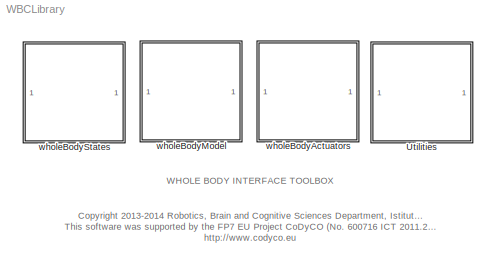
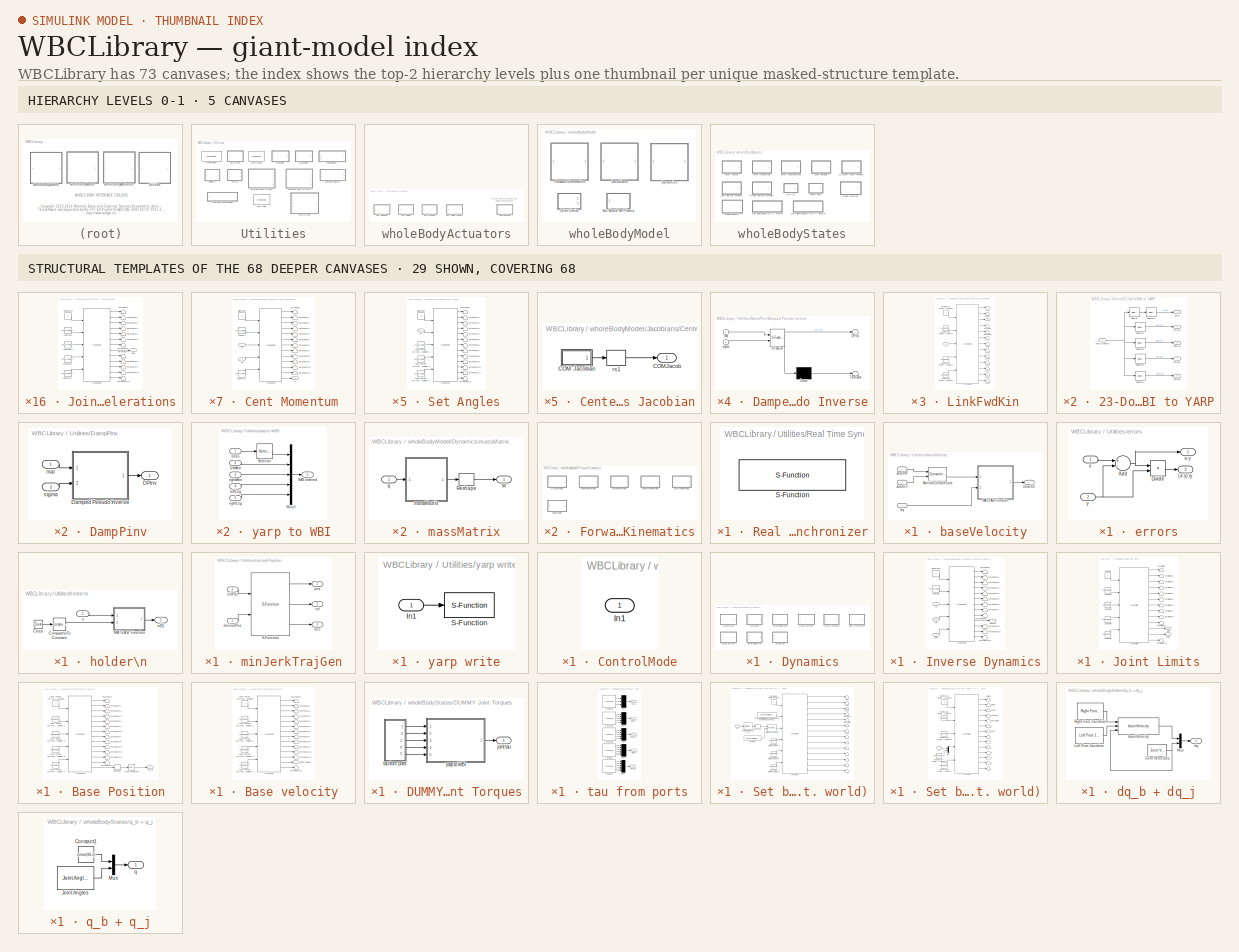
[diagram: thumbnail index - top-2 hierarchy levels (5 canvases) + 29 structural-template representatives of the remaining 68 canvases]
MODEL WBCLibrary
KIND library
BLOCK [SubSystem] Utilities
  Ports = []
  RequestExecContextInheritance = off
  SID = 192
  Variant = off
BLOCK [SubSystem] Utilities/23-DoFs WBI to YARP
  Ports = [1, 5]
  RequestExecContextInheritance = off
  SID = 1485
  Variant = off
BLOCK [Selector] Utilities/23-DoFs WBI to YARP/Selector
  IndexOptions = Index vector (dialog)
  Indices = [1:3]
  InputPortWidth = ROBOT_DOF
  OutputSizes = 1
  Ports = [1, 1]
  SID = 1487
BLOCK [Selector] Utilities/23-DoFs WBI to YARP/Selector1
  IndexOptions = Index vector (dialog)
  Indices = [4:7]
  InputPortWidth = ROBOT_DOF
  OutputSizes = 1
  Ports = [1, 1]
  SID = 1488
BLOCK [Selector] Utilities/23-DoFs WBI to YARP/Selector2
  IndexOptions = Index vector (dialog)
  Indices = [8:11]
  InputPortWidth = ROBOT_DOF
  OutputSizes = 1
  Ports = [1, 1]
  SID = 1489
BLOCK [Selector] Utilities/23-DoFs WBI to YARP/Selector3
  IndexOptions = Index vector (dialog)
  Indices = [12:17]
  InputPortWidth = ROBOT_DOF
  OutputSizes = 1
  Ports = [1, 1]
  SID = 1490
BLOCK [Selector] Utilities/23-DoFs WBI to YARP/Selector4
  IndexOptions = Index vector (dialog)
  Indices = [18:23]
  InputPortWidth = ROBOT_DOF
  OutputSizes = 1
  Ports = [1, 1]
  SID = 1491
BLOCK [Selector] Utilities/23-DoFs WBI to YARP/Selector6
  IndexOptions = Index vector (dialog)
  Indices = [3 2 1]
  InputPortWidth = 3
  OutputSizes = 1
  Ports = [1, 1]
  SID = 1492
BLOCK [Inport] Utilities/23-DoFs WBI to YARP/WBI Ordered
  IconDisplay = Port number
  SID = 1486
BLOCK [Outport] Utilities/23-DoFs WBI to YARP/leftArm
  IconDisplay = Port number
  Port = 2
  SID = 1494
BLOCK [Outport] Utilities/23-DoFs WBI to YARP/leftLeg
  IconDisplay = Port number
  Port = 4
  SID = 1496
BLOCK [Outport] Utilities/23-DoFs WBI to YARP/rightArm
  IconDisplay = Port number
  Port = 3
  SID = 1495
BLOCK [Outport] Utilities/23-DoFs WBI to YARP/rightLeg
  IconDisplay = Port number
  Port = 5
  SID = 1497
BLOCK [Outport] Utilities/23-DoFs WBI to YARP/torso
  IconDisplay = Port number
  SID = 1493
BLOCK [SubSystem] Utilities/25-DoFs WBI to yarp
  Ports = [1, 5]
  RequestExecContextInheritance = off
  SID = 730
  Variant = off
BLOCK [Selector] Utilities/25-DoFs WBI to yarp/Selector
  IndexOptions = Index vector (dialog)
  Indices = [1:3]
  InputPortWidth = ROBOT_DOF
  OutputSizes = 1
  Ports = [1, 1]
  SID = 732
BLOCK [Selector] Utilities/25-DoFs WBI to yarp/Selector1
  IndexOptions = Index vector (dialog)
  Indices = [4:8]
  InputPortWidth = ROBOT_DOF
  OutputSizes = 1
  Ports = [1, 1]
  SID = 733
BLOCK [Selector] Utilities/25-DoFs WBI to yarp/Selector2
  IndexOptions = Index vector (dialog)
  Indices = [9:13]
  InputPortWidth = ROBOT_DOF
  OutputSizes = 1
  Ports = [1, 1]
  SID = 734
BLOCK [Selector] Utilities/25-DoFs WBI to yarp/Selector3
  IndexOptions = Index vector (dialog)
  Indices = [14:19]
  InputPortWidth = ROBOT_DOF
  OutputSizes = 1
  Ports = [1, 1]
  SID = 735
BLOCK [Selector] Utilities/25-DoFs WBI to yarp/Selector4
  IndexOptions = Index vector (dialog)
  Indices = [20:25]
  InputPortWidth = ROBOT_DOF
  OutputSizes = 1
  Ports = [1, 1]
  SID = 736
BLOCK [Selector] Utilities/25-DoFs WBI to yarp/Selector6
  IndexOptions = Index vector (dialog)
  Indices = [3 2 1]
  InputPortWidth = 3
  OutputSizes = 1
  Ports = [1, 1]
  SID = 1266
BLOCK [Inport] Utilities/25-DoFs WBI to yarp/WBI ordered
  IconDisplay = Port number
  SID = 731
BLOCK [Outport] Utilities/25-DoFs WBI to yarp/leftArm
  IconDisplay = Port number
  Port = 2
  SID = 739
BLOCK [Outport] Utilities/25-DoFs WBI to yarp/leftLeg
  IconDisplay = Port number
  Port = 4
  SID = 741
BLOCK [Outport] Utilities/25-DoFs WBI to yarp/rightArm
  IconDisplay = Port number
  Port = 3
  SID = 740
BLOCK [Outport] Utilities/25-DoFs WBI to yarp/rightLeg
  IconDisplay = Port number
  Port = 5
  SID = 742
BLOCK [Outport] Utilities/25-DoFs WBI to yarp/torso
  IconDisplay = Port number
  SID = 738
BLOCK [SubSystem] Utilities/DampPinv
  Ports = [2, 1]
  RequestExecContextInheritance = off
  SID = 104
  Variant = off
BLOCK [Outport] Utilities/DampPinv/DPinv
  IconDisplay = Port number
  SID = 108
BLOCK [SubSystem] Utilities/DampPinv/Damped Pseudo Inverse
  ErrorFcn = Stateflow.Translate.translate
  PermitHierarchicalResolution = ExplicitOnly
  Ports = [2, 1]
  RequestExecContextInheritance = off
  SFBlockType = MATLAB Function
  SID = 107
  TreatAsAtomicUnit = on
  Variant = off
BLOCK [Demux] Utilities/DampPinv/Damped Pseudo Inverse/ Demux 
  Outputs = 1
  Ports = [1, 1]
  SID = 107::1582
BLOCK [S-Function] Utilities/DampPinv/Damped Pseudo Inverse/ SFunction 
  EnableBusSupport = off
  FunctionName = sf_sfun
  PortCounts = [2 2]
  Ports = [2, 2]
  SFunctionDeploymentMode = off
  SID = 107::1581
  Tag = Stateflow S-Function WBCLibrary 6
BLOCK [Terminator] Utilities/DampPinv/Damped Pseudo Inverse/ Terminator 
  SID = 107::1583
BLOCK [Outport] Utilities/DampPinv/Damped Pseudo Inverse/DPinv
  IconDisplay = Port number
  SID = 107::5
BLOCK [Inport] Utilities/DampPinv/Damped Pseudo Inverse/mat
  IconDisplay = Port number
  SID = 107::1
BLOCK [Inport] Utilities/DampPinv/Damped Pseudo Inverse/sigma
  IconDisplay = Port number
  Port = 2
  SID = 107::25
BLOCK [Inport] Utilities/DampPinv/mat
  IconDisplay = Port number
  SID = 105
BLOCK [Inport] Utilities/DampPinv/sigma
  IconDisplay = Port number
  Port = 2
  SID = 106
BLOCK [SubSystem] Utilities/Real Time Synchronizer
  Ports = []
  Priority = -10
  RequestExecContextInheritance = off
  SID = 1468
  Variant = off
BLOCK [S-Function] Utilities/Real Time Synchronizer/S-Function
  EnableBusSupport = off
  FunctionName = realTimeSynchronizer
  Parameters = threadPeriod
  Ports = []
  SFunctionDeploymentMode = off
  SID = 1469
BLOCK [SubSystem] Utilities/TruncPinv
  Ports = [2, 1]
  RequestExecContextInheritance = off
  SID = 109
  Variant = off
BLOCK [Inport] Utilities/TruncPinv/S
  IconDisplay = Port number
  SID = 110
BLOCK [Outport] Utilities/TruncPinv/Tpinv
  IconDisplay = Port number
  SID = 113
BLOCK [SubSystem] Utilities/TruncPinv/Truncated PseudoInverse
  ErrorFcn = Stateflow.Translate.translate
  PermitHierarchicalResolution = ExplicitOnly
  Ports = [2, 1]
  RequestExecContextInheritance = off
  SFBlockType = MATLAB Function
  SID = 112
  TreatAsAtomicUnit = on
  Variant = off
BLOCK [Demux] Utilities/TruncPinv/Truncated PseudoInverse/ Demux 
  Outputs = 1
  Ports = [1, 1]
  SID = 112::1582
BLOCK [S-Function] Utilities/TruncPinv/Truncated PseudoInverse/ SFunction 
  EnableBusSupport = off
  FunctionName = sf_sfun
  PortCounts = [2 2]
  Ports = [2, 2]
  SFunctionDeploymentMode = off
  SID = 112::1581
  Tag = Stateflow S-Function WBCLibrary 7
BLOCK [Terminator] Utilities/TruncPinv/Truncated PseudoInverse/ Terminator 
  SID = 112::1583
BLOCK [Outport] Utilities/TruncPinv/Truncated PseudoInverse/TPinv
  IconDisplay = Port number
  SID = 112::5
BLOCK [Inport] Utilities/TruncPinv/Truncated PseudoInverse/mat
  IconDisplay = Port number
  SID = 112::1
BLOCK [Inport] Utilities/TruncPinv/Truncated PseudoInverse/tol
  IconDisplay = Port number
  Port = 2
  SID = 112::25
BLOCK [Inport] Utilities/TruncPinv/tol
  IconDisplay = Port number
  Port = 2
  SID = 111
BLOCK [S-Function] Utilities/YARP Read
  EnableBusSupport = off
  FunctionName = yarpRead
  Parameters = portName,signalSize,blocking,timestamp,autoconnect,errorOnConnection
  Ports = [0, 2]
  SFunctionDeploymentMode = off
  SID = 1500
BLOCK [SubSystem] Utilities/baseVelocity
  Ports = [3, 1]
  RequestExecContextInheritance = off
  SID = 431
  Variant = off
BLOCK [Inport] Utilities/baseVelocity/JacobLF
  IconDisplay = Port number
  Port = 2
  SID = 433
BLOCK [Inport] Utilities/baseVelocity/JacobRF
  IconDisplay = Port number
  SID = 432
BLOCK [SubSystem] Utilities/baseVelocity/MATLAB Function
  ErrorFcn = Stateflow.Translate.translate
  PermitHierarchicalResolution = ExplicitOnly
  Ports = [2, 1]
  RequestExecContextInheritance = off
  SFBlockType = MATLAB Function
  SID = 1030
  TreatAsAtomicUnit = on
  Variant = off
BLOCK [Demux] Utilities/baseVelocity/MATLAB Function/ Demux 
  Outputs = 1
  Ports = [1, 1]
  SID = 1030::1582
BLOCK [S-Function] Utilities/baseVelocity/MATLAB Function/ SFunction 
  EnableBusSupport = off
  FunctionName = sf_sfun
  PortCounts = [2 2]
  Ports = [2, 2]
  SFunctionDeploymentMode = off
  SID = 1030::1581
  Tag = Stateflow S-Function WBCLibrary 2
BLOCK [Terminator] Utilities/baseVelocity/MATLAB Function/ Terminator 
  SID = 1030::1583
BLOCK [Inport] Utilities/baseVelocity/MATLAB Function/JcIn
  IconDisplay = Port number
  SID = 1030::1
BLOCK [Inport] Utilities/baseVelocity/MATLAB Function/qD
  IconDisplay = Port number
  Port = 2
  SID = 1030::23
BLOCK [Outport] Utilities/baseVelocity/MATLAB Function/y
  IconDisplay = Port number
  SID = 1030::5
BLOCK [Concatenate] Utilities/baseVelocity/Matrix\nConcatenate
  Mode = Multidimensional array
  Ports = [2, 1]
  SID = 1264
BLOCK [Outport] Utilities/baseVelocity/baseVel
  IconDisplay = Port number
  SID = 440
BLOCK [Inport] Utilities/baseVelocity/dq
  IconDisplay = Port number
  Port = 3
  SID = 434
BLOCK [SubSystem] Utilities/errors
  Ports = [2, 2]
  RequestExecContextInheritance = off
  SID = 714
  Variant = off
BLOCK [Outport] Utilities/errors/(x-y).//y
  IconDisplay = Port number
  Port = 2
  SID = 720
BLOCK [Sum] Utilities/errors/Add
  InputSameDT = off
  Inputs = +-
  OutDataTypeStr = Inherit: Inherit via internal rule
  Ports = [2, 1]
  SID = 717
  SaturateOnIntegerOverflow = off
BLOCK [Product] Utilities/errors/Divide
  InputSameDT = off
  Inputs = */
  OutDataTypeStr = Inherit: Inherit via internal rule
  Ports = [2, 1]
  RndMeth = Floor
  SID = 718
  SaturateOnIntegerOverflow = off
BLOCK [Inport] Utilities/errors/x
  IconDisplay = Port number
  SID = 715
BLOCK [Outport] Utilities/errors/x-y
  IconDisplay = Port number
  SID = 719
BLOCK [Inport] Utilities/errors/y
  IconDisplay = Port number
  Port = 2
  SID = 716
BLOCK [SubSystem] Utilities/holder\n
  Ports = [1, 1]
  RequestExecContextInheritance = off
  SID = 1296
  Variant = off
BLOCK [Clock] Utilities/holder\n/Clock
  SID = 1298
BLOCK [Reference] Utilities/holder\n/Compare\nTo Constant  REF=simulink/Logic and Bit\nOperations/Compare\nTo Constant
  OutDataTypeStr = boolean
  Ports = [1, 1]
  SID = 1299
  SourceBlock = simulink/Logic and Bit\nOperations/Compare\nTo Constant
  SourceType = Compare To Constant
  ZeroCross = on
  const = 0
  relop = ==
BLOCK [SubSystem] Utilities/holder\n/MATLAB Function
  ErrorFcn = Stateflow.Translate.translate
  PermitHierarchicalResolution = ExplicitOnly
  Ports = [2, 1]
  RequestExecContextInheritance = off
  SFBlockType = MATLAB Function
  SID = 1300
  TreatAsAtomicUnit = on
  Variant = off
BLOCK [Demux] Utilities/holder\n/MATLAB Function/ Demux 
  Outputs = 1
  Ports = [1, 1]
  SID = 1300::1582
BLOCK [S-Function] Utilities/holder\n/MATLAB Function/ SFunction 
  EnableBusSupport = off
  FunctionName = sf_sfun
  PortCounts = [2 2]
  Ports = [2, 2]
  SFunctionDeploymentMode = off
  SID = 1300::1581
  Tag = Stateflow S-Function WBCLibrary 1
BLOCK [Terminator] Utilities/holder\n/MATLAB Function/ Terminator 
  SID = 1300::1583
BLOCK [Inport] Utilities/holder\n/MATLAB Function/s
  IconDisplay = Port number
  SID = 1300::24
BLOCK [Outport] Utilities/holder\n/MATLAB Function/s0
  IconDisplay = Port number
  SID = 1300::25
BLOCK [Inport] Utilities/holder\n/MATLAB Function/unused
  IconDisplay = Port number
  Port = 2
  SID = 1300::26
BLOCK [Inport] Utilities/holder\n/s
  IconDisplay = Port number
  SID = 1297
BLOCK [Outport] Utilities/holder\n/s(0)
  IconDisplay = Port number
  SID = 1301
BLOCK [SubSystem] Utilities/minJerkTrajGen
  Ports = [2, 3]
  RequestExecContextInheritance = off
  SID = 25
  Variant = off
BLOCK [S-Function] Utilities/minJerkTrajGen/S-Function
  EnableBusSupport = off
  FunctionName = minJerkGenerator
  Parameters = dim, rate, tt
  Ports = [2, 3]
  SFunctionDeploymentMode = off
  SID = 28
BLOCK [Outport] Utilities/minJerkTrajGen/acc
  IconDisplay = Port number
  Port = 3
  SID = 31
BLOCK [Inport] Utilities/minJerkTrajGen/desiredPos
  IconDisplay = Port number
  SID = 26
BLOCK [Inport] Utilities/minJerkTrajGen/initPos
  IconDisplay = Port number
  Port = 2
  SID = 27
BLOCK [Outport] Utilities/minJerkTrajGen/pos
  IconDisplay = Port number
  SID = 29
BLOCK [Outport] Utilities/minJerkTrajGen/vel
  IconDisplay = Port number
  Port = 2
  SID = 30
BLOCK [S-Function] Utilities/synchronize
  EnableBusSupport = off
  FunctionName = ySynchronizer
  Parameters = rate
  Ports = [0, 1]
  SFunctionDeploymentMode = off
  SID = 1056
BLOCK [S-Function] Utilities/yarp read
  EnableBusSupport = off
  FunctionName = yRead
  Parameters = from,to,num,blocking,timestamp,autoconnect
  Ports = [0, 3]
  SFunctionDeploymentMode = off
  SID = 249
BLOCK [SubSystem] Utilities/yarp to WBI
  Ports = [5, 1]
  RequestExecContextInheritance = off
  SID = 721
  Variant = off
BLOCK [Mux] Utilities/yarp to WBI/Mux3
  DisplayOption = bar
  Inputs = 5
  Ports = [5, 1]
  SID = 727
BLOCK [Selector] Utilities/yarp to WBI/Selector
  IndexOptions = Index vector (dialog)
  Indices = [3 2 1]
  InputPortWidth = 3
  OutputSizes = 1
  Ports = [1, 1]
  SID = 1265
BLOCK [Outport] Utilities/yarp to WBI/WBI ordered
  IconDisplay = Port number
  SID = 729
BLOCK [Inport] Utilities/yarp to WBI/leftArm
  IconDisplay = Port number
  Port = 2
  SID = 723
BLOCK [Inport] Utilities/yarp to WBI/leftLeg
  IconDisplay = Port number
  Port = 4
  SID = 725
BLOCK [Inport] Utilities/yarp to WBI/rightArm
  IconDisplay = Port number
  Port = 3
  SID = 724
BLOCK [Inport] Utilities/yarp to WBI/rightLeg
  IconDisplay = Port number
  Port = 5
  SID = 726
BLOCK [Inport] Utilities/yarp to WBI/torso
  IconDisplay = Port number
  SID = 722
BLOCK [SubSystem] Utilities/yarp write
  Ports = [1]
  RequestExecContextInheritance = off
  SID = 173
  Variant = off
BLOCK [Inport] Utilities/yarp write/In1
  IconDisplay = Port number
  SID = 174
BLOCK [S-Function] Utilities/yarp write/S-Function
  EnableBusSupport = off
  FunctionName = yWrite
  Parameters = port_name
  Ports = [1]
  SFunctionDeploymentMode = off
  SID = 175
BLOCK [SubSystem] wholeBodyActuators
  Ports = []
  RequestExecContextInheritance = off
  SID = 224
  Variant = off
BLOCK [SubSystem] wholeBodyActuators/ControlMode
  Ports = [1]
  RequestExecContextInheritance = off
  SID = 239
  Variant = off
BLOCK [Inport] wholeBodyActuators/ControlMode/In1
  IconDisplay = Port number
  SID = 239:240
BLOCK [SubSystem] wholeBodyActuators/Set Angles
  Ports = [1]
  RequestExecContextInheritance = off
  SID = 394
  Variant = off
BLOCK [SubSystem] wholeBodyActuators/Set Angles (Direct)
  Ports = [1]
  RequestExecContextInheritance = off
  SID = 1446
  Variant = off
BLOCK [Constant] wholeBodyActuators/Set Angles (Direct)/Input Param. for\nforwardKinematics\nand \ncomputeJacobians 
  OutDataTypeStr = int8
  SID = 1448
  SampleTime = Ts
  Value = 0
BLOCK [Constant] wholeBodyActuators/Set Angles (Direct)/Input Param. for\nforwardKinematics\nand \ncomputeJacobians 1
  OutDataTypeStr = double
  SID = 1449
  SampleTime = Ts
  Value = zeros(ROBOT_DOF+16,1)
BLOCK [Constant] wholeBodyActuators/Set Angles (Direct)/Input Param. for\nforwardKinematics\nand \ncomputeJacobians 2
  OutDataTypeStr = double
  SID = 1450
  SampleTime = Ts
  Value = zeros(ROBOT_DOF+6,1)
BLOCK [Constant] wholeBodyActuators/Set Angles (Direct)/Input Param. for\nforwardKinematics\nand \ncomputeJacobians 3
  OutDataTypeStr = double
  SID = 1451
  SampleTime = Ts
  Value = zeros(ROBOT_DOF+6,1)
BLOCK [S-Function] wholeBodyActuators/Set Angles (Direct)/S-Function
  EnableBusSupport = off
  FunctionName = robotState
  Parameters = val,robotname,localname,linkname
  Ports = [5, 13]
  SFunctionDeploymentMode = off
  SID = 1452
BLOCK [Terminator] wholeBodyActuators/Set Angles (Direct)/Terminator1
  SID = 1453
BLOCK [Terminator] wholeBodyActuators/Set Angles (Direct)/Terminator10
  SID = 1454
BLOCK [Terminator] wholeBodyActuators/Set Angles (Direct)/Terminator11
  SID = 1455
BLOCK [Terminator] wholeBodyActuators/Set Angles (Direct)/Terminator12
  SID = 1456
BLOCK [Terminator] wholeBodyActuators/Set Angles (Direct)/Terminator13
  SID = 1457
BLOCK [Terminator] wholeBodyActuators/Set Angles (Direct)/Terminator2
  SID = 1458
BLOCK [Terminator] wholeBodyActuators/Set Angles (Direct)/Terminator3
  SID = 1459
BLOCK [Terminator] wholeBodyActuators/Set Angles (Direct)/Terminator4
  SID = 1460
BLOCK [Terminator] wholeBodyActuators/Set Angles (Direct)/Terminator5
  SID = 1461
BLOCK [Terminator] wholeBodyActuators/Set Angles (Direct)/Terminator6
  SID = 1462
BLOCK [Terminator] wholeBodyActuators/Set Angles (Direct)/Terminator7
  SID = 1463
BLOCK [Terminator] wholeBodyActuators/Set Angles (Direct)/Terminator8
  SID = 1464
BLOCK [Terminator] wholeBodyActuators/Set Angles (Direct)/Terminator9
  SID = 1465
BLOCK [Inport] wholeBodyActuators/Set Angles (Direct)/q_j
  IconDisplay = Port number
  SID = 1447
BLOCK [Constant] wholeBodyActuators/Set Angles/Input Param. for\nforwardKinematics\nand \ncomputeJacobians 1
  OutDataTypeStr = double
  SID = 657
  SampleTime = Ts
  Value = zeros(ROBOT_DOF+16,1)
BLOCK [Constant] wholeBodyActuators/Set Angles/Input Param. for\nforwardKinematics\nand \ncomputeJacobians 2
  OutDataTypeStr = double
  SID = 658
  SampleTime = Ts
  Value = zeros(ROBOT_DOF+6,1)
BLOCK [Constant] wholeBodyActuators/Set Angles/Input Param. for\nforwardKinematics\nand \ncomputeJacobians 3
  OutDataTypeStr = double
  SID = 659
  SampleTime = Ts
  Value = zeros(ROBOT_DOF+6,1)
BLOCK [Constant] wholeBodyActuators/Set Angles/RightFoot
  OutDataTypeStr = int8
  SID = 396
  SampleTime = Ts
  Value = 0
BLOCK [S-Function] wholeBodyActuators/Set Angles/S-Function
  EnableBusSupport = off
  FunctionName = robotState
  Parameters = val,robotName,localName,'na'
  Ports = [5, 13]
  SFunctionDeploymentMode = off
  SID = 397
BLOCK [Terminator] wholeBodyActuators/Set Angles/Terminator
  SID = 398
BLOCK [Terminator] wholeBodyActuators/Set Angles/Terminator1
  SID = 399
BLOCK [Terminator] wholeBodyActuators/Set Angles/Terminator10
  SID = 1367
BLOCK [Terminator] wholeBodyActuators/Set Angles/Terminator11
  SID = 1368
BLOCK [Terminator] wholeBodyActuators/Set Angles/Terminator12
  SID = 1369
BLOCK [Terminator] wholeBodyActuators/Set Angles/Terminator2
  SID = 400
BLOCK [Terminator] wholeBodyActuators/Set Angles/Terminator3
  SID = 401
BLOCK [Terminator] wholeBodyActuators/Set Angles/Terminator4
  SID = 402
BLOCK [Terminator] wholeBodyActuators/Set Angles/Terminator5
  SID = 403
BLOCK [Terminator] wholeBodyActuators/Set Angles/Terminator6
  SID = 404
BLOCK [Terminator] wholeBodyActuators/Set Angles/Terminator7
  SID = 654
BLOCK [Terminator] wholeBodyActuators/Set Angles/Terminator8
  SID = 655
BLOCK [Terminator] wholeBodyActuators/Set Angles/Terminator9
  SID = 656
BLOCK [Inport] wholeBodyActuators/Set Angles/q_j
  IconDisplay = Port number
  SID = 395
BLOCK [SubSystem] wholeBodyActuators/Set Torques
  Ports = [1]
  RequestExecContextInheritance = off
  SID = 405
  Variant = off
BLOCK [Constant] wholeBodyActuators/Set Torques/Input Param. for\nforwardKinematics\nand \ncomputeJacobians 1
  OutDataTypeStr = double
  SID = 666
  SampleTime = Ts
  Value = zeros(ROBOT_DOF+16,1)
BLOCK [Constant] wholeBodyActuators/Set Torques/Input Param. for\nforwardKinematics\nand \ncomputeJacobians 2
  OutDataTypeStr = double
  SID = 667
  SampleTime = Ts
  Value = zeros(ROBOT_DOF+6,1)
BLOCK [Constant] wholeBodyActuators/Set Torques/Input Param. for\nforwardKinematics\nand \ncomputeJacobians 3
  OutDataTypeStr = double
  SID = 668
  SampleTime = Ts
  Value = zeros(ROBOT_DOF+6,1)
BLOCK [Constant] wholeBodyActuators/Set Torques/RightFoot
  OutDataTypeStr = int8
  SID = 407
  SampleTime = Ts
  Value = 0
BLOCK [S-Function] wholeBodyActuators/Set Torques/S-Function
  EnableBusSupport = off
  FunctionName = robotState
  Parameters = val,robotName,localName,'na'
  Ports = [5, 13]
  SFunctionDeploymentMode = off
  SID = 408
BLOCK [Terminator] wholeBodyActuators/Set Torques/Terminator
  SID = 409
BLOCK [Terminator] wholeBodyActuators/Set Torques/Terminator1
  SID = 410
BLOCK [Terminator] wholeBodyActuators/Set Torques/Terminator10
  SID = 1308
BLOCK [Terminator] wholeBodyActuators/Set Torques/Terminator11
  SID = 1309
BLOCK [Terminator] wholeBodyActuators/Set Torques/Terminator12
  SID = 1310
BLOCK [Terminator] wholeBodyActuators/Set Torques/Terminator2
  SID = 411
BLOCK [Terminator] wholeBodyActuators/Set Torques/Terminator3
  SID = 412
BLOCK [Terminator] wholeBodyActuators/Set Torques/Terminator4
  SID = 413
BLOCK [Terminator] wholeBodyActuators/Set Torques/Terminator5
  SID = 414
BLOCK [Terminator] wholeBodyActuators/Set Torques/Terminator6
  SID = 415
BLOCK [Terminator] wholeBodyActuators/Set Torques/Terminator7
  SID = 663
BLOCK [Terminator] wholeBodyActuators/Set Torques/Terminator8
  SID = 664
BLOCK [Terminator] wholeBodyActuators/Set Torques/Terminator9
  SID = 665
BLOCK [Inport] wholeBodyActuators/Set Torques/tau_j
  IconDisplay = Port number
  SID = 406
BLOCK [SubSystem] wholeBodyActuators/Set Velocities
  Ports = [1]
  RequestExecContextInheritance = off
  SID = 227
  Variant = off
BLOCK [Constant] wholeBodyActuators/Set Velocities/Input Param. for\nforwardKinematics\nand \ncomputeJacobians 
  OutDataTypeStr = int8
  SID = 229
  SampleTime = Ts
  Value = 0
BLOCK [Constant] wholeBodyActuators/Set Velocities/Input Param. for\nforwardKinematics\nand \ncomputeJacobians 1
  OutDataTypeStr = double
  SID = 649
  SampleTime = Ts
  Value = zeros(ROBOT_DOF+16,1)
BLOCK [Constant] wholeBodyActuators/Set Velocities/Input Param. for\nforwardKinematics\nand \ncomputeJacobians 2
  OutDataTypeStr = double
  SID = 652
  SampleTime = Ts
  Value = zeros(ROBOT_DOF+6,1)
BLOCK [Constant] wholeBodyActuators/Set Velocities/Input Param. for\nforwardKinematics\nand \ncomputeJacobians 3
  OutDataTypeStr = double
  SID = 653
  SampleTime = Ts
  Value = zeros(ROBOT_DOF+6,1)
BLOCK [S-Function] wholeBodyActuators/Set Velocities/S-Function
  EnableBusSupport = off
  FunctionName = robotState
  Parameters = val,robotname,localname,linkname
  Ports = [5, 13]
  SFunctionDeploymentMode = off
  SID = 230
BLOCK [Terminator] wholeBodyActuators/Set Velocities/Terminator1
  SID = 231
BLOCK [Terminator] wholeBodyActuators/Set Velocities/Terminator10
  SID = 648
BLOCK [Terminator] wholeBodyActuators/Set Velocities/Terminator11
  SID = 1364
BLOCK [Terminator] wholeBodyActuators/Set Velocities/Terminator12
  SID = 1365
BLOCK [Terminator] wholeBodyActuators/Set Velocities/Terminator13
  SID = 1366
BLOCK [Terminator] wholeBodyActuators/Set Velocities/Terminator2
  SID = 232
BLOCK [Terminator] wholeBodyActuators/Set Velocities/Terminator3
  SID = 233
BLOCK [Terminator] wholeBodyActuators/Set Velocities/Terminator4
  SID = 234
BLOCK [Terminator] wholeBodyActuators/Set Velocities/Terminator5
  SID = 339
BLOCK [Terminator] wholeBodyActuators/Set Velocities/Terminator6
  SID = 340
BLOCK [Terminator] wholeBodyActuators/Set Velocities/Terminator7
  SID = 341
BLOCK [Terminator] wholeBodyActuators/Set Velocities/Terminator8
  SID = 646
BLOCK [Terminator] wholeBodyActuators/Set Velocities/Terminator9
  SID = 647
BLOCK [Inport] wholeBodyActuators/Set Velocities/dq_j
  IconDisplay = Port number
  SID = 228
BLOCK [SubSystem] wholeBodyModel
  Ports = []
  RequestExecContextInheritance = off
  SID = 209
  Variant = off
BLOCK [SubSystem] wholeBodyModel/Dynamics
  Ports = []
  RequestExecContextInheritance = off
  SID = 369
  Variant = off
BLOCK [SubSystem] wholeBodyModel/Dynamics/Cent Momentum
  Ports = [2, 1]
  RequestExecContextInheritance = off
  SID = 1008
  Variant = off
BLOCK [Outport] wholeBodyModel/Dynamics/Cent Momentum/H
  IconDisplay = Port number
  SID = 1027
BLOCK [Constant] wholeBodyModel/Dynamics/Cent Momentum/RightFoot
  OutDataTypeStr = int8
  SID = 1011
  SampleTime = Ts
  Value = 0
BLOCK [S-Function] wholeBodyModel/Dynamics/Cent Momentum/S-Function
  EnableBusSupport = off
  FunctionName = robotState
  Parameters = 14,robotName,localName,'na'
  Ports = [5, 13]
  SFunctionDeploymentMode = off
  SID = 1012
BLOCK [Terminator] wholeBodyModel/Dynamics/Cent Momentum/Terminator
  SID = 1013
BLOCK [Terminator] wholeBodyModel/Dynamics/Cent Momentum/Terminator1
  SID = 1014
BLOCK [Terminator] wholeBodyModel/Dynamics/Cent Momentum/Terminator10
  SID = 1015
BLOCK [Terminator] wholeBodyModel/Dynamics/Cent Momentum/Terminator11
  SID = 1016
BLOCK [Terminator] wholeBodyModel/Dynamics/Cent Momentum/Terminator2
  SID = 1017
BLOCK [Terminator] wholeBodyModel/Dynamics/Cent Momentum/Terminator3
  SID = 1018
BLOCK [Terminator] wholeBodyModel/Dynamics/Cent Momentum/Terminator4
  SID = 1019
BLOCK [Terminator] wholeBodyModel/Dynamics/Cent Momentum/Terminator5
  SID = 1020
BLOCK [Terminator] wholeBodyModel/Dynamics/Cent Momentum/Terminator6
  SID = 1021
BLOCK [Terminator] wholeBodyModel/Dynamics/Cent Momentum/Terminator7
  SID = 1022
BLOCK [Terminator] wholeBodyModel/Dynamics/Cent Momentum/Terminator8
  SID = 1023
BLOCK [Terminator] wholeBodyModel/Dynamics/Cent Momentum/Terminator9
  SID = 1024
BLOCK [Inport] wholeBodyModel/Dynamics/Cent Momentum/dq
  IconDisplay = Port number
  Port = 2
  SID = 1010
BLOCK [Constant] wholeBodyModel/Dynamics/Cent Momentum/dummy
  OutDataTypeStr = double
  SID = 1025
  SampleTime = Ts
  Value = zeros(ROBOT_DOF,1)
BLOCK [Constant] wholeBodyModel/Dynamics/Cent Momentum/dummy3
  OutDataTypeStr = double
  SID = 1026
  SampleTime = Ts
  Value = zeros(ROBOT_DOF+6,1)
BLOCK [Inport] wholeBodyModel/Dynamics/Cent Momentum/q
  IconDisplay = Port number
  SID = 1009
BLOCK [SubSystem] wholeBodyModel/Dynamics/Inverse Dynamics
  Ports = [3, 1]
  RequestExecContextInheritance = off
  SID = 521
  Variant = off
BLOCK [Constant] wholeBodyModel/Dynamics/Inverse Dynamics/Constant
  OutDataTypeStr = double
  SID = 525
  SampleTime = Ts
  Value = zeros(ROBOT_DOF,1)
BLOCK [Constant] wholeBodyModel/Dynamics/Inverse Dynamics/Constant2
  OutDataTypeStr = int8
  SID = 526
  SampleTime = Ts
  Value = 0
BLOCK [S-Function] wholeBodyModel/Dynamics/Inverse Dynamics/S-Function
  EnableBusSupport = off
  FunctionName = robotState
  Parameters = 12,robotName,localName,'na'
  Ports = [5, 13]
  SFunctionDeploymentMode = off
  SID = 527
BLOCK [Terminator] wholeBodyModel/Dynamics/Inverse Dynamics/Terminator
  SID = 528
BLOCK [Terminator] wholeBodyModel/Dynamics/Inverse Dynamics/Terminator1
  SID = 529
BLOCK [Terminator] wholeBodyModel/Dynamics/Inverse Dynamics/Terminator10
  SID = 1324
BLOCK [Terminator] wholeBodyModel/Dynamics/Inverse Dynamics/Terminator11
  SID = 1325
BLOCK [Terminator] wholeBodyModel/Dynamics/Inverse Dynamics/Terminator2
  SID = 530
BLOCK [Terminator] wholeBodyModel/Dynamics/Inverse Dynamics/Terminator3
  SID = 531
BLOCK [Terminator] wholeBodyModel/Dynamics/Inverse Dynamics/Terminator4
  SID = 532
BLOCK [Terminator] wholeBodyModel/Dynamics/Inverse Dynamics/Terminator5
  SID = 533
BLOCK [Terminator] wholeBodyModel/Dynamics/Inverse Dynamics/Terminator6
  SID = 534
BLOCK [Terminator] wholeBodyModel/Dynamics/Inverse Dynamics/Terminator7
  SID = 535
BLOCK [Terminator] wholeBodyModel/Dynamics/Inverse Dynamics/Terminator8
  SID = 536
BLOCK [Terminator] wholeBodyModel/Dynamics/Inverse Dynamics/Terminator9
  SID = 1323
BLOCK [Inport] wholeBodyModel/Dynamics/Inverse Dynamics/ddq
  IconDisplay = Port number
  Port = 3
  SID = 524
BLOCK [Inport] wholeBodyModel/Dynamics/Inverse Dynamics/dq
  IconDisplay = Port number
  Port = 2
  SID = 523
BLOCK [Outport] wholeBodyModel/Dynamics/Inverse Dynamics/genTau
  IconDisplay = Port number
  SID = 537
BLOCK [Inport] wholeBodyModel/Dynamics/Inverse Dynamics/q
  IconDisplay = Port number
  SID = 522
BLOCK [SubSystem] wholeBodyModel/Dynamics/computeh
  Ports = [2, 1]
  RequestExecContextInheritance = off
  SID = 358
  Variant = off
BLOCK [Terminator] wholeBodyModel/Dynamics/computeh/ 
  SID = 359
BLOCK [Terminator] wholeBodyModel/Dynamics/computeh/  
  SID = 360
BLOCK [Terminator] wholeBodyModel/Dynamics/computeh/  1
  SID = 627
BLOCK [Terminator] wholeBodyModel/Dynamics/computeh/  2
  SID = 1314
BLOCK [Constant] wholeBodyModel/Dynamics/computeh/Constant
  OutDataTypeStr = int8
  SID = 361
  SampleTime = Ts
  Value = 0
BLOCK [Constant] wholeBodyModel/Dynamics/computeh/Constant1
  OutDataTypeStr = double
  SID = 362
  SampleTime = Ts
  Value = zeros(ROBOT_DOF,1)
BLOCK [Constant] wholeBodyModel/Dynamics/computeh/Constant4
  OutDataTypeStr = double
  SID = 632
  SampleTime = Ts
  Value = zeros(ROBOT_DOF+6,1)
BLOCK [S-Function] wholeBodyModel/Dynamics/computeh/S-Function
  EnableBusSupport = off
  FunctionName = robotState
  Parameters = val,robotname,localname,'na'
  Ports = [5, 13]
  SFunctionDeploymentMode = off
  SID = 363
BLOCK [Inport] wholeBodyModel/Dynamics/computeh/dq
  IconDisplay = Port number
  Port = 2
  SID = 776
BLOCK [Outport] wholeBodyModel/Dynamics/computeh/h
  IconDisplay = Port number
  SID = 368
BLOCK [Terminator] wholeBodyModel/Dynamics/computeh/h1
  SID = 364
BLOCK [Terminator] wholeBodyModel/Dynamics/computeh/h2
  SID = 365
BLOCK [Terminator] wholeBodyModel/Dynamics/computeh/h3
  SID = 366
BLOCK [Terminator] wholeBodyModel/Dynamics/computeh/h4
  SID = 367
BLOCK [Terminator] wholeBodyModel/Dynamics/computeh/h5
  SID = 628
BLOCK [Terminator] wholeBodyModel/Dynamics/computeh/h6
  SID = 629
BLOCK [Terminator] wholeBodyModel/Dynamics/computeh/h7
  SID = 1315
BLOCK [Terminator] wholeBodyModel/Dynamics/computeh/h8
  SID = 1316
BLOCK [Inport] wholeBodyModel/Dynamics/computeh/q
  IconDisplay = Port number
  SID = 775
BLOCK [SubSystem] wholeBodyModel/Dynamics/dJ*dq LeftArm
  Ports = [2, 1]
  RequestExecContextInheritance = off
  SID = 1139
  Variant = off
BLOCK [Constant] wholeBodyModel/Dynamics/dJ*dq LeftArm/LeftFoot
  OutDataTypeStr = int8
  SID = 1142
  SampleTime = Ts
  Value = 4
BLOCK [S-Function] wholeBodyModel/Dynamics/dJ*dq LeftArm/S-Function
  EnableBusSupport = off
  FunctionName = robotState
  Parameters = val,robotName,localName,'na'
  Ports = [5, 13]
  SFunctionDeploymentMode = off
  SID = 1143
BLOCK [Terminator] wholeBodyModel/Dynamics/dJ*dq LeftArm/Terminator
  SID = 1144
BLOCK [Terminator] wholeBodyModel/Dynamics/dJ*dq LeftArm/Terminator1
  SID = 1145
BLOCK [Terminator] wholeBodyModel/Dynamics/dJ*dq LeftArm/Terminator10
  SID = 1327
BLOCK [Terminator] wholeBodyModel/Dynamics/dJ*dq LeftArm/Terminator11
  SID = 1328
BLOCK [Terminator] wholeBodyModel/Dynamics/dJ*dq LeftArm/Terminator2
  SID = 1146
BLOCK [Terminator] wholeBodyModel/Dynamics/dJ*dq LeftArm/Terminator3
  SID = 1147
BLOCK [Terminator] wholeBodyModel/Dynamics/dJ*dq LeftArm/Terminator4
  SID = 1148
BLOCK [Terminator] wholeBodyModel/Dynamics/dJ*dq LeftArm/Terminator5
  SID = 1149
BLOCK [Terminator] wholeBodyModel/Dynamics/dJ*dq LeftArm/Terminator6
  SID = 1150
BLOCK [Terminator] wholeBodyModel/Dynamics/dJ*dq LeftArm/Terminator7
  SID = 1151
BLOCK [Terminator] wholeBodyModel/Dynamics/dJ*dq LeftArm/Terminator8
  SID = 1152
BLOCK [Terminator] wholeBodyModel/Dynamics/dJ*dq LeftArm/Terminator9
  SID = 1326
BLOCK [Outport] wholeBodyModel/Dynamics/dJ*dq LeftArm/dJdqLA
  IconDisplay = Port number
  SID = 1155
BLOCK [Inport] wholeBodyModel/Dynamics/dJ*dq LeftArm/dq
  IconDisplay = Port number
  Port = 2
  SID = 1141
BLOCK [Constant] wholeBodyModel/Dynamics/dJ*dq LeftArm/dummy
  OutDataTypeStr = double
  SID = 1153
  SampleTime = Ts
  Value = zeros(ROBOT_DOF,1)
BLOCK [Constant] wholeBodyModel/Dynamics/dJ*dq LeftArm/dummy3
  OutDataTypeStr = double
  SID = 1154
  SampleTime = Ts
  Value = zeros(ROBOT_DOF+6,1)
BLOCK [Inport] wholeBodyModel/Dynamics/dJ*dq LeftArm/q
  IconDisplay = Port number
  SID = 1140
BLOCK [SubSystem] wholeBodyModel/Dynamics/dJ*dq LeftFoot
  Ports = [2, 1]
  RequestExecContextInheritance = off
  SID = 445
  Variant = off
BLOCK [Constant] wholeBodyModel/Dynamics/dJ*dq LeftFoot/LeftFoot
  OutDataTypeStr = int8
  SID = 446
  SampleTime = Ts
BLOCK [S-Function] wholeBodyModel/Dynamics/dJ*dq LeftFoot/S-Function
  EnableBusSupport = off
  FunctionName = robotState
  Parameters = val,robotName,localName,'na'
  Ports = [5, 13]
  SFunctionDeploymentMode = off
  SID = 447
BLOCK [Terminator] wholeBodyModel/Dynamics/dJ*dq LeftFoot/Terminator
  SID = 448
BLOCK [Terminator] wholeBodyModel/Dynamics/dJ*dq LeftFoot/Terminator1
  SID = 449
BLOCK [Terminator] wholeBodyModel/Dynamics/dJ*dq LeftFoot/Terminator10
  SID = 1321
BLOCK [Terminator] wholeBodyModel/Dynamics/dJ*dq LeftFoot/Terminator11
  SID = 1322
BLOCK [Terminator] wholeBodyModel/Dynamics/dJ*dq LeftFoot/Terminator2
  SID = 450
BLOCK [Terminator] wholeBodyModel/Dynamics/dJ*dq LeftFoot/Terminator3
  SID = 451
BLOCK [Terminator] wholeBodyModel/Dynamics/dJ*dq LeftFoot/Terminator4
  SID = 452
BLOCK [Terminator] wholeBodyModel/Dynamics/dJ*dq LeftFoot/Terminator5
  SID = 453
BLOCK [Terminator] wholeBodyModel/Dynamics/dJ*dq LeftFoot/Terminator6
  SID = 640
BLOCK [Terminator] wholeBodyModel/Dynamics/dJ*dq LeftFoot/Terminator7
  SID = 641
BLOCK [Terminator] wholeBodyModel/Dynamics/dJ*dq LeftFoot/Terminator8
  SID = 642
BLOCK [Terminator] wholeBodyModel/Dynamics/dJ*dq LeftFoot/Terminator9
  SID = 1320
BLOCK [Outport] wholeBodyModel/Dynamics/dJ*dq LeftFoot/dJdqLF
  IconDisplay = Port number
  SID = 455
BLOCK [Inport] wholeBodyModel/Dynamics/dJ*dq LeftFoot/dq
  IconDisplay = Port number
  Port = 2
  SID = 780
BLOCK [Constant] wholeBodyModel/Dynamics/dJ*dq LeftFoot/dummy
  OutDataTypeStr = double
  SID = 454
  SampleTime = Ts
  Value = zeros(ROBOT_DOF,1)
BLOCK [Constant] wholeBodyModel/Dynamics/dJ*dq LeftFoot/dummy3
  OutDataTypeStr = double
  SID = 645
  SampleTime = Ts
  Value = zeros(ROBOT_DOF+6,1)
BLOCK [Inport] wholeBodyModel/Dynamics/dJ*dq LeftFoot/q
  IconDisplay = Port number
  SID = 779
BLOCK [SubSystem] wholeBodyModel/Dynamics/dJ*dq Link
  Ports = [2, 1]
  RequestExecContextInheritance = off
  SID = 1382
  Variant = off
BLOCK [Constant] wholeBodyModel/Dynamics/dJ*dq Link/RightFoot
  OutDataTypeStr = int8
  SID = 1382:1385
  SampleTime = Ts
  Value = 0
BLOCK [S-Function] wholeBodyModel/Dynamics/dJ*dq Link/S-Function
  EnableBusSupport = off
  FunctionName = robotState
  Parameters = val,robotName,localName,LinkName
  Ports = [5, 13]
  SFunctionDeploymentMode = off
  SID = 1382:1386
BLOCK [Terminator] wholeBodyModel/Dynamics/dJ*dq Link/Terminator
  SID = 1382:1387
BLOCK [Terminator] wholeBodyModel/Dynamics/dJ*dq Link/Terminator1
  SID = 1382:1388
BLOCK [Terminator] wholeBodyModel/Dynamics/dJ*dq Link/Terminator10
  SID = 1382:1389
BLOCK [Terminator] wholeBodyModel/Dynamics/dJ*dq Link/Terminator11
  SID = 1382:1390
BLOCK [Terminator] wholeBodyModel/Dynamics/dJ*dq Link/Terminator2
  SID = 1382:1391
BLOCK [Terminator] wholeBodyModel/Dynamics/dJ*dq Link/Terminator3
  SID = 1382:1392
BLOCK [Terminator] wholeBodyModel/Dynamics/dJ*dq Link/Terminator4
  SID = 1382:1393
BLOCK [Terminator] wholeBodyModel/Dynamics/dJ*dq Link/Terminator5
  SID = 1382:1394
BLOCK [Terminator] wholeBodyModel/Dynamics/dJ*dq Link/Terminator6
  SID = 1382:1395
BLOCK [Terminator] wholeBodyModel/Dynamics/dJ*dq Link/Terminator7
  SID = 1382:1396
BLOCK [Terminator] wholeBodyModel/Dynamics/dJ*dq Link/Terminator8
  SID = 1382:1397
BLOCK [Terminator] wholeBodyModel/Dynamics/dJ*dq Link/Terminator9
  SID = 1382:1398
BLOCK [Outport] wholeBodyModel/Dynamics/dJ*dq Link/dJdq
  IconDisplay = Port number
  SID = 1382:1401
BLOCK [Inport] wholeBodyModel/Dynamics/dJ*dq Link/dq
  IconDisplay = Port number
  Port = 2
  SID = 1382:1384
BLOCK [Constant] wholeBodyModel/Dynamics/dJ*dq Link/dummy
  OutDataTypeStr = double
  SID = 1382:1399
  SampleTime = Ts
  Value = zeros(ROBOT_DOF,1)
BLOCK [Constant] wholeBodyModel/Dynamics/dJ*dq Link/dummy3
  OutDataTypeStr = double
  SID = 1382:1400
  SampleTime = Ts
  Value = zeros(ROBOT_DOF+6,1)
BLOCK [Inport] wholeBodyModel/Dynamics/dJ*dq Link/q
  IconDisplay = Port number
  SID = 1382:1383
BLOCK [SubSystem] wholeBodyModel/Dynamics/dJ*dq RightArm
  Ports = [2, 1]
  RequestExecContextInheritance = off
  SID = 1138
  Variant = off
BLOCK [Constant] wholeBodyModel/Dynamics/dJ*dq RightArm/RightFoot
  OutDataTypeStr = int8
  SID = 1158
  SampleTime = Ts
  Value = 3
BLOCK [S-Function] wholeBodyModel/Dynamics/dJ*dq RightArm/S-Function
  EnableBusSupport = off
  FunctionName = robotState
  Parameters = val,robotName,localName,'na'
  Ports = [5, 13]
  SFunctionDeploymentMode = off
  SID = 1159
BLOCK [Terminator] wholeBodyModel/Dynamics/dJ*dq RightArm/Terminator
  SID = 1160
BLOCK [Terminator] wholeBodyModel/Dynamics/dJ*dq RightArm/Terminator1
  SID = 1161
BLOCK [Terminator] wholeBodyModel/Dynamics/dJ*dq RightArm/Terminator10
  SID = 1330
BLOCK [Terminator] wholeBodyModel/Dynamics/dJ*dq RightArm/Terminator11
  SID = 1331
BLOCK [Terminator] wholeBodyModel/Dynamics/dJ*dq RightArm/Terminator2
  SID = 1162
BLOCK [Terminator] wholeBodyModel/Dynamics/dJ*dq RightArm/Terminator3
  SID = 1163
BLOCK [Terminator] wholeBodyModel/Dynamics/dJ*dq RightArm/Terminator4
  SID = 1164
BLOCK [Terminator] wholeBodyModel/Dynamics/dJ*dq RightArm/Terminator5
  SID = 1165
BLOCK [Terminator] wholeBodyModel/Dynamics/dJ*dq RightArm/Terminator6
  SID = 1166
BLOCK [Terminator] wholeBodyModel/Dynamics/dJ*dq RightArm/Terminator7
  SID = 1167
BLOCK [Terminator] wholeBodyModel/Dynamics/dJ*dq RightArm/Terminator8
  SID = 1168
BLOCK [Terminator] wholeBodyModel/Dynamics/dJ*dq RightArm/Terminator9
  SID = 1329
BLOCK [Outport] wholeBodyModel/Dynamics/dJ*dq RightArm/dJdqRA
  IconDisplay = Port number
  SID = 1171
BLOCK [Inport] wholeBodyModel/Dynamics/dJ*dq RightArm/dq
  IconDisplay = Port number
  Port = 2
  SID = 1157
BLOCK [Constant] wholeBodyModel/Dynamics/dJ*dq RightArm/dummy
  OutDataTypeStr = double
  SID = 1169
  SampleTime = Ts
  Value = zeros(ROBOT_DOF,1)
BLOCK [Constant] wholeBodyModel/Dynamics/dJ*dq RightArm/dummy3
  OutDataTypeStr = double
  SID = 1170
  SampleTime = Ts
  Value = zeros(ROBOT_DOF+6,1)
BLOCK [Inport] wholeBodyModel/Dynamics/dJ*dq RightArm/q
  IconDisplay = Port number
  SID = 1156
BLOCK [SubSystem] wholeBodyModel/Dynamics/dJ*dq RightFoot
  Ports = [2, 1]
  RequestExecContextInheritance = off
  SID = 372
  Variant = off
BLOCK [Constant] wholeBodyModel/Dynamics/dJ*dq RightFoot/RightFoot
  OutDataTypeStr = int8
  SID = 373
  SampleTime = Ts
  Value = 0
BLOCK [S-Function] wholeBodyModel/Dynamics/dJ*dq RightFoot/S-Function
  EnableBusSupport = off
  FunctionName = robotState
  Parameters = val,robotName,localName,'na'
  Ports = [5, 13]
  SFunctionDeploymentMode = off
  SID = 375
BLOCK [Terminator] wholeBodyModel/Dynamics/dJ*dq RightFoot/Terminator
  SID = 376
BLOCK [Terminator] wholeBodyModel/Dynamics/dJ*dq RightFoot/Terminator1
  SID = 377
BLOCK [Terminator] wholeBodyModel/Dynamics/dJ*dq RightFoot/Terminator10
  SID = 1318
BLOCK [Terminator] wholeBodyModel/Dynamics/dJ*dq RightFoot/Terminator11
  SID = 1319
BLOCK [Terminator] wholeBodyModel/Dynamics/dJ*dq RightFoot/Terminator2
  SID = 378
BLOCK [Terminator] wholeBodyModel/Dynamics/dJ*dq RightFoot/Terminator3
  SID = 379
BLOCK [Terminator] wholeBodyModel/Dynamics/dJ*dq RightFoot/Terminator4
  SID = 380
BLOCK [Terminator] wholeBodyModel/Dynamics/dJ*dq RightFoot/Terminator5
  SID = 381
BLOCK [Terminator] wholeBodyModel/Dynamics/dJ*dq RightFoot/Terminator6
  SID = 633
BLOCK [Terminator] wholeBodyModel/Dynamics/dJ*dq RightFoot/Terminator7
  SID = 634
BLOCK [Terminator] wholeBodyModel/Dynamics/dJ*dq RightFoot/Terminator8
  SID = 635
BLOCK [Terminator] wholeBodyModel/Dynamics/dJ*dq RightFoot/Terminator9
  SID = 1317
BLOCK [Outport] wholeBodyModel/Dynamics/dJ*dq RightFoot/dJdqRF
  IconDisplay = Port number
  SID = 382
BLOCK [Inport] wholeBodyModel/Dynamics/dJ*dq RightFoot/dq
  IconDisplay = Port number
  Port = 2
  SID = 778
BLOCK [Constant] wholeBodyModel/Dynamics/dJ*dq RightFoot/dummy
  OutDataTypeStr = double
  SID = 374
  SampleTime = Ts
  Value = zeros(ROBOT_DOF,1)
BLOCK [Constant] wholeBodyModel/Dynamics/dJ*dq RightFoot/dummy3
  OutDataTypeStr = double
  SID = 638
  SampleTime = Ts
  Value = zeros(ROBOT_DOF+6,1)
BLOCK [Inport] wholeBodyModel/Dynamics/dJ*dq RightFoot/q
  IconDisplay = Port number
  SID = 777
BLOCK [SubSystem] wholeBodyModel/Dynamics/massMatrix
  Ports = [1, 1]
  RequestExecContextInheritance = off
  SID = 343
  Variant = off
BLOCK [Outport] wholeBodyModel/Dynamics/massMatrix/M
  IconDisplay = Port number
  SID = 357
BLOCK [Reshape] wholeBodyModel/Dynamics/massMatrix/Reshape
  OutputDimensionality = Customize
  OutputDimensions = [ROBOT_DOF+6,ROBOT_DOF+6]
  Ports = [1, 1]
  SID = 344
BLOCK [SubSystem] wholeBodyModel/Dynamics/massMatrix/massMatrix
  Ports = [1, 1]
  RequestExecContextInheritance = off
  SID = 346
  Variant = off
BLOCK [Constant] wholeBodyModel/Dynamics/massMatrix/massMatrix/Constant
  OutDataTypeStr = int8
  SID = 347
  SampleTime = Ts
  Value = 0
BLOCK [Constant] wholeBodyModel/Dynamics/massMatrix/massMatrix/Constant1
  OutDataTypeStr = double
  SID = 348
  SampleTime = Ts
  Value = zeros(ROBOT_DOF,1)
BLOCK [Constant] wholeBodyModel/Dynamics/massMatrix/massMatrix/Constant3
  OutDataTypeStr = double
  SID = 624
  SampleTime = Ts
  Value = zeros(ROBOT_DOF+6,1)
BLOCK [Constant] wholeBodyModel/Dynamics/massMatrix/massMatrix/Constant4
  OutDataTypeStr = double
  SID = 625
  SampleTime = Ts
  Value = zeros(ROBOT_DOF+6,1)
BLOCK [S-Function] wholeBodyModel/Dynamics/massMatrix/massMatrix/S-Function
  EnableBusSupport = off
  FunctionName = robotState
  Parameters = val,robotname,localname,'na'
  Ports = [5, 13]
  SFunctionDeploymentMode = off
  SID = 349
BLOCK [Terminator] wholeBodyModel/Dynamics/massMatrix/massMatrix/Terminator
  SID = 350
BLOCK [Terminator] wholeBodyModel/Dynamics/massMatrix/massMatrix/Terminator1
  SID = 351
BLOCK [Terminator] wholeBodyModel/Dynamics/massMatrix/massMatrix/Terminator10
  SID = 1360
BLOCK [Terminator] wholeBodyModel/Dynamics/massMatrix/massMatrix/Terminator11
  SID = 1361
BLOCK [Terminator] wholeBodyModel/Dynamics/massMatrix/massMatrix/Terminator2
  SID = 352
BLOCK [Terminator] wholeBodyModel/Dynamics/massMatrix/massMatrix/Terminator3
  SID = 353
BLOCK [Terminator] wholeBodyModel/Dynamics/massMatrix/massMatrix/Terminator4
  SID = 354
BLOCK [Terminator] wholeBodyModel/Dynamics/massMatrix/massMatrix/Terminator5
  SID = 355
BLOCK [Terminator] wholeBodyModel/Dynamics/massMatrix/massMatrix/Terminator6
  SID = 620
BLOCK [Terminator] wholeBodyModel/Dynamics/massMatrix/massMatrix/Terminator7
  SID = 621
BLOCK [Terminator] wholeBodyModel/Dynamics/massMatrix/massMatrix/Terminator8
  SID = 622
BLOCK [Terminator] wholeBodyModel/Dynamics/massMatrix/massMatrix/Terminator9
  SID = 1359
BLOCK [Outport] wholeBodyModel/Dynamics/massMatrix/massMatrix/massMatrix
  IconDisplay = Port number
  SID = 356
BLOCK [Inport] wholeBodyModel/Dynamics/massMatrix/massMatrix/q
  IconDisplay = Port number
  SID = 747
BLOCK [Inport] wholeBodyModel/Dynamics/massMatrix/q
  IconDisplay = Port number
  SID = 748
BLOCK [SubSystem] wholeBodyModel/Forward Kinematics
  Ports = []
  RequestExecContextInheritance = off
  SID = 176
  Variant = off
BLOCK [SubSystem] wholeBodyModel/Forward Kinematics/COMFwdKin 
  Ports = [0, 1]
  RequestExecContextInheritance = off
  SID = 276
  Variant = off
BLOCK [Constant] wholeBodyModel/Forward Kinematics/COMFwdKin /Input Param. for\nforwardKinematics\nand \ncomputeJacobians 
  OutDataTypeStr = int8
  SID = 278
  SampleTime = Ts
  Value = 2
BLOCK [Constant] wholeBodyModel/Forward Kinematics/COMFwdKin /Input Param. for\nforwardKinematics\nand \ncomputeJacobians 1
  OutDataTypeStr = double
  SID = 465
  SampleTime = Ts
  Value = zeros(ROBOT_DOF,1)
BLOCK [Constant] wholeBodyModel/Forward Kinematics/COMFwdKin /Input Param. for\nforwardKinematics\nand \ncomputeJacobians 2
  OutDataTypeStr = double
  SID = 589
  SampleTime = Ts
  Value = zeros(ROBOT_DOF+16,1)
BLOCK [Constant] wholeBodyModel/Forward Kinematics/COMFwdKin /Input Param. for\nforwardKinematics\nand \ncomputeJacobians 3
  OutDataTypeStr = double
  SID = 590
  SampleTime = Ts
  Value = zeros(ROBOT_DOF+6,1)
BLOCK [Constant] wholeBodyModel/Forward Kinematics/COMFwdKin /Input Param. for\nforwardKinematics\nand \ncomputeJacobians 4
  OutDataTypeStr = double
  SID = 591
  SampleTime = Ts
  Value = zeros(ROBOT_DOF+6,1)
BLOCK [Terminator] wholeBodyModel/Forward Kinematics/COMFwdKin /Jacobian
  SID = 281
BLOCK [S-Function] wholeBodyModel/Forward Kinematics/COMFwdKin /S-Function
  EnableBusSupport = off
  FunctionName = robotState
  Parameters = val,robotname,localname,linkname
  Ports = [5, 13]
  SFunctionDeploymentMode = off
  SID = 279
BLOCK [Terminator] wholeBodyModel/Forward Kinematics/COMFwdKin /dJ dq
  SID = 291
BLOCK [Terminator] wholeBodyModel/Forward Kinematics/COMFwdKin /dJ dq1
  SID = 586
BLOCK [Terminator] wholeBodyModel/Forward Kinematics/COMFwdKin /dJ dq2
  SID = 587
BLOCK [Terminator] wholeBodyModel/Forward Kinematics/COMFwdKin /dJ dq3
  SID = 588
BLOCK [Terminator] wholeBodyModel/Forward Kinematics/COMFwdKin /dJ dq4
  SID = 1341
BLOCK [Terminator] wholeBodyModel/Forward Kinematics/COMFwdKin /dJ dq5
  SID = 1342
BLOCK [Terminator] wholeBodyModel/Forward Kinematics/COMFwdKin /dJ dq6
  SID = 1343
BLOCK [Terminator] wholeBodyModel/Forward Kinematics/COMFwdKin /getDq
  SID = 280
BLOCK [Terminator] wholeBodyModel/Forward Kinematics/COMFwdKin /h
  SID = 290
BLOCK [Terminator] wholeBodyModel/Forward Kinematics/COMFwdKin /massMatrix
  SID = 289
BLOCK [Terminator] wholeBodyModel/Forward Kinematics/COMFwdKin /qrad
  SID = 282
BLOCK [Outport] wholeBodyModel/Forward Kinematics/COMFwdKin /xCOM
  IconDisplay = Port number
  SID = 283
BLOCK [SubSystem] wholeBodyModel/Forward Kinematics/LeftFootFwdKin
  Ports = [0, 1]
  RequestExecContextInheritance = off
  SID = 303
  Variant = off
BLOCK [Constant] wholeBodyModel/Forward Kinematics/LeftFootFwdKin/Input Param. for\nforwardKinematics\nand \ncomputeJacobians 
  OutDataTypeStr = int8
  SID = 305
  SampleTime = Ts
BLOCK [Constant] wholeBodyModel/Forward Kinematics/LeftFootFwdKin/Input Param. for\nforwardKinematics\nand \ncomputeJacobians 1
  OutDataTypeStr = double
  SID = 467
  SampleTime = Ts
  Value = zeros(ROBOT_DOF,1)
BLOCK [Constant] wholeBodyModel/Forward Kinematics/LeftFootFwdKin/Input Param. for\nforwardKinematics\nand \ncomputeJacobians 2
  OutDataTypeStr = double
  SID = 598
  SampleTime = Ts
  Value = zeros(ROBOT_DOF+16,1)
BLOCK [Constant] wholeBodyModel/Forward Kinematics/LeftFootFwdKin/Input Param. for\nforwardKinematics\nand \ncomputeJacobians 3
  OutDataTypeStr = double
  SID = 599
  SampleTime = Ts
  Value = zeros(ROBOT_DOF+6,1)
BLOCK [Constant] wholeBodyModel/Forward Kinematics/LeftFootFwdKin/Input Param. for\nforwardKinematics\nand \ncomputeJacobians 4
  OutDataTypeStr = double
  SID = 600
  SampleTime = Ts
  Value = zeros(ROBOT_DOF+6,1)
BLOCK [Terminator] wholeBodyModel/Forward Kinematics/LeftFootFwdKin/Jacobian
  SID = 306
BLOCK [S-Function] wholeBodyModel/Forward Kinematics/LeftFootFwdKin/S-Function
  EnableBusSupport = off
  FunctionName = robotState
  Parameters = val,robotname,localname,linkname
  Ports = [5, 13]
  SFunctionDeploymentMode = off
  SID = 307
BLOCK [Terminator] wholeBodyModel/Forward Kinematics/LeftFootFwdKin/dJ dq
  SID = 308
BLOCK [Terminator] wholeBodyModel/Forward Kinematics/LeftFootFwdKin/dJ dq1
  SID = 1254
BLOCK [Terminator] wholeBodyModel/Forward Kinematics/LeftFootFwdKin/dJ dq2
  SID = 1255
BLOCK [Terminator] wholeBodyModel/Forward Kinematics/LeftFootFwdKin/dJ dq3
  SID = 1256
BLOCK [Terminator] wholeBodyModel/Forward Kinematics/LeftFootFwdKin/dJ dq4
  SID = 1347
BLOCK [Terminator] wholeBodyModel/Forward Kinematics/LeftFootFwdKin/dJ dq5
  SID = 1348
BLOCK [Terminator] wholeBodyModel/Forward Kinematics/LeftFootFwdKin/dJ dq6
  SID = 1349
BLOCK [Terminator] wholeBodyModel/Forward Kinematics/LeftFootFwdKin/getDq
  SID = 309
BLOCK [Terminator] wholeBodyModel/Forward Kinematics/LeftFootFwdKin/h
  SID = 310
BLOCK [Terminator] wholeBodyModel/Forward Kinematics/LeftFootFwdKin/massMatrix
  SID = 311
BLOCK [Terminator] wholeBodyModel/Forward Kinematics/LeftFootFwdKin/qrad
  SID = 312
BLOCK [Outport] wholeBodyModel/Forward Kinematics/LeftFootFwdKin/xLeftFoot
  IconDisplay = Port number
  SID = 313
BLOCK [SubSystem] wholeBodyModel/Forward Kinematics/LeftHandFwdKin
  Ports = [0, 1]
  RequestExecContextInheritance = off
  SID = 1078
  Variant = off
BLOCK [Constant] wholeBodyModel/Forward Kinematics/LeftHandFwdKin/Input Param. for\nforwardKinematics\nand \ncomputeJacobians 
  OutDataTypeStr = int8
  SID = 1079
  SampleTime = Ts
  Value = 4
BLOCK [Constant] wholeBodyModel/Forward Kinematics/LeftHandFwdKin/Input Param. for\nforwardKinematics\nand \ncomputeJacobians 1
  OutDataTypeStr = double
  SID = 1080
  SampleTime = Ts
  Value = zeros(ROBOT_DOF,1)
BLOCK [Constant] wholeBodyModel/Forward Kinematics/LeftHandFwdKin/Input Param. for\nforwardKinematics\nand \ncomputeJacobians 2
  OutDataTypeStr = double
  SID = 1081
  SampleTime = Ts
  Value = zeros(ROBOT_DOF+16,1)
BLOCK [Constant] wholeBodyModel/Forward Kinematics/LeftHandFwdKin/Input Param. for\nforwardKinematics\nand \ncomputeJacobians 3
  OutDataTypeStr = double
  SID = 1082
  SampleTime = Ts
  Value = zeros(ROBOT_DOF+6,1)
BLOCK [Constant] wholeBodyModel/Forward Kinematics/LeftHandFwdKin/Input Param. for\nforwardKinematics\nand \ncomputeJacobians 4
  OutDataTypeStr = double
  SID = 1083
  SampleTime = Ts
  Value = zeros(ROBOT_DOF+6,1)
BLOCK [Terminator] wholeBodyModel/Forward Kinematics/LeftHandFwdKin/Jacobian
  SID = 1084
BLOCK [S-Function] wholeBodyModel/Forward Kinematics/LeftHandFwdKin/S-Function
  EnableBusSupport = off
  FunctionName = robotState
  Parameters = val,robotname,localname,linkname
  Ports = [5, 13]
  SFunctionDeploymentMode = off
  SID = 1085
BLOCK [Terminator] wholeBodyModel/Forward Kinematics/LeftHandFwdKin/dJ dq
  SID = 1086
BLOCK [Terminator] wholeBodyModel/Forward Kinematics/LeftHandFwdKin/dJ dq1
  SID = 1087
BLOCK [Terminator] wholeBodyModel/Forward Kinematics/LeftHandFwdKin/dJ dq2
  SID = 1088
BLOCK [Terminator] wholeBodyModel/Forward Kinematics/LeftHandFwdKin/dJ dq3
  SID = 1089
BLOCK [Terminator] wholeBodyModel/Forward Kinematics/LeftHandFwdKin/dJ dq4
  SID = 1353
BLOCK [Terminator] wholeBodyModel/Forward Kinematics/LeftHandFwdKin/dJ dq5
  SID = 1354
BLOCK [Terminator] wholeBodyModel/Forward Kinematics/LeftHandFwdKin/dJ dq6
  SID = 1355
BLOCK [Terminator] wholeBodyModel/Forward Kinematics/LeftHandFwdKin/getDq
  SID = 1090
BLOCK [Terminator] wholeBodyModel/Forward Kinematics/LeftHandFwdKin/h
  SID = 1091
BLOCK [Terminator] wholeBodyModel/Forward Kinematics/LeftHandFwdKin/massMatrix
  SID = 1092
BLOCK [Terminator] wholeBodyModel/Forward Kinematics/LeftHandFwdKin/qrad
  SID = 1093
BLOCK [Outport] wholeBodyModel/Forward Kinematics/LeftHandFwdKin/xLeftHand
  IconDisplay = Port number
  SID = 1094
BLOCK [SubSystem] wholeBodyModel/Forward Kinematics/LinkFwdKin
  Ports = [1, 1]
  RequestExecContextInheritance = off
  SID = 1237
  Variant = off
BLOCK [Constant] wholeBodyModel/Forward Kinematics/LinkFwdKin/Input Param. for\nforwardKinematics\nand \ncomputeJacobians 
  OutDataTypeStr = int8
  SID = 1237:1238
  SampleTime = Ts
  Value = 2
BLOCK [Constant] wholeBodyModel/Forward Kinematics/LinkFwdKin/Input Param. for\nforwardKinematics\nand \ncomputeJacobians 1
  OutDataTypeStr = double
  SID = 1237:1239
  SampleTime = Ts
  Value = zeros(ROBOT_DOF,1)
BLOCK [Constant] wholeBodyModel/Forward Kinematics/LinkFwdKin/Input Param. for\nforwardKinematics\nand \ncomputeJacobians 3
  OutDataTypeStr = double
  SID = 1237:1451
  SampleTime = Ts
  Value = zeros(ROBOT_DOF+6,1)
BLOCK [Constant] wholeBodyModel/Forward Kinematics/LinkFwdKin/Input Param. for\nforwardKinematics\nand \ncomputeJacobians 4
  OutDataTypeStr = double
  SID = 1237:1242
  SampleTime = Ts
  Value = zeros(ROBOT_DOF+6,1)
BLOCK [Terminator] wholeBodyModel/Forward Kinematics/LinkFwdKin/Jacobian
  SID = 1237:1243
BLOCK [S-Function] wholeBodyModel/Forward Kinematics/LinkFwdKin/S-Function
  EnableBusSupport = off
  FunctionName = robotState
  Parameters = 17,robotname,localname,LinkName
  Ports = [5, 13]
  SFunctionDeploymentMode = off
  SID = 1237:1244
BLOCK [Terminator] wholeBodyModel/Forward Kinematics/LinkFwdKin/dJ dq
  SID = 1237:1245
BLOCK [Terminator] wholeBodyModel/Forward Kinematics/LinkFwdKin/dJ dq1
  SID = 1237:1246
BLOCK [Terminator] wholeBodyModel/Forward Kinematics/LinkFwdKin/dJ dq2
  SID = 1237:1247
BLOCK [Terminator] wholeBodyModel/Forward Kinematics/LinkFwdKin/dJ dq3
  SID = 1237:1248
BLOCK [Terminator] wholeBodyModel/Forward Kinematics/LinkFwdKin/dJ dq4
  SID = 1237:1356
BLOCK [Terminator] wholeBodyModel/Forward Kinematics/LinkFwdKin/dJ dq5
  SID = 1237:1357
BLOCK [Terminator] wholeBodyModel/Forward Kinematics/LinkFwdKin/dJ dq6
  SID = 1237:1358
BLOCK [Terminator] wholeBodyModel/Forward Kinematics/LinkFwdKin/getDq
  SID = 1237:1249
BLOCK [Terminator] wholeBodyModel/Forward Kinematics/LinkFwdKin/h
  SID = 1237:1250
BLOCK [Terminator] wholeBodyModel/Forward Kinematics/LinkFwdKin/massMatrix
  SID = 1237:1251
BLOCK [Inport] wholeBodyModel/Forward Kinematics/LinkFwdKin/q
  IconDisplay = Port number
  SID = 1237:1446
BLOCK [Terminator] wholeBodyModel/Forward Kinematics/LinkFwdKin/qrad
  SID = 1237:1252
BLOCK [Outport] wholeBodyModel/Forward Kinematics/LinkFwdKin/x
  IconDisplay = Port number
  SID = 1237:1253
BLOCK [SubSystem] wholeBodyModel/Forward Kinematics/RightFootFwdKin
  Ports = [0, 1]
  RequestExecContextInheritance = off
  SID = 292
  Variant = off
BLOCK [Constant] wholeBodyModel/Forward Kinematics/RightFootFwdKin/Input Param. for\nforwardKinematics\nand \ncomputeJacobians 
  OutDataTypeStr = int8
  SID = 294
  SampleTime = Ts
  Value = 0
BLOCK [Constant] wholeBodyModel/Forward Kinematics/RightFootFwdKin/Input Param. for\nforwardKinematics\nand \ncomputeJacobians 1
  OutDataTypeStr = double
  SID = 466
  SampleTime = Ts
  Value = zeros(ROBOT_DOF,1)
BLOCK [Constant] wholeBodyModel/Forward Kinematics/RightFootFwdKin/Input Param. for\nforwardKinematics\nand \ncomputeJacobians 2
  OutDataTypeStr = double
  SID = 595
  SampleTime = Ts
  Value = zeros(ROBOT_DOF+16,1)
BLOCK [Constant] wholeBodyModel/Forward Kinematics/RightFootFwdKin/Input Param. for\nforwardKinematics\nand \ncomputeJacobians 3
  OutDataTypeStr = double
  SID = 596
  SampleTime = Ts
  Value = zeros(ROBOT_DOF+6,1)
BLOCK [Constant] wholeBodyModel/Forward Kinematics/RightFootFwdKin/Input Param. for\nforwardKinematics\nand \ncomputeJacobians 4
  OutDataTypeStr = double
  SID = 597
  SampleTime = Ts
  Value = zeros(ROBOT_DOF+6,1)
BLOCK [Terminator] wholeBodyModel/Forward Kinematics/RightFootFwdKin/Jacobian
  SID = 295
BLOCK [S-Function] wholeBodyModel/Forward Kinematics/RightFootFwdKin/S-Function
  EnableBusSupport = off
  FunctionName = robotState
  Parameters = val,robotname,localname,linkname
  Ports = [5, 13]
  SFunctionDeploymentMode = off
  SID = 296
BLOCK [Terminator] wholeBodyModel/Forward Kinematics/RightFootFwdKin/dJ dq
  SID = 297
BLOCK [Terminator] wholeBodyModel/Forward Kinematics/RightFootFwdKin/dJ dq1
  SID = 592
BLOCK [Terminator] wholeBodyModel/Forward Kinematics/RightFootFwdKin/dJ dq2
  SID = 593
BLOCK [Terminator] wholeBodyModel/Forward Kinematics/RightFootFwdKin/dJ dq3
  SID = 594
BLOCK [Terminator] wholeBodyModel/Forward Kinematics/RightFootFwdKin/dJ dq4
  SID = 1344
BLOCK [Terminator] wholeBodyModel/Forward Kinematics/RightFootFwdKin/dJ dq5
  SID = 1345
BLOCK [Terminator] wholeBodyModel/Forward Kinematics/RightFootFwdKin/dJ dq6
  SID = 1346
BLOCK [Terminator] wholeBodyModel/Forward Kinematics/RightFootFwdKin/getDq
  SID = 298
BLOCK [Terminator] wholeBodyModel/Forward Kinematics/RightFootFwdKin/h
  SID = 299
BLOCK [Terminator] wholeBodyModel/Forward Kinematics/RightFootFwdKin/massMatrix
  SID = 300
BLOCK [Terminator] wholeBodyModel/Forward Kinematics/RightFootFwdKin/qrad
  SID = 301
BLOCK [Outport] wholeBodyModel/Forward Kinematics/RightFootFwdKin/xRightFoot
  IconDisplay = Port number
  SID = 302
BLOCK [SubSystem] wholeBodyModel/Forward Kinematics/RightHandFwdKin
  Ports = [0, 1]
  RequestExecContextInheritance = off
  SID = 1061
  Variant = off
BLOCK [Constant] wholeBodyModel/Forward Kinematics/RightHandFwdKin/Input Param. for\nforwardKinematics\nand \ncomputeJacobians 
  OutDataTypeStr = int8
  SID = 1062
  SampleTime = Ts
  Value = 3
BLOCK [Constant] wholeBodyModel/Forward Kinematics/RightHandFwdKin/Input Param. for\nforwardKinematics\nand \ncomputeJacobians 1
  OutDataTypeStr = double
  SID = 1063
  SampleTime = Ts
  Value = zeros(ROBOT_DOF,1)
BLOCK [Constant] wholeBodyModel/Forward Kinematics/RightHandFwdKin/Input Param. for\nforwardKinematics\nand \ncomputeJacobians 2
  OutDataTypeStr = double
  SID = 1064
  SampleTime = Ts
  Value = zeros(ROBOT_DOF+16,1)
BLOCK [Constant] wholeBodyModel/Forward Kinematics/RightHandFwdKin/Input Param. for\nforwardKinematics\nand \ncomputeJacobians 3
  OutDataTypeStr = double
  SID = 1065
  SampleTime = Ts
  Value = zeros(ROBOT_DOF+6,1)
BLOCK [Constant] wholeBodyModel/Forward Kinematics/RightHandFwdKin/Input Param. for\nforwardKinematics\nand \ncomputeJacobians 4
  OutDataTypeStr = double
  SID = 1066
  SampleTime = Ts
  Value = zeros(ROBOT_DOF+6,1)
BLOCK [Terminator] wholeBodyModel/Forward Kinematics/RightHandFwdKin/Jacobian
  SID = 1067
BLOCK [S-Function] wholeBodyModel/Forward Kinematics/RightHandFwdKin/S-Function
  EnableBusSupport = off
  FunctionName = robotState
  Parameters = val,robotname,localname,linkname
  Ports = [5, 13]
  SFunctionDeploymentMode = off
  SID = 1068
BLOCK [Terminator] wholeBodyModel/Forward Kinematics/RightHandFwdKin/dJ dq
  SID = 1069
BLOCK [Terminator] wholeBodyModel/Forward Kinematics/RightHandFwdKin/dJ dq1
  SID = 1070
BLOCK [Terminator] wholeBodyModel/Forward Kinematics/RightHandFwdKin/dJ dq2
  SID = 1071
BLOCK [Terminator] wholeBodyModel/Forward Kinematics/RightHandFwdKin/dJ dq3
  SID = 1072
BLOCK [Terminator] wholeBodyModel/Forward Kinematics/RightHandFwdKin/dJ dq4
  SID = 1350
BLOCK [Terminator] wholeBodyModel/Forward Kinematics/RightHandFwdKin/dJ dq5
  SID = 1351
BLOCK [Terminator] wholeBodyModel/Forward Kinematics/RightHandFwdKin/dJ dq6
  SID = 1352
BLOCK [Terminator] wholeBodyModel/Forward Kinematics/RightHandFwdKin/getDq
  SID = 1073
BLOCK [Terminator] wholeBodyModel/Forward Kinematics/RightHandFwdKin/h
  SID = 1074
BLOCK [Terminator] wholeBodyModel/Forward Kinematics/RightHandFwdKin/massMatrix
  SID = 1075
BLOCK [Terminator] wholeBodyModel/Forward Kinematics/RightHandFwdKin/qrad
  SID = 1076
BLOCK [Outport] wholeBodyModel/Forward Kinematics/RightHandFwdKin/xRightHand
  IconDisplay = Port number
  SID = 1077
BLOCK [SubSystem] wholeBodyModel/Jacobians
  Ports = []
  RequestExecContextInheritance = off
  SID = 202
  Variant = off
BLOCK [SubSystem] wholeBodyModel/Jacobians/Center of Mass Jacobian
  Ports = [0, 1]
  RequestExecContextInheritance = off
  SID = 320
  Variant = off
BLOCK [SubSystem] wholeBodyModel/Jacobians/Center of Mass Jacobian/COM Jacobian
  Ports = [0, 1]
  RequestExecContextInheritance = off
  SID = 321
  Variant = off
BLOCK [Constant] wholeBodyModel/Jacobians/Center of Mass Jacobian/COM Jacobian/Input Param. for\nforwardKinematics\nand \ncomputeJacobians 
  OutDataTypeStr = int8
  SID = 323
  SampleTime = Ts
  Value = 2
BLOCK [Constant] wholeBodyModel/Jacobians/Center of Mass Jacobian/COM Jacobian/Input Param. for\nforwardKinematics\nand \ncomputeJacobians 1
  OutDataTypeStr = double
  SID = 471
  SampleTime = Ts
  Value = zeros(ROBOT_DOF,1)
BLOCK [Constant] wholeBodyModel/Jacobians/Center of Mass Jacobian/COM Jacobian/Input Param. for\nforwardKinematics\nand \ncomputeJacobians 2
  OutDataTypeStr = double
  SID = 617
  SampleTime = Ts
  Value = zeros(ROBOT_DOF+16,1)
BLOCK [Constant] wholeBodyModel/Jacobians/Center of Mass Jacobian/COM Jacobian/Input Param. for\nforwardKinematics\nand \ncomputeJacobians 3
  OutDataTypeStr = double
  SID = 618
  SampleTime = Ts
  Value = zeros(ROBOT_DOF+6,1)
BLOCK [Constant] wholeBodyModel/Jacobians/Center of Mass Jacobian/COM Jacobian/Input Param. for\nforwardKinematics\nand \ncomputeJacobians 4
  OutDataTypeStr = double
  SID = 619
  SampleTime = Ts
  Value = zeros(ROBOT_DOF+6,1)
BLOCK [Outport] wholeBodyModel/Jacobians/Center of Mass Jacobian/COM Jacobian/Jacobian
  IconDisplay = Port number
  SID = 331
BLOCK [S-Function] wholeBodyModel/Jacobians/Center of Mass Jacobian/COM Jacobian/S-Function
  EnableBusSupport = off
  FunctionName = robotState
  Parameters = val,robotname,localname,linkname
  Ports = [5, 13]
  SFunctionDeploymentMode = off
  SID = 324
BLOCK [Terminator] wholeBodyModel/Jacobians/Center of Mass Jacobian/COM Jacobian/Terminator1
  SID = 614
BLOCK [Terminator] wholeBodyModel/Jacobians/Center of Mass Jacobian/COM Jacobian/Terminator2
  SID = 615
BLOCK [Terminator] wholeBodyModel/Jacobians/Center of Mass Jacobian/COM Jacobian/Terminator3
  SID = 1332
BLOCK [Terminator] wholeBodyModel/Jacobians/Center of Mass Jacobian/COM Jacobian/Terminator4
  SID = 325
BLOCK [Terminator] wholeBodyModel/Jacobians/Center of Mass Jacobian/COM Jacobian/Terminator5
  SID = 326
BLOCK [Terminator] wholeBodyModel/Jacobians/Center of Mass Jacobian/COM Jacobian/Terminator6
  SID = 1333
BLOCK [Terminator] wholeBodyModel/Jacobians/Center of Mass Jacobian/COM Jacobian/dqRad
  SID = 327
BLOCK [Terminator] wholeBodyModel/Jacobians/Center of Mass Jacobian/COM Jacobian/massMatrix
  SID = 328
BLOCK [Terminator] wholeBodyModel/Jacobians/Center of Mass Jacobian/COM Jacobian/massMatrix1
  SID = 616
BLOCK [Terminator] wholeBodyModel/Jacobians/Center of Mass Jacobian/COM Jacobian/massMatrix2
  SID = 1334
BLOCK [Terminator] wholeBodyModel/Jacobians/Center of Mass Jacobian/COM Jacobian/qRad
  SID = 329
BLOCK [Terminator] wholeBodyModel/Jacobians/Center of Mass Jacobian/COM Jacobian/x
  SID = 330
BLOCK [Outport] wholeBodyModel/Jacobians/Center of Mass Jacobian/COMJacob
  IconDisplay = Port number
  SID = 338
BLOCK [Reshape] wholeBodyModel/Jacobians/Center of Mass Jacobian/rs1
  OutputDimensionality = Customize
  OutputDimensions = [6, ROBOT_DOF+6]
  Ports = [1, 1]
  SID = 337
BLOCK [SubSystem] wholeBodyModel/Jacobians/Left Foot Jacobian
  Ports = [0, 1]
  RequestExecContextInheritance = off
  SID = 165
  Variant = off
BLOCK [Outport] wholeBodyModel/Jacobians/Left Foot Jacobian/LFootJacob
  IconDisplay = Port number
  SID = 166
BLOCK [SubSystem] wholeBodyModel/Jacobians/Left Foot Jacobian/Left Foot \nJacobian
  Ports = [0, 1]
  RequestExecContextInheritance = off
  SID = 134
  Variant = off
BLOCK [Constant] wholeBodyModel/Jacobians/Left Foot Jacobian/Left Foot \nJacobian/Input Param. for\nforwardKinematics\nand \ncomputeJacobians 
  OutDataTypeStr = int8
  SID = 136
  SampleTime = Ts
BLOCK [Constant] wholeBodyModel/Jacobians/Left Foot Jacobian/Left Foot \nJacobian/Input Param. for\nforwardKinematics\nand \ncomputeJacobians 1
  OutDataTypeStr = double
  SID = 469
  SampleTime = Ts
  Value = zeros(ROBOT_DOF,1)
BLOCK [Constant] wholeBodyModel/Jacobians/Left Foot Jacobian/Left Foot \nJacobian/Input Param. for\nforwardKinematics\nand \ncomputeJacobians 2
  OutDataTypeStr = double
  SID = 605
  SampleTime = Ts
  Value = zeros(ROBOT_DOF+16,1)
BLOCK [Constant] wholeBodyModel/Jacobians/Left Foot Jacobian/Left Foot \nJacobian/Input Param. for\nforwardKinematics\nand \ncomputeJacobians 3
  OutDataTypeStr = double
  SID = 606
  SampleTime = Ts
  Value = zeros(ROBOT_DOF+6,1)
BLOCK [Constant] wholeBodyModel/Jacobians/Left Foot Jacobian/Left Foot \nJacobian/Input Param. for\nforwardKinematics\nand \ncomputeJacobians 4
  OutDataTypeStr = double
  SID = 607
  SampleTime = Ts
  Value = zeros(ROBOT_DOF+6,1)
BLOCK [Outport] wholeBodyModel/Jacobians/Left Foot Jacobian/Left Foot \nJacobian/Jacobian
  IconDisplay = Port number
  SID = 141
BLOCK [S-Function] wholeBodyModel/Jacobians/Left Foot Jacobian/Left Foot \nJacobian/S-Function
  EnableBusSupport = off
  FunctionName = robotState
  Parameters = val,robotname,localname,linkname
  Ports = [5, 13]
  SFunctionDeploymentMode = off
  SID = 137
BLOCK [Terminator] wholeBodyModel/Jacobians/Left Foot Jacobian/Left Foot \nJacobian/Terminator1
  SID = 139
BLOCK [Terminator] wholeBodyModel/Jacobians/Left Foot Jacobian/Left Foot \nJacobian/Terminator2
  SID = 602
BLOCK [Terminator] wholeBodyModel/Jacobians/Left Foot Jacobian/Left Foot \nJacobian/Terminator3
  SID = 315
BLOCK [Terminator] wholeBodyModel/Jacobians/Left Foot Jacobian/Left Foot \nJacobian/dqrad
  SID = 140
BLOCK [Terminator] wholeBodyModel/Jacobians/Left Foot Jacobian/Left Foot \nJacobian/dqrad1
  SID = 316
BLOCK [Terminator] wholeBodyModel/Jacobians/Left Foot Jacobian/Left Foot \nJacobian/dqrad2
  SID = 603
BLOCK [Terminator] wholeBodyModel/Jacobians/Left Foot Jacobian/Left Foot \nJacobian/dqrad3
  SID = 1257
BLOCK [Terminator] wholeBodyModel/Jacobians/Left Foot Jacobian/Left Foot \nJacobian/dqrad4
  SID = 1258
BLOCK [Terminator] wholeBodyModel/Jacobians/Left Foot Jacobian/Left Foot \nJacobian/dqrad5
  SID = 1259
BLOCK [Terminator] wholeBodyModel/Jacobians/Left Foot Jacobian/Left Foot \nJacobian/massMatrix
  SID = 314
BLOCK [Terminator] wholeBodyModel/Jacobians/Left Foot Jacobian/Left Foot \nJacobian/massMatrix1
  SID = 604
BLOCK [Terminator] wholeBodyModel/Jacobians/Left Foot Jacobian/Left Foot \nJacobian/qrad
  SID = 138
BLOCK [Reshape] wholeBodyModel/Jacobians/Left Foot Jacobian/rs2
  OutputDimensionality = Customize
  OutputDimensions = [6,ROBOT_DOF+6]
  Ports = [1, 1]
  SID = 161
BLOCK [SubSystem] wholeBodyModel/Jacobians/Left Hand Jacobian
  Ports = [0, 1]
  RequestExecContextInheritance = off
  SID = 1117
  Variant = off
BLOCK [Outport] wholeBodyModel/Jacobians/Left Hand Jacobian/LHandJacob
  IconDisplay = Port number
  SID = 1137
BLOCK [SubSystem] wholeBodyModel/Jacobians/Left Hand Jacobian/Left Hand \nJacobian
  Ports = [0, 1]
  RequestExecContextInheritance = off
  SID = 1118
  Variant = off
BLOCK [Constant] wholeBodyModel/Jacobians/Left Hand Jacobian/Left Hand \nJacobian/Input Param. for\nforwardKinematics\nand \ncomputeJacobians 
  OutDataTypeStr = int8
  SID = 1119
  SampleTime = Ts
  Value = 4
BLOCK [Constant] wholeBodyModel/Jacobians/Left Hand Jacobian/Left Hand \nJacobian/Input Param. for\nforwardKinematics\nand \ncomputeJacobians 1
  OutDataTypeStr = double
  SID = 1120
  SampleTime = Ts
  Value = zeros(ROBOT_DOF,1)
BLOCK [Constant] wholeBodyModel/Jacobians/Left Hand Jacobian/Left Hand \nJacobian/Input Param. for\nforwardKinematics\nand \ncomputeJacobians 2
  OutDataTypeStr = double
  SID = 1121
  SampleTime = Ts
  Value = zeros(ROBOT_DOF+16,1)
BLOCK [Constant] wholeBodyModel/Jacobians/Left Hand Jacobian/Left Hand \nJacobian/Input Param. for\nforwardKinematics\nand \ncomputeJacobians 3
  OutDataTypeStr = double
  SID = 1122
  SampleTime = Ts
  Value = zeros(ROBOT_DOF+6,1)
BLOCK [Constant] wholeBodyModel/Jacobians/Left Hand Jacobian/Left Hand \nJacobian/Input Param. for\nforwardKinematics\nand \ncomputeJacobians 4
  OutDataTypeStr = double
  SID = 1123
  SampleTime = Ts
  Value = zeros(ROBOT_DOF+6,1)
BLOCK [Outport] wholeBodyModel/Jacobians/Left Hand Jacobian/Left Hand \nJacobian/Jacobian
  IconDisplay = Port number
  SID = 1134
BLOCK [S-Function] wholeBodyModel/Jacobians/Left Hand Jacobian/Left Hand \nJacobian/S-Function
  EnableBusSupport = off
  FunctionName = robotState
  Parameters = val,robotname,localname,linkname
  Ports = [5, 13]
  SFunctionDeploymentMode = off
  SID = 1124
BLOCK [Terminator] wholeBodyModel/Jacobians/Left Hand Jacobian/Left Hand \nJacobian/Terminator1
  SID = 1125
BLOCK [Terminator] wholeBodyModel/Jacobians/Left Hand Jacobian/Left Hand \nJacobian/Terminator2
  SID = 1126
BLOCK [Terminator] wholeBodyModel/Jacobians/Left Hand Jacobian/Left Hand \nJacobian/Terminator3
  SID = 1127
BLOCK [Terminator] wholeBodyModel/Jacobians/Left Hand Jacobian/Left Hand \nJacobian/Terminator4
  SID = 1338
BLOCK [Terminator] wholeBodyModel/Jacobians/Left Hand Jacobian/Left Hand \nJacobian/dqrad
  SID = 1128
BLOCK [Terminator] wholeBodyModel/Jacobians/Left Hand Jacobian/Left Hand \nJacobian/dqrad1
  SID = 1129
BLOCK [Terminator] wholeBodyModel/Jacobians/Left Hand Jacobian/Left Hand \nJacobian/dqrad2
  SID = 1130
BLOCK [Terminator] wholeBodyModel/Jacobians/Left Hand Jacobian/Left Hand \nJacobian/dqrad3
  SID = 1339
BLOCK [Terminator] wholeBodyModel/Jacobians/Left Hand Jacobian/Left Hand \nJacobian/massMatrix
  SID = 1131
BLOCK [Terminator] wholeBodyModel/Jacobians/Left Hand Jacobian/Left Hand \nJacobian/massMatrix1
  SID = 1132
BLOCK [Terminator] wholeBodyModel/Jacobians/Left Hand Jacobian/Left Hand \nJacobian/massMatrix2
  SID = 1340
BLOCK [Terminator] wholeBodyModel/Jacobians/Left Hand Jacobian/Left Hand \nJacobian/qrad
  SID = 1133
BLOCK [Reshape] wholeBodyModel/Jacobians/Left Hand Jacobian/rs2
  OutputDimensionality = Customize
  OutputDimensions = [6, ROBOT_DOF+6]
  Ports = [1, 1]
  SID = 1136
BLOCK [SubSystem] wholeBodyModel/Jacobians/Link Jacobian
  Ports = [1, 1]
  RequestExecContextInheritance = off
  SID = 1272
  Variant = off
BLOCK [Outport] wholeBodyModel/Jacobians/Link Jacobian/Jacobian
  IconDisplay = Port number
  SID = 1272:1295
BLOCK [SubSystem] wholeBodyModel/Jacobians/Link Jacobian/Link Jacobian
  Ports = [1, 1]
  RequestExecContextInheritance = off
  SID = 1272:1273
  Variant = off
BLOCK [Constant] wholeBodyModel/Jacobians/Link Jacobian/Link Jacobian/Input Param. for\nforwardKinematics\nand \ncomputeJacobians 
  OutDataTypeStr = int8
  SID = 1272:1274
  SampleTime = Ts
BLOCK [Constant] wholeBodyModel/Jacobians/Link Jacobian/Link Jacobian/Input Param. for\nforwardKinematics\nand \ncomputeJacobians 1
  OutDataTypeStr = double
  SID = 1272:1275
  SampleTime = Ts
  Value = zeros(ROBOT_DOF,1)
BLOCK [Constant] wholeBodyModel/Jacobians/Link Jacobian/Link Jacobian/Input Param. for\nforwardKinematics\nand \ncomputeJacobians 3
  OutDataTypeStr = double
  SID = 1272:1277
  SampleTime = Ts
  Value = zeros(ROBOT_DOF+6,1)
BLOCK [Constant] wholeBodyModel/Jacobians/Link Jacobian/Link Jacobian/Input Param. for\nforwardKinematics\nand \ncomputeJacobians 4
  OutDataTypeStr = double
  SID = 1272:1278
  SampleTime = Ts
  Value = zeros(ROBOT_DOF+6,1)
BLOCK [Outport] wholeBodyModel/Jacobians/Link Jacobian/Link Jacobian/Jacobian
  IconDisplay = Port number
  SID = 1272:1292
BLOCK [S-Function] wholeBodyModel/Jacobians/Link Jacobian/Link Jacobian/S-Function
  EnableBusSupport = off
  FunctionName = robotState
  Parameters = val,robotname,localname,LinkName
  Ports = [5, 13]
  SFunctionDeploymentMode = off
  SID = 1272:1279
BLOCK [Terminator] wholeBodyModel/Jacobians/Link Jacobian/Link Jacobian/Terminator1
  SID = 1272:1280
BLOCK [Terminator] wholeBodyModel/Jacobians/Link Jacobian/Link Jacobian/Terminator2
  SID = 1272:1281
BLOCK [Terminator] wholeBodyModel/Jacobians/Link Jacobian/Link Jacobian/Terminator3
  SID = 1272:1282
BLOCK [Terminator] wholeBodyModel/Jacobians/Link Jacobian/Link Jacobian/dqrad
  SID = 1272:1283
BLOCK [Terminator] wholeBodyModel/Jacobians/Link Jacobian/Link Jacobian/dqrad1
  SID = 1272:1284
BLOCK [Terminator] wholeBodyModel/Jacobians/Link Jacobian/Link Jacobian/dqrad2
  SID = 1272:1285
BLOCK [Terminator] wholeBodyModel/Jacobians/Link Jacobian/Link Jacobian/dqrad3
  SID = 1272:1286
BLOCK [Terminator] wholeBodyModel/Jacobians/Link Jacobian/Link Jacobian/dqrad4
  SID = 1272:1287
BLOCK [Terminator] wholeBodyModel/Jacobians/Link Jacobian/Link Jacobian/dqrad5
  SID = 1272:1288
BLOCK [Terminator] wholeBodyModel/Jacobians/Link Jacobian/Link Jacobian/massMatrix
  SID = 1272:1289
BLOCK [Terminator] wholeBodyModel/Jacobians/Link Jacobian/Link Jacobian/massMatrix1
  SID = 1272:1290
BLOCK [Inport] wholeBodyModel/Jacobians/Link Jacobian/Link Jacobian/q
  IconDisplay = Port number
  SID = 1272:1446
BLOCK [Terminator] wholeBodyModel/Jacobians/Link Jacobian/Link Jacobian/qrad
  SID = 1272:1291
BLOCK [Inport] wholeBodyModel/Jacobians/Link Jacobian/q
  IconDisplay = Port number
  SID = 1272:1447
BLOCK [Reshape] wholeBodyModel/Jacobians/Link Jacobian/rs2
  OutputDimensionality = Customize
  OutputDimensions = [6, ROBOT_DOF+6]
  Ports = [1, 1]
  SID = 1272:1294
BLOCK [SubSystem] wholeBodyModel/Jacobians/Right Foot Jacobian
  Ports = [0, 1]
  RequestExecContextInheritance = off
  SID = 163
  Variant = off
BLOCK [Outport] wholeBodyModel/Jacobians/Right Foot Jacobian/RFootJacob
  IconDisplay = Port number
  SID = 164
BLOCK [SubSystem] wholeBodyModel/Jacobians/Right Foot Jacobian/Right Foot \nJacobian
  Ports = [0, 1]
  RequestExecContextInheritance = off
  SID = 146
  Variant = off
BLOCK [Constant] wholeBodyModel/Jacobians/Right Foot Jacobian/Right Foot \nJacobian/Input Param. for\nforwardKinematics\nand \ncomputeJacobians 
  OutDataTypeStr = int8
  SID = 148
  SampleTime = Ts
  Value = 0
BLOCK [Constant] wholeBodyModel/Jacobians/Right Foot Jacobian/Right Foot \nJacobian/Input Param. for\nforwardKinematics\nand \ncomputeJacobians 1
  OutDataTypeStr = double
  SID = 470
  SampleTime = Ts
  Value = zeros(ROBOT_DOF,1)
BLOCK [Constant] wholeBodyModel/Jacobians/Right Foot Jacobian/Right Foot \nJacobian/Input Param. for\nforwardKinematics\nand \ncomputeJacobians 2
  OutDataTypeStr = double
  SID = 611
  SampleTime = Ts
  Value = zeros(ROBOT_DOF+16,1)
BLOCK [Constant] wholeBodyModel/Jacobians/Right Foot Jacobian/Right Foot \nJacobian/Input Param. for\nforwardKinematics\nand \ncomputeJacobians 3
  OutDataTypeStr = double
  SID = 612
  SampleTime = Ts
  Value = zeros(ROBOT_DOF+6,1)
BLOCK [Constant] wholeBodyModel/Jacobians/Right Foot Jacobian/Right Foot \nJacobian/Input Param. for\nforwardKinematics\nand \ncomputeJacobians 4
  OutDataTypeStr = double
  SID = 613
  SampleTime = Ts
  Value = zeros(ROBOT_DOF+6,1)
BLOCK [Outport] wholeBodyModel/Jacobians/Right Foot Jacobian/Right Foot \nJacobian/Jacobian
  IconDisplay = Port number
  SID = 153
BLOCK [S-Function] wholeBodyModel/Jacobians/Right Foot Jacobian/Right Foot \nJacobian/S-Function
  EnableBusSupport = off
  FunctionName = robotState
  Parameters = val,robotname,localname,linkname
  Ports = [5, 13]
  SFunctionDeploymentMode = off
  SID = 149
BLOCK [Terminator] wholeBodyModel/Jacobians/Right Foot Jacobian/Right Foot \nJacobian/Terminator1
  SID = 608
BLOCK [Terminator] wholeBodyModel/Jacobians/Right Foot Jacobian/Right Foot \nJacobian/Terminator2
  SID = 609
BLOCK [Terminator] wholeBodyModel/Jacobians/Right Foot Jacobian/Right Foot \nJacobian/Terminator3
  SID = 610
BLOCK [Terminator] wholeBodyModel/Jacobians/Right Foot Jacobian/Right Foot \nJacobian/Terminator4
  SID = 318
BLOCK [Terminator] wholeBodyModel/Jacobians/Right Foot Jacobian/Right Foot \nJacobian/Terminator5
  SID = 319
BLOCK [Terminator] wholeBodyModel/Jacobians/Right Foot Jacobian/Right Foot \nJacobian/Terminator6
  SID = 1260
BLOCK [Terminator] wholeBodyModel/Jacobians/Right Foot Jacobian/Right Foot \nJacobian/Terminator7
  SID = 1261
BLOCK [Terminator] wholeBodyModel/Jacobians/Right Foot Jacobian/Right Foot \nJacobian/Terminator8
  SID = 1262
BLOCK [Terminator] wholeBodyModel/Jacobians/Right Foot Jacobian/Right Foot \nJacobian/dqRad
  SID = 152
BLOCK [Terminator] wholeBodyModel/Jacobians/Right Foot Jacobian/Right Foot \nJacobian/massMatrix
  SID = 317
BLOCK [Terminator] wholeBodyModel/Jacobians/Right Foot Jacobian/Right Foot \nJacobian/qRad
  SID = 150
BLOCK [Terminator] wholeBodyModel/Jacobians/Right Foot Jacobian/Right Foot \nJacobian/x
  SID = 151
BLOCK [Reshape] wholeBodyModel/Jacobians/Right Foot Jacobian/rs1
  OutputDimensionality = Customize
  OutputDimensions = [6, ROBOT_DOF+6]
  Ports = [1, 1]
  SID = 160
BLOCK [SubSystem] wholeBodyModel/Jacobians/Right Hand Jacobian
  Ports = [0, 1]
  RequestExecContextInheritance = off
  SID = 1095
  Variant = off
BLOCK [Outport] wholeBodyModel/Jacobians/Right Hand Jacobian/RHandJacob
  IconDisplay = Port number
  SID = 1115
BLOCK [SubSystem] wholeBodyModel/Jacobians/Right Hand Jacobian/Right Hand\nJacobian
  Ports = [0, 1]
  RequestExecContextInheritance = off
  SID = 1096
  Variant = off
BLOCK [Constant] wholeBodyModel/Jacobians/Right Hand Jacobian/Right Hand\nJacobian/Input Param. for\nforwardKinematics\nand \ncomputeJacobians 
  OutDataTypeStr = int8
  SID = 1097
  SampleTime = Ts
  Value = 3
BLOCK [Constant] wholeBodyModel/Jacobians/Right Hand Jacobian/Right Hand\nJacobian/Input Param. for\nforwardKinematics\nand \ncomputeJacobians 1
  OutDataTypeStr = double
  SID = 1098
  SampleTime = Ts
  Value = zeros(ROBOT_DOF,1)
BLOCK [Constant] wholeBodyModel/Jacobians/Right Hand Jacobian/Right Hand\nJacobian/Input Param. for\nforwardKinematics\nand \ncomputeJacobians 2
  OutDataTypeStr = double
  SID = 1099
  SampleTime = Ts
  Value = zeros(ROBOT_DOF+16,1)
BLOCK [Constant] wholeBodyModel/Jacobians/Right Hand Jacobian/Right Hand\nJacobian/Input Param. for\nforwardKinematics\nand \ncomputeJacobians 3
  OutDataTypeStr = double
  SID = 1100
  SampleTime = Ts
  Value = zeros(ROBOT_DOF+6,1)
BLOCK [Constant] wholeBodyModel/Jacobians/Right Hand Jacobian/Right Hand\nJacobian/Input Param. for\nforwardKinematics\nand \ncomputeJacobians 4
  OutDataTypeStr = double
  SID = 1101
  SampleTime = Ts
  Value = zeros(ROBOT_DOF+6,1)
BLOCK [Outport] wholeBodyModel/Jacobians/Right Hand Jacobian/Right Hand\nJacobian/Jacobian
  IconDisplay = Port number
  SID = 1112
BLOCK [S-Function] wholeBodyModel/Jacobians/Right Hand Jacobian/Right Hand\nJacobian/S-Function
  EnableBusSupport = off
  FunctionName = robotState
  Parameters = val,robotname,localname,linkname
  Ports = [5, 13]
  SFunctionDeploymentMode = off
  SID = 1102
BLOCK [Terminator] wholeBodyModel/Jacobians/Right Hand Jacobian/Right Hand\nJacobian/Terminator1
  SID = 1103
BLOCK [Terminator] wholeBodyModel/Jacobians/Right Hand Jacobian/Right Hand\nJacobian/Terminator2
  SID = 1104
BLOCK [Terminator] wholeBodyModel/Jacobians/Right Hand Jacobian/Right Hand\nJacobian/Terminator3
  SID = 1105
BLOCK [Terminator] wholeBodyModel/Jacobians/Right Hand Jacobian/Right Hand\nJacobian/Terminator4
  SID = 1106
BLOCK [Terminator] wholeBodyModel/Jacobians/Right Hand Jacobian/Right Hand\nJacobian/Terminator5
  SID = 1107
BLOCK [Terminator] wholeBodyModel/Jacobians/Right Hand Jacobian/Right Hand\nJacobian/Terminator6
  SID = 1335
BLOCK [Terminator] wholeBodyModel/Jacobians/Right Hand Jacobian/Right Hand\nJacobian/Terminator7
  SID = 1336
BLOCK [Terminator] wholeBodyModel/Jacobians/Right Hand Jacobian/Right Hand\nJacobian/Terminator8
  SID = 1337
BLOCK [Terminator] wholeBodyModel/Jacobians/Right Hand Jacobian/Right Hand\nJacobian/dqRad
  SID = 1108
BLOCK [Terminator] wholeBodyModel/Jacobians/Right Hand Jacobian/Right Hand\nJacobian/massMatrix
  SID = 1109
BLOCK [Terminator] wholeBodyModel/Jacobians/Right Hand Jacobian/Right Hand\nJacobian/qRad
  SID = 1110
BLOCK [Terminator] wholeBodyModel/Jacobians/Right Hand Jacobian/Right Hand\nJacobian/x
  SID = 1111
BLOCK [Reshape] wholeBodyModel/Jacobians/Right Hand Jacobian/rs1
  OutputDimensionality = Customize
  OutputDimensions = [6, ROBOT_DOF+6]
  Ports = [1, 1]
  SID = 1114
BLOCK [SubSystem] wholeBodyModel/Joint Limits
  Ports = [0, 2]
  RequestExecContextInheritance = off
  SID = 958
  Variant = off
BLOCK [Constant] wholeBodyModel/Joint Limits/Constant
  OutDataTypeStr = int8
  SID = 959
  SampleTime = Ts
  Value = 0
BLOCK [Constant] wholeBodyModel/Joint Limits/Constant1
  OutDataTypeStr = double
  SID = 960
  SampleTime = Ts
  Value = zeros(ROBOT_DOF,1)
BLOCK [Constant] wholeBodyModel/Joint Limits/Constant2
  OutDataTypeStr = double
  SID = 961
  SampleTime = Ts
  Value = zeros(ROBOT_DOF+16,1)
BLOCK [Constant] wholeBodyModel/Joint Limits/Constant3
  OutDataTypeStr = double
  SID = 962
  SampleTime = Ts
  Value = zeros(ROBOT_DOF+6,1)
BLOCK [Constant] wholeBodyModel/Joint Limits/Constant4
  OutDataTypeStr = double
  SID = 963
  SampleTime = Ts
  Value = zeros(ROBOT_DOF+6,1)
BLOCK [S-Function] wholeBodyModel/Joint Limits/S-Function
  EnableBusSupport = off
  FunctionName = robotState
  Parameters = 13,robotName,localName,'na'
  Ports = [5, 13]
  SFunctionDeploymentMode = off
  SID = 964
BLOCK [Terminator] wholeBodyModel/Joint Limits/Terminator
  SID = 965
BLOCK [Terminator] wholeBodyModel/Joint Limits/Terminator1
  SID = 966
BLOCK [Terminator] wholeBodyModel/Joint Limits/Terminator10
  SID = 1362
BLOCK [Terminator] wholeBodyModel/Joint Limits/Terminator2
  SID = 967
BLOCK [Terminator] wholeBodyModel/Joint Limits/Terminator3
  SID = 968
BLOCK [Terminator] wholeBodyModel/Joint Limits/Terminator4
  SID = 969
BLOCK [Terminator] wholeBodyModel/Joint Limits/Terminator5
  SID = 970
BLOCK [Terminator] wholeBodyModel/Joint Limits/Terminator6
  SID = 971
BLOCK [Terminator] wholeBodyModel/Joint Limits/Terminator7
  SID = 972
BLOCK [Terminator] wholeBodyModel/Joint Limits/Terminator8
  SID = 973
BLOCK [Terminator] wholeBodyModel/Joint Limits/Terminator9
  SID = 974
BLOCK [Outport] wholeBodyModel/Joint Limits/qMax
  IconDisplay = Port number
  Port = 2
  SID = 976
BLOCK [Outport] wholeBodyModel/Joint Limits/qMin
  IconDisplay = Port number
  SID = 975
BLOCK [SubSystem] wholeBodyModel/Set World Ref Frame
  Ports = [1]
  RequestExecContextInheritance = off
  SID = 1215
  Variant = off
BLOCK [Constant] wholeBodyModel/Set World Ref Frame/Constant1
  OutDataTypeStr = double
  SID = 1217
  SampleTime = Ts
  Value = zeros(ROBOT_DOF,1)
BLOCK [Constant] wholeBodyModel/Set World Ref Frame/Constant2
  OutDataTypeStr = double
  SID = 1218
  SampleTime = Ts
  Value = zeros(ROBOT_DOF+16,1)
BLOCK [Constant] wholeBodyModel/Set World Ref Frame/Constant3
  OutDataTypeStr = double
  SID = 1219
  SampleTime = Ts
  Value = zeros(ROBOT_DOF+6,1)
BLOCK [Constant] wholeBodyModel/Set World Ref Frame/Constant4
  OutDataTypeStr = double
  SID = 1220
  SampleTime = Ts
  Value = zeros(ROBOT_DOF+6,1)
BLOCK [S-Function] wholeBodyModel/Set World Ref Frame/S-Function
  EnableBusSupport = off
  FunctionName = robotState
  Parameters = 16,robotName,localName,'na'
  Ports = [5, 13]
  SFunctionDeploymentMode = off
  SID = 1221
BLOCK [Terminator] wholeBodyModel/Set World Ref Frame/Terminator
  SID = 1222
BLOCK [Terminator] wholeBodyModel/Set World Ref Frame/Terminator1
  SID = 1223
BLOCK [Terminator] wholeBodyModel/Set World Ref Frame/Terminator10
  SID = 1234
BLOCK [Terminator] wholeBodyModel/Set World Ref Frame/Terminator11
  SID = 1235
BLOCK [Terminator] wholeBodyModel/Set World Ref Frame/Terminator12
  SID = 1363
BLOCK [Terminator] wholeBodyModel/Set World Ref Frame/Terminator2
  SID = 1224
BLOCK [Terminator] wholeBodyModel/Set World Ref Frame/Terminator3
  SID = 1225
BLOCK [Terminator] wholeBodyModel/Set World Ref Frame/Terminator4
  SID = 1226
BLOCK [Terminator] wholeBodyModel/Set World Ref Frame/Terminator5
  SID = 1227
BLOCK [Terminator] wholeBodyModel/Set World Ref Frame/Terminator6
  SID = 1228
BLOCK [Terminator] wholeBodyModel/Set World Ref Frame/Terminator7
  SID = 1229
BLOCK [Terminator] wholeBodyModel/Set World Ref Frame/Terminator8
  SID = 1230
BLOCK [Terminator] wholeBodyModel/Set World Ref Frame/Terminator9
  SID = 1231
BLOCK [Inport] wholeBodyModel/Set World Ref Frame/link
  IconDisplay = Port number
  SID = 1236
BLOCK [SubSystem] wholeBodyStates
  Ports = []
  RequestExecContextInheritance = off
  SID = 206
  Variant = off
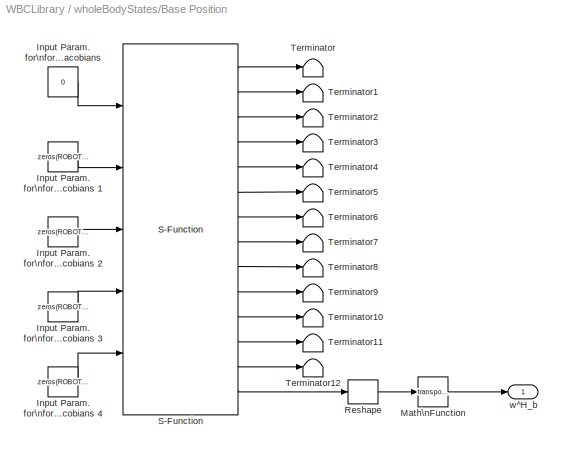
BLOCK [SubSystem] wholeBodyStates/Base Position
  Ports = [0, 1]
  RequestExecContextInheritance = off
  SID = 1523
  Variant = off
BLOCK [Constant] wholeBodyStates/Base Position/Input Param. for\nforwardKinematics\nand \ncomputeJacobians 
  OutDataTypeStr = int8
  SID = 1524
  SampleTime = Ts
  Value = 0
BLOCK [Constant] wholeBodyStates/Base Position/Input Param. for\nforwardKinematics\nand \ncomputeJacobians 1
  OutDataTypeStr = double
  SID = 1525
  SampleTime = Ts
  Value = zeros(ROBOT_DOF,1)
BLOCK [Constant] wholeBodyStates/Base Position/Input Param. for\nforwardKinematics\nand \ncomputeJacobians 2
  OutDataTypeStr = double
  SID = 1526
  SampleTime = Ts
  Value = zeros(ROBOT_DOF+16, 1)
BLOCK [Constant] wholeBodyStates/Base Position/Input Param. for\nforwardKinematics\nand \ncomputeJacobians 3
  OutDataTypeStr = double
  SID = 1527
  SampleTime = Ts
  Value = zeros(ROBOT_DOF+6,1)
BLOCK [Constant] wholeBodyStates/Base Position/Input Param. for\nforwardKinematics\nand \ncomputeJacobians 4
  OutDataTypeStr = double
  SID = 1528
  SampleTime = Ts
  Value = zeros(ROBOT_DOF+6,1)
BLOCK [Math] wholeBodyStates/Base Position/Math\nFunction
  Operator = transpose
  Ports = [1, 1]
  SID = 1577
BLOCK [Reshape] wholeBodyStates/Base Position/Reshape
  OutputDimensionality = Customize
  OutputDimensions = [4,4]
  Ports = [1, 1]
  SID = 1575
BLOCK [S-Function] wholeBodyStates/Base Position/S-Function
  EnableBusSupport = off
  FunctionName = robotState
  Parameters = val,robotName,localName,linkName
  Ports = [5, 14]
  SFunctionDeploymentMode = off
  SID = 1529
BLOCK [Terminator] wholeBodyStates/Base Position/Terminator
  SID = 1530
BLOCK [Terminator] wholeBodyStates/Base Position/Terminator1
  SID = 1531
BLOCK [Terminator] wholeBodyStates/Base Position/Terminator10
  SID = 1532
BLOCK [Terminator] wholeBodyStates/Base Position/Terminator11
  SID = 1533
BLOCK [Terminator] wholeBodyStates/Base Position/Terminator12
  SID = 1534
BLOCK [Terminator] wholeBodyStates/Base Position/Terminator2
  SID = 1535
BLOCK [Terminator] wholeBodyStates/Base Position/Terminator3
  SID = 1536
BLOCK [Terminator] wholeBodyStates/Base Position/Terminator4
  SID = 1537
BLOCK [Terminator] wholeBodyStates/Base Position/Terminator5
  SID = 1538
BLOCK [Terminator] wholeBodyStates/Base Position/Terminator6
  SID = 1539
BLOCK [Terminator] wholeBodyStates/Base Position/Terminator7
  SID = 1540
BLOCK [Terminator] wholeBodyStates/Base Position/Terminator8
  SID = 1541
BLOCK [Terminator] wholeBodyStates/Base Position/Terminator9
  SID = 1542
BLOCK [Outport] wholeBodyStates/Base Position/w^H_b
  IconDisplay = Port number
  SID = 1543
BLOCK [SubSystem] wholeBodyStates/Base velocity
  Ports = [0, 1]
  RequestExecContextInheritance = off
  SID = 1501
  Variant = off
BLOCK [Constant] wholeBodyStates/Base velocity/Input Param. for\nforwardKinematics\nand \ncomputeJacobians 
  OutDataTypeStr = int8
  SID = 1502
  SampleTime = Ts
  Value = 0
BLOCK [Constant] wholeBodyStates/Base velocity/Input Param. for\nforwardKinematics\nand \ncomputeJacobians 1
  OutDataTypeStr = double
  SID = 1503
  SampleTime = Ts
  Value = zeros(ROBOT_DOF,1)
BLOCK [Constant] wholeBodyStates/Base velocity/Input Param. for\nforwardKinematics\nand \ncomputeJacobians 2
  OutDataTypeStr = double
  SID = 1504
  SampleTime = Ts
  Value = zeros(ROBOT_DOF+16, 1)
BLOCK [Constant] wholeBodyStates/Base velocity/Input Param. for\nforwardKinematics\nand \ncomputeJacobians 3
  OutDataTypeStr = double
  SID = 1505
  SampleTime = Ts
  Value = zeros(ROBOT_DOF+6,1)
BLOCK [Constant] wholeBodyStates/Base velocity/Input Param. for\nforwardKinematics\nand \ncomputeJacobians 4
  OutDataTypeStr = double
  SID = 1506
  SampleTime = Ts
  Value = zeros(ROBOT_DOF+6,1)
BLOCK [S-Function] wholeBodyStates/Base velocity/S-Function
  EnableBusSupport = off
  FunctionName = robotState
  Parameters = val,robotName,localName,linkName
  Ports = [5, 14]
  SFunctionDeploymentMode = off
  SID = 1507
BLOCK [Terminator] wholeBodyStates/Base velocity/Terminator
  SID = 1508
BLOCK [Terminator] wholeBodyStates/Base velocity/Terminator1
  SID = 1509
BLOCK [Terminator] wholeBodyStates/Base velocity/Terminator10
  SID = 1510
BLOCK [Terminator] wholeBodyStates/Base velocity/Terminator11
  SID = 1511
BLOCK [Terminator] wholeBodyStates/Base velocity/Terminator13
  SID = 1512
BLOCK [Terminator] wholeBodyStates/Base velocity/Terminator2
  SID = 1513
BLOCK [Terminator] wholeBodyStates/Base velocity/Terminator3
  SID = 1514
BLOCK [Terminator] wholeBodyStates/Base velocity/Terminator4
  SID = 1515
BLOCK [Terminator] wholeBodyStates/Base velocity/Terminator5
  SID = 1516
BLOCK [Terminator] wholeBodyStates/Base velocity/Terminator6
  SID = 1517
BLOCK [Terminator] wholeBodyStates/Base velocity/Terminator7
  SID = 1518
BLOCK [Terminator] wholeBodyStates/Base velocity/Terminator8
  SID = 1519
BLOCK [Terminator] wholeBodyStates/Base velocity/Terminator9
  SID = 1520
BLOCK [Outport] wholeBodyStates/Base velocity/base velocity
  IconDisplay = Port number
  SID = 1521
BLOCK [SubSystem] wholeBodyStates/DUMMY Joint Torques
  Ports = [0, 1]
  RequestExecContextInheritance = off
  SID = 671
  Variant = off
BLOCK [Outport] wholeBodyStates/DUMMY Joint Torques/joint tau
  IconDisplay = Port number
  SID = 697
BLOCK [SubSystem] wholeBodyStates/DUMMY Joint Torques/tau from ports
  Ports = [0, 5]
  RequestExecContextInheritance = off
  SID = 672
  Variant = off
BLOCK [Mux] wholeBodyStates/DUMMY Joint Torques/tau from ports/Mux
  DisplayOption = bar
  Inputs = 5
  Ports = [5, 1]
  SID = 673
BLOCK [Mux] wholeBodyStates/DUMMY Joint Torques/tau from ports/Mux1
  DisplayOption = bar
  Inputs = 5
  Ports = [5, 1]
  SID = 674
BLOCK [Mux] wholeBodyStates/DUMMY Joint Torques/tau from ports/Mux2
  DisplayOption = bar
  Inputs = 3
  Ports = [3, 1]
  SID = 675
BLOCK [Mux] wholeBodyStates/DUMMY Joint Torques/tau from ports/Mux4
  DisplayOption = bar
  Inputs = 6
  Ports = [6, 1]
  SID = 676
BLOCK [Mux] wholeBodyStates/DUMMY Joint Torques/tau from ports/Mux5
  DisplayOption = bar
  Inputs = 6
  Ports = [6, 1]
  SID = 677
BLOCK [Outport] wholeBodyStates/DUMMY Joint Torques/tau from ports/leftArm
  IconDisplay = Port number
  Port = 2
  SID = 684
BLOCK [Outport] wholeBodyStates/DUMMY Joint Torques/tau from ports/leftLeg
  IconDisplay = Port number
  Port = 4
  SID = 686
BLOCK [Outport] wholeBodyStates/DUMMY Joint Torques/tau from ports/rightArm
  IconDisplay = Port number
  Port = 3
  SID = 685
BLOCK [Outport] wholeBodyStates/DUMMY Joint Torques/tau from ports/rightLeg
  IconDisplay = Port number
  Port = 5
  SID = 687
BLOCK [Outport] wholeBodyStates/DUMMY Joint Torques/tau from ports/torso
  IconDisplay = Port number
  SID = 683
BLOCK [Reference] wholeBodyStates/DUMMY Joint Torques/tau from ports/yarp armL  REF=WBCLibrary/Utilities/yarp read
  Ports = [0, 5]
  SID = 678
  SourceBlock = WBCLibrary/Utilities/yarp read
  SourceType = yarp read
  autoconnect = on
  blocking = off
  from = ['/' robotName '/left_arm/analog:o/torques']
  num = 5
  timestamp = off
  to = '...'
BLOCK [Reference] wholeBodyStates/DUMMY Joint Torques/tau from ports/yarp armR  REF=WBCLibrary/Utilities/yarp read
  Ports = [0, 5]
  SID = 679
  SourceBlock = WBCLibrary/Utilities/yarp read
  SourceType = yarp read
  autoconnect = on
  blocking = off
  from = ['/' robotName '/right_arm/analog:o/torques']
  num = 5
  timestamp = off
  to = '...'
BLOCK [Reference] wholeBodyStates/DUMMY Joint Torques/tau from ports/yarp legL  REF=WBCLibrary/Utilities/yarp read
  Ports = [0, 6]
  SID = 680
  SourceBlock = WBCLibrary/Utilities/yarp read
  SourceType = yarp read
  autoconnect = on
  blocking = off
  from = ['/' robotName '/left_leg/analog:o/torques']
  num = 6
  timestamp = off
  to = '...'
BLOCK [Reference] wholeBodyStates/DUMMY Joint Torques/tau from ports/yarp legR  REF=WBCLibrary/Utilities/yarp read
  Ports = [0, 6]
  SID = 681
  SourceBlock = WBCLibrary/Utilities/yarp read
  SourceType = yarp read
  autoconnect = on
  blocking = off
  from = ['/' robotName '/right_leg/analog:o/torques']
  num = 6
  timestamp = off
  to = '...'
BLOCK [Reference] wholeBodyStates/DUMMY Joint Torques/tau from ports/yarp torso  REF=WBCLibrary/Utilities/yarp read
  Ports = [0, 3]
  SID = 682
  SourceBlock = WBCLibrary/Utilities/yarp read
  SourceType = yarp read
  autoconnect = on
  blocking = off
  from = ['/' robotName '/torso/analog:o/torques']
  num = 3
  timestamp = off
  to = '...'
BLOCK [SubSystem] wholeBodyStates/DUMMY Joint Torques/yarp to WBI
  Ports = [5, 1]
  RequestExecContextInheritance = off
  SID = 688
  Variant = off
BLOCK [Mux] wholeBodyStates/DUMMY Joint Torques/yarp to WBI/Mux3
  DisplayOption = bar
  Inputs = 5
  Ports = [5, 1]
  SID = 694
BLOCK [Selector] wholeBodyStates/DUMMY Joint Torques/yarp to WBI/Selector
  IndexOptions = Index vector (dialog)
  Indices = [3 2 1]
  InputPortWidth = 3
  OutputSizes = 1
  Ports = [1, 1]
  SID = 695
BLOCK [Outport] wholeBodyStates/DUMMY Joint Torques/yarp to WBI/WBI ordered
  IconDisplay = Port number
  SID = 696
BLOCK [Inport] wholeBodyStates/DUMMY Joint Torques/yarp to WBI/leftArm
  IconDisplay = Port number
  Port = 2
  SID = 690
BLOCK [Inport] wholeBodyStates/DUMMY Joint Torques/yarp to WBI/leftLeg
  IconDisplay = Port number
  Port = 4
  SID = 692
BLOCK [Inport] wholeBodyStates/DUMMY Joint Torques/yarp to WBI/rightArm
  IconDisplay = Port number
  Port = 3
  SID = 691
BLOCK [Inport] wholeBodyStates/DUMMY Joint Torques/yarp to WBI/rightLeg
  IconDisplay = Port number
  Port = 5
  SID = 693
BLOCK [Inport] wholeBodyStates/DUMMY Joint Torques/yarp to WBI/torso
  IconDisplay = Port number
  SID = 689
BLOCK [SubSystem] wholeBodyStates/Joint Accelerations
  Ports = [0, 1]
  RequestExecContextInheritance = off
  SID = 555
  Variant = off
BLOCK [Constant] wholeBodyStates/Joint Accelerations/Constant
  OutDataTypeStr = double
  SID = 556
  SampleTime = Ts
  Value = zeros(ROBOT_DOF,1)
BLOCK [Constant] wholeBodyStates/Joint Accelerations/Constant1
  OutDataTypeStr = double
  SID = 557
  SampleTime = Ts
  Value = zeros(ROBOT_DOF+16,1)
BLOCK [Constant] wholeBodyStates/Joint Accelerations/Constant2
  OutDataTypeStr = int8
  SID = 558
  SampleTime = Ts
  Value = 0
BLOCK [Constant] wholeBodyStates/Joint Accelerations/Constant3
  OutDataTypeStr = double
  SID = 559
  SampleTime = Ts
  Value = zeros(ROBOT_DOF+6,1)
BLOCK [Constant] wholeBodyStates/Joint Accelerations/Constant4
  OutDataTypeStr = double
  SID = 560
  SampleTime = Ts
  Value = zeros(ROBOT_DOF+6,1)
BLOCK [S-Function] wholeBodyStates/Joint Accelerations/S-Function
  EnableBusSupport = off
  FunctionName = robotState
  Parameters = 10,robotName,localName,'na'
  Ports = [5, 13]
  SFunctionDeploymentMode = off
  SID = 561
BLOCK [Terminator] wholeBodyStates/Joint Accelerations/Terminator
  SID = 562
BLOCK [Terminator] wholeBodyStates/Joint Accelerations/Terminator1
  SID = 563
BLOCK [Terminator] wholeBodyStates/Joint Accelerations/Terminator10
  SID = 1371
BLOCK [Terminator] wholeBodyStates/Joint Accelerations/Terminator11
  SID = 1372
BLOCK [Terminator] wholeBodyStates/Joint Accelerations/Terminator2
  SID = 564
BLOCK [Terminator] wholeBodyStates/Joint Accelerations/Terminator3
  SID = 565
BLOCK [Terminator] wholeBodyStates/Joint Accelerations/Terminator4
  SID = 566
BLOCK [Terminator] wholeBodyStates/Joint Accelerations/Terminator5
  SID = 567
BLOCK [Terminator] wholeBodyStates/Joint Accelerations/Terminator6
  SID = 568
BLOCK [Terminator] wholeBodyStates/Joint Accelerations/Terminator7
  SID = 569
BLOCK [Terminator] wholeBodyStates/Joint Accelerations/Terminator8
  SID = 570
BLOCK [Terminator] wholeBodyStates/Joint Accelerations/Terminator9
  SID = 1370
BLOCK [Outport] wholeBodyStates/Joint Accelerations/ddqJ
  IconDisplay = Port number
  SID = 571
BLOCK [SubSystem] wholeBodyStates/Joint Angles
  Ports = [0, 1]
  RequestExecContextInheritance = off
  SID = 1
  Variant = off
BLOCK [Terminator] wholeBodyStates/Joint Angles/ 
  SID = 572
BLOCK [Terminator] wholeBodyStates/Joint Angles/  
  SID = 573
BLOCK [Terminator] wholeBodyStates/Joint Angles/   
  SID = 574
BLOCK [Terminator] wholeBodyStates/Joint Angles/   1
  SID = 1305
BLOCK [Terminator] wholeBodyStates/Joint Angles/   2
  SID = 1306
BLOCK [Terminator] wholeBodyStates/Joint Angles/   3
  SID = 1307
BLOCK [Constant] wholeBodyStates/Joint Angles/Input Param. for\nforwardKinematics\nand \ncomputeJacobians 
  OutDataTypeStr = int8
  SID = 3
  SampleTime = Ts
  Value = 0
BLOCK [Constant] wholeBodyStates/Joint Angles/Input Param. for\nforwardKinematics\nand \ncomputeJacobians 1
  OutDataTypeStr = double
  SID = 468
  SampleTime = Ts
  Value = zeros(ROBOT_DOF,1)
BLOCK [Constant] wholeBodyStates/Joint Angles/Input Param. for\nforwardKinematics\nand \ncomputeJacobians 2
  OutDataTypeStr = double
  SID = 575
  SampleTime = Ts
  Value = zeros(ROBOT_DOF+16, 1)
BLOCK [Constant] wholeBodyStates/Joint Angles/Input Param. for\nforwardKinematics\nand \ncomputeJacobians 3
  OutDataTypeStr = double
  SID = 576
  SampleTime = Ts
  Value = zeros(ROBOT_DOF+6,1)
BLOCK [Constant] wholeBodyStates/Joint Angles/Input Param. for\nforwardKinematics\nand \ncomputeJacobians 4
  OutDataTypeStr = double
  SID = 577
  SampleTime = Ts
  Value = zeros(ROBOT_DOF+6,1)
BLOCK [Terminator] wholeBodyStates/Joint Angles/Jacobian
  SID = 7
BLOCK [S-Function] wholeBodyStates/Joint Angles/S-Function
  EnableBusSupport = off
  FunctionName = robotState
  Parameters = val,robotname,localname,linkname
  Ports = [5, 13]
  SFunctionDeploymentMode = off
  SID = 4
BLOCK [Terminator] wholeBodyStates/Joint Angles/dJ dq
  SID = 260
BLOCK [Terminator] wholeBodyStates/Joint Angles/getDq
  SID = 5
BLOCK [Terminator] wholeBodyStates/Joint Angles/h
  SID = 259
BLOCK [Terminator] wholeBodyStates/Joint Angles/massMatrix
  SID = 258
BLOCK [Outport] wholeBodyStates/Joint Angles/qrad
  IconDisplay = Port number
  SID = 8
BLOCK [Terminator] wholeBodyStates/Joint Angles/xFoot
  SID = 6
BLOCK [SubSystem] wholeBodyStates/Joint Torques
  Ports = [0, 1]
  RequestExecContextInheritance = off
  SID = 538
  Variant = off
BLOCK [Constant] wholeBodyStates/Joint Torques/Constant
  OutDataTypeStr = double
  SID = 539
  SampleTime = Ts
  Value = zeros(ROBOT_DOF,1)
BLOCK [Constant] wholeBodyStates/Joint Torques/Constant1
  OutDataTypeStr = double
  SID = 540
  SampleTime = Ts
  Value = zeros(ROBOT_DOF+16,1)
BLOCK [Constant] wholeBodyStates/Joint Torques/Constant2
  OutDataTypeStr = int8
  SID = 541
  SampleTime = Ts
  Value = 0
BLOCK [Constant] wholeBodyStates/Joint Torques/Constant3
  OutDataTypeStr = double
  SID = 542
  SampleTime = Ts
  Value = zeros(ROBOT_DOF+6,1)
BLOCK [Constant] wholeBodyStates/Joint Torques/Constant4
  OutDataTypeStr = double
  SID = 543
  SampleTime = Ts
  Value = zeros(ROBOT_DOF+6,1)
BLOCK [S-Function] wholeBodyStates/Joint Torques/S-Function
  EnableBusSupport = off
  FunctionName = robotState
  Parameters = 11,robotName,localName,'na'
  Ports = [5, 13]
  SFunctionDeploymentMode = off
  SID = 544
BLOCK [Terminator] wholeBodyStates/Joint Torques/Terminator
  SID = 545
BLOCK [Terminator] wholeBodyStates/Joint Torques/Terminator1
  SID = 546
BLOCK [Terminator] wholeBodyStates/Joint Torques/Terminator10
  SID = 1374
BLOCK [Terminator] wholeBodyStates/Joint Torques/Terminator11
  SID = 1375
BLOCK [Terminator] wholeBodyStates/Joint Torques/Terminator2
  SID = 547
BLOCK [Terminator] wholeBodyStates/Joint Torques/Terminator3
  SID = 548
BLOCK [Terminator] wholeBodyStates/Joint Torques/Terminator4
  SID = 549
BLOCK [Terminator] wholeBodyStates/Joint Torques/Terminator5
  SID = 550
BLOCK [Terminator] wholeBodyStates/Joint Torques/Terminator6
  SID = 551
BLOCK [Terminator] wholeBodyStates/Joint Torques/Terminator7
  SID = 552
BLOCK [Terminator] wholeBodyStates/Joint Torques/Terminator8
  SID = 553
BLOCK [Terminator] wholeBodyStates/Joint Torques/Terminator9
  SID = 1373
BLOCK [Outport] wholeBodyStates/Joint Torques/tauJ
  IconDisplay = Port number
  SID = 554
BLOCK [SubSystem] wholeBodyStates/Joint Velocities
  Ports = [0, 1]
  RequestExecContextInheritance = off
  SID = 13
  Variant = off
BLOCK [Constant] wholeBodyStates/Joint Velocities/ 
  OutDataTypeStr = double
  SID = 456
  SampleTime = Ts
  Value = zeros(ROBOT_DOF,1)
BLOCK [Constant] wholeBodyStates/Joint Velocities/ 1
  OutDataTypeStr = double
  SID = 581
  SampleTime = Ts
  Value = zeros(ROBOT_DOF+16,1)
BLOCK [Constant] wholeBodyStates/Joint Velocities/ 2
  OutDataTypeStr = double
  SID = 584
  SampleTime = Ts
  Value = zeros(ROBOT_DOF+6,1)
BLOCK [Constant] wholeBodyStates/Joint Velocities/ 3
  OutDataTypeStr = double
  SID = 585
  SampleTime = Ts
  Value = zeros(ROBOT_DOF+6,1)
BLOCK [Constant] wholeBodyStates/Joint Velocities/Input Param. for\nforwardKinematics\nand \ncomputeJacobians 
  OutDataTypeStr = int8
  SID = 15
  SampleTime = Ts
  Value = 0
BLOCK [Terminator] wholeBodyStates/Joint Velocities/Jacobian
  SID = 19
BLOCK [S-Function] wholeBodyStates/Joint Velocities/S-Function
  EnableBusSupport = off
  FunctionName = robotState
  Parameters = val,robotname,localname,linkname
  Ports = [5, 13]
  SFunctionDeploymentMode = off
  SID = 16
BLOCK [Terminator] wholeBodyStates/Joint Velocities/Terminator
  SID = 17
BLOCK [Terminator] wholeBodyStates/Joint Velocities/dJ dq
  SID = 263
BLOCK [Terminator] wholeBodyStates/Joint Velocities/dJ dq1
  SID = 578
BLOCK [Terminator] wholeBodyStates/Joint Velocities/dJ dq2
  SID = 579
BLOCK [Terminator] wholeBodyStates/Joint Velocities/dJ dq3
  SID = 580
BLOCK [Terminator] wholeBodyStates/Joint Velocities/dJ dq4
  SID = 1311
BLOCK [Terminator] wholeBodyStates/Joint Velocities/dJ dq5
  SID = 1312
BLOCK [Terminator] wholeBodyStates/Joint Velocities/dJ dq6
  SID = 1313
BLOCK [Outport] wholeBodyStates/Joint Velocities/dq
  IconDisplay = Port number
  SID = 20
BLOCK [Terminator] wholeBodyStates/Joint Velocities/h
  SID = 262
BLOCK [Terminator] wholeBodyStates/Joint Velocities/massMatrix
  SID = 261
BLOCK [Terminator] wholeBodyStates/Joint Velocities/xFoot
  SID = 18
BLOCK [SubSystem] wholeBodyStates/Left leg EE Wrench
  Ports = [0, 1]
  RequestExecContextInheritance = off
  SID = 1172
  Variant = off
BLOCK [Terminator] wholeBodyStates/Left leg EE Wrench/ 
  SID = 1173
BLOCK [Terminator] wholeBodyStates/Left leg EE Wrench/  
  SID = 1174
BLOCK [Terminator] wholeBodyStates/Left leg EE Wrench/   
  SID = 1175
BLOCK [Terminator] wholeBodyStates/Left leg EE Wrench/   1
  SID = 1378
BLOCK [Terminator] wholeBodyStates/Left leg EE Wrench/  1
  SID = 1377
BLOCK [Terminator] wholeBodyStates/Left leg EE Wrench/ 1
  SID = 1376
BLOCK [Constant] wholeBodyStates/Left leg EE Wrench/Input Param. for\nforwardKinematics\nand \ncomputeJacobians 
  OutDataTypeStr = int8
  SID = 1176
  SampleTime = Ts
BLOCK [Constant] wholeBodyStates/Left leg EE Wrench/Input Param. for\nforwardKinematics\nand \ncomputeJacobians 1
  OutDataTypeStr = double
  SID = 1177
  SampleTime = Ts
  Value = zeros(ROBOT_DOF,1)
BLOCK [Constant] wholeBodyStates/Left leg EE Wrench/Input Param. for\nforwardKinematics\nand \ncomputeJacobians 2
  OutDataTypeStr = double
  SID = 1178
  SampleTime = Ts
  Value = zeros(ROBOT_DOF+16,1)
BLOCK [Constant] wholeBodyStates/Left leg EE Wrench/Input Param. for\nforwardKinematics\nand \ncomputeJacobians 3
  OutDataTypeStr = double
  SID = 1179
  SampleTime = Ts
  Value = zeros(ROBOT_DOF+6,1)
BLOCK [Constant] wholeBodyStates/Left leg EE Wrench/Input Param. for\nforwardKinematics\nand \ncomputeJacobians 4
  OutDataTypeStr = double
  SID = 1180
  SampleTime = Ts
  Value = zeros(ROBOT_DOF+6,1)
BLOCK [Terminator] wholeBodyStates/Left leg EE Wrench/Jacobian
  SID = 1181
BLOCK [Outport] wholeBodyStates/Left leg EE Wrench/LL EEWrench
  IconDisplay = Port number
  SID = 1206
BLOCK [S-Function] wholeBodyStates/Left leg EE Wrench/S-Function
  EnableBusSupport = off
  FunctionName = robotState
  Parameters = val,robotname,localname,linkname
  Ports = [5, 13]
  SFunctionDeploymentMode = off
  SID = 1182
BLOCK [Terminator] wholeBodyStates/Left leg EE Wrench/getDq
  SID = 1184
BLOCK [Terminator] wholeBodyStates/Left leg EE Wrench/h
  SID = 1185
BLOCK [Terminator] wholeBodyStates/Left leg EE Wrench/massMatrix
  SID = 1186
BLOCK [Terminator] wholeBodyStates/Left leg EE Wrench/qrad
  SID = 1207
BLOCK [Terminator] wholeBodyStates/Left leg EE Wrench/xFoot
  SID = 1187
BLOCK [SubSystem] wholeBodyStates/Right leg EE Wrench
  Ports = [0, 1]
  RequestExecContextInheritance = off
  SID = 1189
  Variant = off
BLOCK [Constant] wholeBodyStates/Right leg EE Wrench/ 
  OutDataTypeStr = double
  SID = 1190
  SampleTime = -1
  Value = zeros(ROBOT_DOF,1)
BLOCK [Constant] wholeBodyStates/Right leg EE Wrench/ 1
  OutDataTypeStr = double
  SID = 1191
  SampleTime = -1
  Value = zeros(ROBOT_DOF+16,1)
BLOCK [Constant] wholeBodyStates/Right leg EE Wrench/ 2
  OutDataTypeStr = double
  SID = 1192
  SampleTime = -1
  Value = zeros(ROBOT_DOF+6,1)
BLOCK [Constant] wholeBodyStates/Right leg EE Wrench/ 3
  OutDataTypeStr = double
  SID = 1193
  SampleTime = -1
  Value = zeros(ROBOT_DOF+6,1)
BLOCK [Constant] wholeBodyStates/Right leg EE Wrench/Input Param. for\nforwardKinematics\nand \ncomputeJacobians 
  OutDataTypeStr = int8
  SID = 1194
  Value = 0
BLOCK [Terminator] wholeBodyStates/Right leg EE Wrench/Jacobian
  SID = 1195
BLOCK [Outport] wholeBodyStates/Right leg EE Wrench/RL EEWrench
  IconDisplay = Port number
  SID = 1210
BLOCK [S-Function] wholeBodyStates/Right leg EE Wrench/S-Function
  EnableBusSupport = off
  FunctionName = robotState
  Parameters = val,robotname,localname,linkname
  Ports = [5, 13]
  SFunctionDeploymentMode = off
  SID = 1196
BLOCK [Terminator] wholeBodyStates/Right leg EE Wrench/Terminator
  SID = 1197
BLOCK [Terminator] wholeBodyStates/Right leg EE Wrench/Terminator1
  SID = 1211
BLOCK [Terminator] wholeBodyStates/Right leg EE Wrench/dJ dq1
  SID = 1199
BLOCK [Terminator] wholeBodyStates/Right leg EE Wrench/dJ dq2
  SID = 1200
BLOCK [Terminator] wholeBodyStates/Right leg EE Wrench/dJ dq3
  SID = 1201
BLOCK [Terminator] wholeBodyStates/Right leg EE Wrench/dJ dq4
  SID = 1379
BLOCK [Terminator] wholeBodyStates/Right leg EE Wrench/dJ dq5
  SID = 1380
BLOCK [Terminator] wholeBodyStates/Right leg EE Wrench/dJ dq6
  SID = 1381
BLOCK [Terminator] wholeBodyStates/Right leg EE Wrench/h
  SID = 1202
BLOCK [Terminator] wholeBodyStates/Right leg EE Wrench/massMatrix
  SID = 1203
BLOCK [Terminator] wholeBodyStates/Right leg EE Wrench/xFoot
  SID = 1204
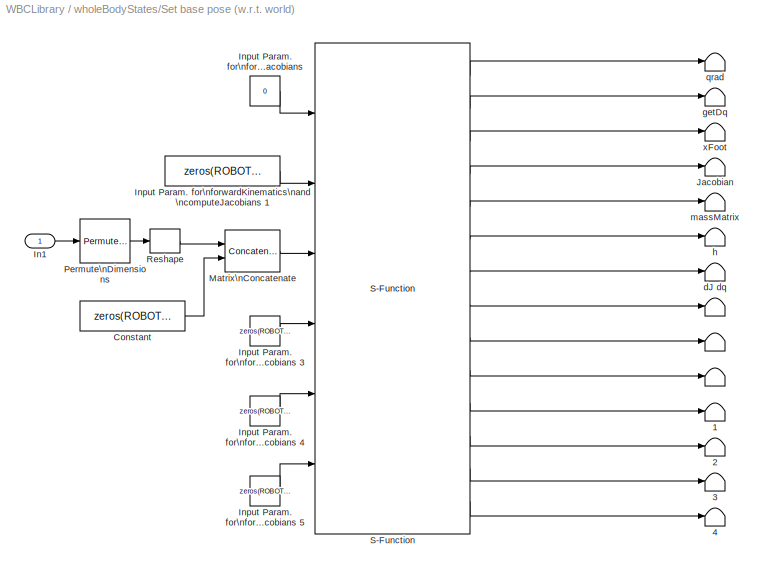
BLOCK [SubSystem] wholeBodyStates/Set base pose (w.r.t. world)
  Ports = [1]
  RequestExecContextInheritance = off
  SID = 1546
  Variant = off
BLOCK [Terminator] wholeBodyStates/Set base pose (w.r.t. world)/ 
  SID = 1548
BLOCK [Terminator] wholeBodyStates/Set base pose (w.r.t. world)/  
  SID = 1549
BLOCK [Terminator] wholeBodyStates/Set base pose (w.r.t. world)/   
  SID = 1550
BLOCK [Terminator] wholeBodyStates/Set base pose (w.r.t. world)/   1
  SID = 1551
BLOCK [Terminator] wholeBodyStates/Set base pose (w.r.t. world)/   2
  SID = 1552
BLOCK [Terminator] wholeBodyStates/Set base pose (w.r.t. world)/   3
  SID = 1553
BLOCK [Terminator] wholeBodyStates/Set base pose (w.r.t. world)/   4
  SID = 1554
BLOCK [Constant] wholeBodyStates/Set base pose (w.r.t. world)/Constant
  SID = 1569
  Value = zeros(ROBOT_DOF,1)
BLOCK [Inport] wholeBodyStates/Set base pose (w.r.t. world)/In1
  IconDisplay = Signal name
  SID = 1547
  SampleTime = Ts
BLOCK [Constant] wholeBodyStates/Set base pose (w.r.t. world)/Input Param. for\nforwardKinematics\nand \ncomputeJacobians 
  OutDataTypeStr = int8
  SID = 1555
  SampleTime = Ts
  Value = 0
BLOCK [Constant] wholeBodyStates/Set base pose (w.r.t. world)/Input Param. for\nforwardKinematics\nand \ncomputeJacobians 1
  OutDataTypeStr = double
  SID = 1556
  SampleTime = Ts
  Value = zeros(ROBOT_DOF,1)
BLOCK [Constant] wholeBodyStates/Set base pose (w.r.t. world)/Input Param. for\nforwardKinematics\nand \ncomputeJacobians 3
  OutDataTypeStr = double
  SID = 1558
  SampleTime = Ts
  Value = zeros(ROBOT_DOF+6,1)
BLOCK [Constant] wholeBodyStates/Set base pose (w.r.t. world)/Input Param. for\nforwardKinematics\nand \ncomputeJacobians 4
  OutDataTypeStr = double
  SID = 1559
  SampleTime = Ts
  Value = zeros(ROBOT_DOF+6,1)
BLOCK [Constant] wholeBodyStates/Set base pose (w.r.t. world)/Input Param. for\nforwardKinematics\nand \ncomputeJacobians 5
  OutDataTypeStr = double
  SID = 1571
  SampleTime = Ts
  Value = zeros(ROBOT_DOF+6,1)
BLOCK [Terminator] wholeBodyStates/Set base pose (w.r.t. world)/Jacobian
  SID = 1560
BLOCK [Concatenate] wholeBodyStates/Set base pose (w.r.t. world)/Matrix\nConcatenate
  ConcatenateDimension = 2
  Ports = [2, 1]
  SID = 1570
BLOCK [PermuteDimensions] wholeBodyStates/Set base pose (w.r.t. world)/Permute\nDimensions
  SID = 1574
BLOCK [Reshape] wholeBodyStates/Set base pose (w.r.t. world)/Reshape
  Ports = [1, 1]
  SID = 1561
BLOCK [S-Function] wholeBodyStates/Set base pose (w.r.t. world)/S-Function
  EnableBusSupport = off
  FunctionName = robotState
  Parameters = val,robotname,localname,linkname
  Ports = [6, 14]
  SFunctionDeploymentMode = off
  SID = 1562
BLOCK [Terminator] wholeBodyStates/Set base pose (w.r.t. world)/dJ dq
  SID = 1563
BLOCK [Terminator] wholeBodyStates/Set base pose (w.r.t. world)/getDq
  SID = 1564
BLOCK [Terminator] wholeBodyStates/Set base pose (w.r.t. world)/h
  SID = 1565
BLOCK [Terminator] wholeBodyStates/Set base pose (w.r.t. world)/massMatrix
  SID = 1566
BLOCK [Terminator] wholeBodyStates/Set base pose (w.r.t. world)/qrad
  SID = 1567
BLOCK [Terminator] wholeBodyStates/Set base pose (w.r.t. world)/xFoot
  SID = 1568
BLOCK [SubSystem] wholeBodyStates/Set base velocity (w.r.t. world)
  Ports = [1]
  RequestExecContextInheritance = off
  SID = 1603
  Variant = off
BLOCK [Terminator] wholeBodyStates/Set base velocity (w.r.t. world)/ 
  SID = 1604
BLOCK [Terminator] wholeBodyStates/Set base velocity (w.r.t. world)/  
  SID = 1605
BLOCK [Terminator] wholeBodyStates/Set base velocity (w.r.t. world)/   
  SID = 1606
BLOCK [Terminator] wholeBodyStates/Set base velocity (w.r.t. world)/   1
  SID = 1607
BLOCK [Terminator] wholeBodyStates/Set base velocity (w.r.t. world)/   2
  SID = 1608
BLOCK [Terminator] wholeBodyStates/Set base velocity (w.r.t. world)/   3
  SID = 1609
BLOCK [Terminator] wholeBodyStates/Set base velocity (w.r.t. world)/   4
  SID = 1623
BLOCK [Constant] wholeBodyStates/Set base velocity (w.r.t. world)/Input Param. for\nforwardKinematics\nand \ncomputeJacobians 
  OutDataTypeStr = int8
  SID = 1610
  SampleTime = Ts
  Value = 0
BLOCK [Constant] wholeBodyStates/Set base velocity (w.r.t. world)/Input Param. for\nforwardKinematics\nand \ncomputeJacobians 1
  OutDataTypeStr = double
  SID = 1611
  SampleTime = Ts
  Value = zeros(ROBOT_DOF,1)
BLOCK [Constant] wholeBodyStates/Set base velocity (w.r.t. world)/Input Param. for\nforwardKinematics\nand \ncomputeJacobians 2
  OutDataTypeStr = double
  SID = 1612
  SampleTime = Ts
  Value = zeros(ROBOT_DOF+16, 1)
BLOCK [Constant] wholeBodyStates/Set base velocity (w.r.t. world)/Input Param. for\nforwardKinematics\nand \ncomputeJacobians 3
  OutDataTypeStr = double
  SID = 1627
  SampleTime = Ts
  Value = zeros(ROBOT_DOF, 1)
BLOCK [Constant] wholeBodyStates/Set base velocity (w.r.t. world)/Input Param. for\nforwardKinematics\nand \ncomputeJacobians 4
  OutDataTypeStr = double
  SID = 1614
  SampleTime = Ts
  Value = zeros(ROBOT_DOF+6,1)
BLOCK [Terminator] wholeBodyStates/Set base velocity (w.r.t. world)/Jacobian
  SID = 1615
BLOCK [Mux] wholeBodyStates/Set base velocity (w.r.t. world)/Mux
  DisplayOption = bar
  Inputs = 2
  Ports = [2, 1]
  SID = 1626
BLOCK [S-Function] wholeBodyStates/Set base velocity (w.r.t. world)/S-Function
  EnableBusSupport = off
  FunctionName = robotState
  Parameters = val,robotname,localname,linkname
  Ports = [5, 14]
  SFunctionDeploymentMode = off
  SID = 1616
BLOCK [Terminator] wholeBodyStates/Set base velocity (w.r.t. world)/dJ dq
  SID = 1617
BLOCK [Terminator] wholeBodyStates/Set base velocity (w.r.t. world)/getDq
  SID = 1618
BLOCK [Terminator] wholeBodyStates/Set base velocity (w.r.t. world)/getDq1
  SID = 1624
BLOCK [Terminator] wholeBodyStates/Set base velocity (w.r.t. world)/h
  SID = 1619
BLOCK [Terminator] wholeBodyStates/Set base velocity (w.r.t. world)/massMatrix
  SID = 1620
BLOCK [Inport] wholeBodyStates/Set base velocity (w.r.t. world)/vb
  IconDisplay = Port number
  SID = 1625
BLOCK [Terminator] wholeBodyStates/Set base velocity (w.r.t. world)/xFoot
  SID = 1621
BLOCK [SubSystem] wholeBodyStates/dq_b + dq_j
  Ports = [0, 1]
  RequestExecContextInheritance = off
  SID = 1407
  Variant = off
BLOCK [Reference] wholeBodyStates/dq_b + dq_j/Joint Velocities  REF=WBCLibrary/wholeBodyStates/Joint Velocities
  Ports = [0, 1]
  SID = 1408
  SourceBlock = WBCLibrary/wholeBodyStates/Joint Velocities
  SourceType = Joint Velocities
  localName = localName
  robotName = robotName
BLOCK [Reference] wholeBodyStates/dq_b + dq_j/Left Foot Jacobian  REF=WBCLibrary/wholeBodyModel/Jacobians/Left Foot Jacobian
  Ports = [0, 1]
  SID = 1409
  SourceBlock = WBCLibrary/wholeBodyModel/Jacobians/Left Foot Jacobian
  SourceType = Left Foot Jacobian
  localName = localName
  robotName = robotName
BLOCK [Mux] wholeBodyStates/dq_b + dq_j/Mux
  DisplayOption = bar
  Inputs = 2
  Ports = [2, 1]
  SID = 1410
BLOCK [Reference] wholeBodyStates/dq_b + dq_j/Right Foot Jacobian  REF=WBCLibrary/wholeBodyModel/Jacobians/Right Foot Jacobian
  Ports = [0, 1]
  SID = 1411
  SourceBlock = WBCLibrary/wholeBodyModel/Jacobians/Right Foot Jacobian
  SourceType = Right Foot Jacobian
  localName = localName
  robotName = robotName
BLOCK [Reference] wholeBodyStates/dq_b + dq_j/baseVelocity  REF=WBCLibrary/Utilities/baseVelocity
  Ports = [3, 1]
  SID = 1412
  SourceBlock = WBCLibrary/Utilities/baseVelocity
  SourceType = baseVelocity
BLOCK [Outport] wholeBodyStates/dq_b + dq_j/dq
  IconDisplay = Port number
  SID = 1413
BLOCK [SubSystem] wholeBodyStates/q_b + q_j
  Ports = [0, 1]
  RequestExecContextInheritance = off
  SID = 1402
  Variant = off
BLOCK [Constant] wholeBodyStates/q_b + q_j/Constant1
  SID = 1403
  Value = zeros(16,1)
BLOCK [Reference] wholeBodyStates/q_b + q_j/Joint Angles  REF=WBCLibrary/wholeBodyStates/Joint Angles
  Ports = [0, 1]
  SID = 1404
  SourceBlock = WBCLibrary/wholeBodyStates/Joint Angles
  SourceType = Joint Angles
  localName = localName
  robotName = robotName
BLOCK [Mux] wholeBodyStates/q_b + q_j/Mux
  DisplayOption = bar
  Inputs = 2
  Ports = [2, 1]
  SID = 1405
BLOCK [Outport] wholeBodyStates/q_b + q_j/q
  IconDisplay = Port number
  SID = 1406
ANNOTATION (root): <copyright redacted>\nThis software was supported by the FP7 EU Project CoDyCO (No. 600716 ICT 2011.2.1 Cognitive Systems and Robotics (b))\nhttp://www.codyco.eu
ANNOTATION (root): WHOLE BODY INTERFACE TOOLBOX
ANNOTATION wholeBodyActuators: DO NOT USE THIS BLOCK YET. \nUNDER DEVELOPMENT
LINE Utilities/23-DoFs WBI to YARP/Selector1:1 -> Utilities/23-DoFs WBI to YARP/leftArm:1
LINE Utilities/23-DoFs WBI to YARP/Selector2:1 -> Utilities/23-DoFs WBI to YARP/rightArm:1
LINE Utilities/23-DoFs WBI to YARP/Selector3:1 -> Utilities/23-DoFs WBI to YARP/leftLeg:1
LINE Utilities/23-DoFs WBI to YARP/Selector4:1 -> Utilities/23-DoFs WBI to YARP/rightLeg:1
LINE Utilities/23-DoFs WBI to YARP/Selector6:1 -> Utilities/23-DoFs WBI to YARP/torso:1
LINE Utilities/23-DoFs WBI to YARP/Selector:1 -> Utilities/23-DoFs WBI to YARP/Selector6:1
NET Utilities/23-DoFs WBI to YARP/WBI Ordered:1 -> Utilities/23-DoFs WBI to YARP/Selector1:1, Utilities/23-DoFs WBI to YARP/Selector2:1, Utilities/23-DoFs WBI to YARP/Selector3:1, Utilities/23-DoFs WBI to YARP/Selector4:1, Utilities/23-DoFs WBI to YARP/Selector:1
LINE Utilities/25-DoFs WBI to yarp/Selector1:1 -> Utilities/25-DoFs WBI to yarp/leftArm:1
LINE Utilities/25-DoFs WBI to yarp/Selector2:1 -> Utilities/25-DoFs WBI to yarp/rightArm:1
LINE Utilities/25-DoFs WBI to yarp/Selector3:1 -> Utilities/25-DoFs WBI to yarp/leftLeg:1
LINE Utilities/25-DoFs WBI to yarp/Selector4:1 -> Utilities/25-DoFs WBI to yarp/rightLeg:1
LINE Utilities/25-DoFs WBI to yarp/Selector6:1 -> Utilities/25-DoFs WBI to yarp/torso:1
LINE Utilities/25-DoFs WBI to yarp/Selector:1 -> Utilities/25-DoFs WBI to yarp/Selector6:1
NET Utilities/25-DoFs WBI to yarp/WBI ordered:1 -> Utilities/25-DoFs WBI to yarp/Selector1:1, Utilities/25-DoFs WBI to yarp/Selector2:1, Utilities/25-DoFs WBI to yarp/Selector3:1, Utilities/25-DoFs WBI to yarp/Selector4:1, Utilities/25-DoFs WBI to yarp/Selector:1
LINE Utilities/DampPinv/Damped Pseudo Inverse/ Demux :1 -> Utilities/DampPinv/Damped Pseudo Inverse/ Terminator :1
LINE Utilities/DampPinv/Damped Pseudo Inverse/ SFunction :1 -> Utilities/DampPinv/Damped Pseudo Inverse/ Demux :1
LINE Utilities/DampPinv/Damped Pseudo Inverse/ SFunction :2 -> Utilities/DampPinv/Damped Pseudo Inverse/DPinv:1
LINE Utilities/DampPinv/Damped Pseudo Inverse/mat:1 -> Utilities/DampPinv/Damped Pseudo Inverse/ SFunction :1
LINE Utilities/DampPinv/Damped Pseudo Inverse/sigma:1 -> Utilities/DampPinv/Damped Pseudo Inverse/ SFunction :2
LINE Utilities/DampPinv/Damped Pseudo Inverse:1 -> Utilities/DampPinv/DPinv:1
LINE Utilities/DampPinv/mat:1 -> Utilities/DampPinv/Damped Pseudo Inverse:1
LINE Utilities/DampPinv/sigma:1 -> Utilities/DampPinv/Damped Pseudo Inverse:2
LINE Utilities/TruncPinv/S:1 -> Utilities/TruncPinv/Truncated PseudoInverse:1
LINE Utilities/TruncPinv/Truncated PseudoInverse/ Demux :1 -> Utilities/TruncPinv/Truncated PseudoInverse/ Terminator :1
LINE Utilities/TruncPinv/Truncated PseudoInverse/ SFunction :1 -> Utilities/TruncPinv/Truncated PseudoInverse/ Demux :1
LINE Utilities/TruncPinv/Truncated PseudoInverse/ SFunction :2 -> Utilities/TruncPinv/Truncated PseudoInverse/TPinv:1
LINE Utilities/TruncPinv/Truncated PseudoInverse/mat:1 -> Utilities/TruncPinv/Truncated PseudoInverse/ SFunction :1
LINE Utilities/TruncPinv/Truncated PseudoInverse/tol:1 -> Utilities/TruncPinv/Truncated PseudoInverse/ SFunction :2
LINE Utilities/TruncPinv/Truncated PseudoInverse:1 -> Utilities/TruncPinv/Tpinv:1
LINE Utilities/TruncPinv/tol:1 -> Utilities/TruncPinv/Truncated PseudoInverse:2
LINE Utilities/baseVelocity/JacobLF:1 -> Utilities/baseVelocity/Matrix\nConcatenate:2
LINE Utilities/baseVelocity/JacobRF:1 -> Utilities/baseVelocity/Matrix\nConcatenate:1
LINE Utilities/baseVelocity/MATLAB Function/ Demux :1 -> Utilities/baseVelocity/MATLAB Function/ Terminator :1
LINE Utilities/baseVelocity/MATLAB Function/ SFunction :1 -> Utilities/baseVelocity/MATLAB Function/ Demux :1
LINE Utilities/baseVelocity/MATLAB Function/ SFunction :2 -> Utilities/baseVelocity/MATLAB Function/y:1
LINE Utilities/baseVelocity/MATLAB Function/JcIn:1 -> Utilities/baseVelocity/MATLAB Function/ SFunction :1
LINE Utilities/baseVelocity/MATLAB Function/qD:1 -> Utilities/baseVelocity/MATLAB Function/ SFunction :2
LINE Utilities/baseVelocity/MATLAB Function:1 -> Utilities/baseVelocity/baseVel:1
LINE Utilities/baseVelocity/Matrix\nConcatenate:1 -> Utilities/baseVelocity/MATLAB Function:1
LINE Utilities/baseVelocity/dq:1 -> Utilities/baseVelocity/MATLAB Function:2
NET Utilities/errors/Add:1 -> Utilities/errors/Divide:1, Utilities/errors/x-y:1
LINE Utilities/errors/Divide:1 -> Utilities/errors/(x-y).//y:1
LINE Utilities/errors/x:1 -> Utilities/errors/Add:1
NET Utilities/errors/y:1 -> Utilities/errors/Add:2, Utilities/errors/Divide:2
LINE Utilities/holder\n/Clock:1 -> Utilities/holder\n/Compare\nTo Constant:1
LINE Utilities/holder\n/Compare\nTo Constant:1 -> Utilities/holder\n/MATLAB Function:2
LINE Utilities/holder\n/MATLAB Function/ Demux :1 -> Utilities/holder\n/MATLAB Function/ Terminator :1
LINE Utilities/holder\n/MATLAB Function/ SFunction :1 -> Utilities/holder\n/MATLAB Function/ Demux :1
LINE Utilities/holder\n/MATLAB Function/ SFunction :2 -> Utilities/holder\n/MATLAB Function/s0:1
LINE Utilities/holder\n/MATLAB Function/s:1 -> Utilities/holder\n/MATLAB Function/ SFunction :1
LINE Utilities/holder\n/MATLAB Function/unused:1 -> Utilities/holder\n/MATLAB Function/ SFunction :2
LINE Utilities/holder\n/MATLAB Function:1 -> Utilities/holder\n/s(0):1
LINE Utilities/holder\n/s:1 -> Utilities/holder\n/MATLAB Function:1
LINE Utilities/minJerkTrajGen/S-Function:1 -> Utilities/minJerkTrajGen/pos:1
LINE Utilities/minJerkTrajGen/S-Function:2 -> Utilities/minJerkTrajGen/vel:1
LINE Utilities/minJerkTrajGen/S-Function:3 -> Utilities/minJerkTrajGen/acc:1
LINE Utilities/minJerkTrajGen/desiredPos:1 -> Utilities/minJerkTrajGen/S-Function:2
LINE Utilities/minJerkTrajGen/initPos:1 -> Utilities/minJerkTrajGen/S-Function:1
LINE Utilities/yarp to WBI/Mux3:1 -> Utilities/yarp to WBI/WBI ordered:1
LINE Utilities/yarp to WBI/Selector:1 -> Utilities/yarp to WBI/Mux3:1
LINE Utilities/yarp to WBI/leftArm:1 -> Utilities/yarp to WBI/Mux3:2
LINE Utilities/yarp to WBI/leftLeg:1 -> Utilities/yarp to WBI/Mux3:4
LINE Utilities/yarp to WBI/rightArm:1 -> Utilities/yarp to WBI/Mux3:3
LINE Utilities/yarp to WBI/rightLeg:1 -> Utilities/yarp to WBI/Mux3:5
LINE Utilities/yarp to WBI/torso:1 -> Utilities/yarp to WBI/Selector:1
LINE Utilities/yarp write/In1:1 -> Utilities/yarp write/S-Function:1
LINE wholeBodyActuators/Set Angles (Direct)/Input Param. for\nforwardKinematics\nand \ncomputeJacobians 1:1 -> wholeBodyActuators/Set Angles (Direct)/S-Function:3
LINE wholeBodyActuators/Set Angles (Direct)/Input Param. for\nforwardKinematics\nand \ncomputeJacobians 2:1 -> wholeBodyActuators/Set Angles (Direct)/S-Function:4
LINE wholeBodyActuators/Set Angles (Direct)/Input Param. for\nforwardKinematics\nand \ncomputeJacobians 3:1 -> wholeBodyActuators/Set Angles (Direct)/S-Function:5
LINE wholeBodyActuators/Set Angles (Direct)/Input Param. for\nforwardKinematics\nand \ncomputeJacobians :1 -> wholeBodyActuators/Set Angles (Direct)/S-Function:1
LINE wholeBodyActuators/Set Angles (Direct)/S-Function:1 -> wholeBodyActuators/Set Angles (Direct)/Terminator4:1
LINE wholeBodyActuators/Set Angles (Direct)/S-Function:10 -> wholeBodyActuators/Set Angles (Direct)/Terminator10:1
LINE wholeBodyActuators/Set Angles (Direct)/S-Function:11 -> wholeBodyActuators/Set Angles (Direct)/Terminator12:1
LINE wholeBodyActuators/Set Angles (Direct)/S-Function:12 -> wholeBodyActuators/Set Angles (Direct)/Terminator13:1
LINE wholeBodyActuators/Set Angles (Direct)/S-Function:13 -> wholeBodyActuators/Set Angles (Direct)/Terminator11:1
LINE wholeBodyActuators/Set Angles (Direct)/S-Function:2 -> wholeBodyActuators/Set Angles (Direct)/Terminator1:1
LINE wholeBodyActuators/Set Angles (Direct)/S-Function:3 -> wholeBodyActuators/Set Angles (Direct)/Terminator2:1
LINE wholeBodyActuators/Set Angles (Direct)/S-Function:4 -> wholeBodyActuators/Set Angles (Direct)/Terminator3:1
LINE wholeBodyActuators/Set Angles (Direct)/S-Function:5 -> wholeBodyActuators/Set Angles (Direct)/Terminator5:1
LINE wholeBodyActuators/Set Angles (Direct)/S-Function:6 -> wholeBodyActuators/Set Angles (Direct)/Terminator6:1
LINE wholeBodyActuators/Set Angles (Direct)/S-Function:7 -> wholeBodyActuators/Set Angles (Direct)/Terminator7:1
LINE wholeBodyActuators/Set Angles (Direct)/S-Function:8 -> wholeBodyActuators/Set Angles (Direct)/Terminator8:1
LINE wholeBodyActuators/Set Angles (Direct)/S-Function:9 -> wholeBodyActuators/Set Angles (Direct)/Terminator9:1
LINE wholeBodyActuators/Set Angles (Direct)/q_j:1 -> wholeBodyActuators/Set Angles (Direct)/S-Function:2
LINE wholeBodyActuators/Set Angles/Input Param. for\nforwardKinematics\nand \ncomputeJacobians 1:1 -> wholeBodyActuators/Set Angles/S-Function:3
LINE wholeBodyActuators/Set Angles/Input Param. for\nforwardKinematics\nand \ncomputeJacobians 2:1 -> wholeBodyActuators/Set Angles/S-Function:4
LINE wholeBodyActuators/Set Angles/Input Param. for\nforwardKinematics\nand \ncomputeJacobians 3:1 -> wholeBodyActuators/Set Angles/S-Function:5
LINE wholeBodyActuators/Set Angles/RightFoot:1 -> wholeBodyActuators/Set Angles/S-Function:1
LINE wholeBodyActuators/Set Angles/S-Function:1 -> wholeBodyActuators/Set Angles/Terminator:1
LINE wholeBodyActuators/Set Angles/S-Function:10 -> wholeBodyActuators/Set Angles/Terminator9:1
LINE wholeBodyActuators/Set Angles/S-Function:11 -> wholeBodyActuators/Set Angles/Terminator10:1
LINE wholeBodyActuators/Set Angles/S-Function:12 -> wholeBodyActuators/Set Angles/Terminator11:1
LINE wholeBodyActuators/Set Angles/S-Function:13 -> wholeBodyActuators/Set Angles/Terminator12:1
LINE wholeBodyActuators/Set Angles/S-Function:2 -> wholeBodyActuators/Set Angles/Terminator1:1
LINE wholeBodyActuators/Set Angles/S-Function:3 -> wholeBodyActuators/Set Angles/Terminator2:1
LINE wholeBodyActuators/Set Angles/S-Function:4 -> wholeBodyActuators/Set Angles/Terminator3:1
LINE wholeBodyActuators/Set Angles/S-Function:5 -> wholeBodyActuators/Set Angles/Terminator4:1
LINE wholeBodyActuators/Set Angles/S-Function:6 -> wholeBodyActuators/Set Angles/Terminator5:1
LINE wholeBodyActuators/Set Angles/S-Function:7 -> wholeBodyActuators/Set Angles/Terminator6:1
LINE wholeBodyActuators/Set Angles/S-Function:8 -> wholeBodyActuators/Set Angles/Terminator7:1
LINE wholeBodyActuators/Set Angles/S-Function:9 -> wholeBodyActuators/Set Angles/Terminator8:1
LINE wholeBodyActuators/Set Angles/q_j:1 -> wholeBodyActuators/Set Angles/S-Function:2
LINE wholeBodyActuators/Set Torques/Input Param. for\nforwardKinematics\nand \ncomputeJacobians 1:1 -> wholeBodyActuators/Set Torques/S-Function:3
LINE wholeBodyActuators/Set Torques/Input Param. for\nforwardKinematics\nand \ncomputeJacobians 2:1 -> wholeBodyActuators/Set Torques/S-Function:4
LINE wholeBodyActuators/Set Torques/Input Param. for\nforwardKinematics\nand \ncomputeJacobians 3:1 -> wholeBodyActuators/Set Torques/S-Function:5
LINE wholeBodyActuators/Set Torques/RightFoot:1 -> wholeBodyActuators/Set Torques/S-Function:1
LINE wholeBodyActuators/Set Torques/S-Function:1 -> wholeBodyActuators/Set Torques/Terminator:1
LINE wholeBodyActuators/Set Torques/S-Function:10 -> wholeBodyActuators/Set Torques/Terminator9:1
LINE wholeBodyActuators/Set Torques/S-Function:11 -> wholeBodyActuators/Set Torques/Terminator10:1
LINE wholeBodyActuators/Set Torques/S-Function:12 -> wholeBodyActuators/Set Torques/Terminator11:1
LINE wholeBodyActuators/Set Torques/S-Function:13 -> wholeBodyActuators/Set Torques/Terminator12:1
LINE wholeBodyActuators/Set Torques/S-Function:2 -> wholeBodyActuators/Set Torques/Terminator1:1
LINE wholeBodyActuators/Set Torques/S-Function:3 -> wholeBodyActuators/Set Torques/Terminator2:1
LINE wholeBodyActuators/Set Torques/S-Function:4 -> wholeBodyActuators/Set Torques/Terminator3:1
LINE wholeBodyActuators/Set Torques/S-Function:5 -> wholeBodyActuators/Set Torques/Terminator4:1
LINE wholeBodyActuators/Set Torques/S-Function:6 -> wholeBodyActuators/Set Torques/Terminator5:1
LINE wholeBodyActuators/Set Torques/S-Function:7 -> wholeBodyActuators/Set Torques/Terminator6:1
LINE wholeBodyActuators/Set Torques/S-Function:8 -> wholeBodyActuators/Set Torques/Terminator7:1
LINE wholeBodyActuators/Set Torques/S-Function:9 -> wholeBodyActuators/Set Torques/Terminator8:1
LINE wholeBodyActuators/Set Torques/tau_j:1 -> wholeBodyActuators/Set Torques/S-Function:2
LINE wholeBodyActuators/Set Velocities/Input Param. for\nforwardKinematics\nand \ncomputeJacobians 1:1 -> wholeBodyActuators/Set Velocities/S-Function:3
LINE wholeBodyActuators/Set Velocities/Input Param. for\nforwardKinematics\nand \ncomputeJacobians 2:1 -> wholeBodyActuators/Set Velocities/S-Function:4
LINE wholeBodyActuators/Set Velocities/Input Param. for\nforwardKinematics\nand \ncomputeJacobians 3:1 -> wholeBodyActuators/Set Velocities/S-Function:5
LINE wholeBodyActuators/Set Velocities/Input Param. for\nforwardKinematics\nand \ncomputeJacobians :1 -> wholeBodyActuators/Set Velocities/S-Function:1
LINE wholeBodyActuators/Set Velocities/S-Function:1 -> wholeBodyActuators/Set Velocities/Terminator4:1
LINE wholeBodyActuators/Set Velocities/S-Function:10 -> wholeBodyActuators/Set Velocities/Terminator10:1
LINE wholeBodyActuators/Set Velocities/S-Function:11 -> wholeBodyActuators/Set Velocities/Terminator12:1
LINE wholeBodyActuators/Set Velocities/S-Function:12 -> wholeBodyActuators/Set Velocities/Terminator13:1
LINE wholeBodyActuators/Set Velocities/S-Function:13 -> wholeBodyActuators/Set Velocities/Terminator11:1
LINE wholeBodyActuators/Set Velocities/S-Function:2 -> wholeBodyActuators/Set Velocities/Terminator1:1
LINE wholeBodyActuators/Set Velocities/S-Function:3 -> wholeBodyActuators/Set Velocities/Terminator2:1
LINE wholeBodyActuators/Set Velocities/S-Function:4 -> wholeBodyActuators/Set Velocities/Terminator3:1
LINE wholeBodyActuators/Set Velocities/S-Function:5 -> wholeBodyActuators/Set Velocities/Terminator5:1
LINE wholeBodyActuators/Set Velocities/S-Function:6 -> wholeBodyActuators/Set Velocities/Terminator6:1
LINE wholeBodyActuators/Set Velocities/S-Function:7 -> wholeBodyActuators/Set Velocities/Terminator7:1
LINE wholeBodyActuators/Set Velocities/S-Function:8 -> wholeBodyActuators/Set Velocities/Terminator8:1
LINE wholeBodyActuators/Set Velocities/S-Function:9 -> wholeBodyActuators/Set Velocities/Terminator9:1
LINE wholeBodyActuators/Set Velocities/dq_j:1 -> wholeBodyActuators/Set Velocities/S-Function:2
LINE wholeBodyModel/Dynamics/Cent Momentum/RightFoot:1 -> wholeBodyModel/Dynamics/Cent Momentum/S-Function:1
LINE wholeBodyModel/Dynamics/Cent Momentum/S-Function:1 -> wholeBodyModel/Dynamics/Cent Momentum/Terminator:1
LINE wholeBodyModel/Dynamics/Cent Momentum/S-Function:10 -> wholeBodyModel/Dynamics/Cent Momentum/Terminator9:1
LINE wholeBodyModel/Dynamics/Cent Momentum/S-Function:11 -> wholeBodyModel/Dynamics/Cent Momentum/Terminator10:1
LINE wholeBodyModel/Dynamics/Cent Momentum/S-Function:12 -> wholeBodyModel/Dynamics/Cent Momentum/Terminator11:1
LINE wholeBodyModel/Dynamics/Cent Momentum/S-Function:13 -> wholeBodyModel/Dynamics/Cent Momentum/H:1
LINE wholeBodyModel/Dynamics/Cent Momentum/S-Function:2 -> wholeBodyModel/Dynamics/Cent Momentum/Terminator1:1
LINE wholeBodyModel/Dynamics/Cent Momentum/S-Function:3 -> wholeBodyModel/Dynamics/Cent Momentum/Terminator2:1
LINE wholeBodyModel/Dynamics/Cent Momentum/S-Function:4 -> wholeBodyModel/Dynamics/Cent Momentum/Terminator3:1
LINE wholeBodyModel/Dynamics/Cent Momentum/S-Function:5 -> wholeBodyModel/Dynamics/Cent Momentum/Terminator4:1
LINE wholeBodyModel/Dynamics/Cent Momentum/S-Function:6 -> wholeBodyModel/Dynamics/Cent Momentum/Terminator5:1
LINE wholeBodyModel/Dynamics/Cent Momentum/S-Function:7 -> wholeBodyModel/Dynamics/Cent Momentum/Terminator6:1
LINE wholeBodyModel/Dynamics/Cent Momentum/S-Function:8 -> wholeBodyModel/Dynamics/Cent Momentum/Terminator7:1
LINE wholeBodyModel/Dynamics/Cent Momentum/S-Function:9 -> wholeBodyModel/Dynamics/Cent Momentum/Terminator8:1
LINE wholeBodyModel/Dynamics/Cent Momentum/dq:1 -> wholeBodyModel/Dynamics/Cent Momentum/S-Function:4
LINE wholeBodyModel/Dynamics/Cent Momentum/dummy3:1 -> wholeBodyModel/Dynamics/Cent Momentum/S-Function:5
LINE wholeBodyModel/Dynamics/Cent Momentum/dummy:1 -> wholeBodyModel/Dynamics/Cent Momentum/S-Function:2
LINE wholeBodyModel/Dynamics/Cent Momentum/q:1 -> wholeBodyModel/Dynamics/Cent Momentum/S-Function:3
LINE wholeBodyModel/Dynamics/Inverse Dynamics/Constant2:1 -> wholeBodyModel/Dynamics/Inverse Dynamics/S-Function:1
LINE wholeBodyModel/Dynamics/Inverse Dynamics/Constant:1 -> wholeBodyModel/Dynamics/Inverse Dynamics/S-Function:2
LINE wholeBodyModel/Dynamics/Inverse Dynamics/S-Function:1 -> wholeBodyModel/Dynamics/Inverse Dynamics/Terminator:1
LINE wholeBodyModel/Dynamics/Inverse Dynamics/S-Function:10 -> wholeBodyModel/Dynamics/Inverse Dynamics/genTau:1
LINE wholeBodyModel/Dynamics/Inverse Dynamics/S-Function:11 -> wholeBodyModel/Dynamics/Inverse Dynamics/Terminator9:1
LINE wholeBodyModel/Dynamics/Inverse Dynamics/S-Function:12 -> wholeBodyModel/Dynamics/Inverse Dynamics/Terminator10:1
LINE wholeBodyModel/Dynamics/Inverse Dynamics/S-Function:13 -> wholeBodyModel/Dynamics/Inverse Dynamics/Terminator11:1
LINE wholeBodyModel/Dynamics/Inverse Dynamics/S-Function:2 -> wholeBodyModel/Dynamics/Inverse Dynamics/Terminator1:1
LINE wholeBodyModel/Dynamics/Inverse Dynamics/S-Function:3 -> wholeBodyModel/Dynamics/Inverse Dynamics/Terminator2:1
LINE wholeBodyModel/Dynamics/Inverse Dynamics/S-Function:4 -> wholeBodyModel/Dynamics/Inverse Dynamics/Terminator3:1
LINE wholeBodyModel/Dynamics/Inverse Dynamics/S-Function:5 -> wholeBodyModel/Dynamics/Inverse Dynamics/Terminator4:1
LINE wholeBodyModel/Dynamics/Inverse Dynamics/S-Function:6 -> wholeBodyModel/Dynamics/Inverse Dynamics/Terminator5:1
LINE wholeBodyModel/Dynamics/Inverse Dynamics/S-Function:7 -> wholeBodyModel/Dynamics/Inverse Dynamics/Terminator6:1
LINE wholeBodyModel/Dynamics/Inverse Dynamics/S-Function:8 -> wholeBodyModel/Dynamics/Inverse Dynamics/Terminator7:1
LINE wholeBodyModel/Dynamics/Inverse Dynamics/S-Function:9 -> wholeBodyModel/Dynamics/Inverse Dynamics/Terminator8:1
LINE wholeBodyModel/Dynamics/Inverse Dynamics/ddq:1 -> wholeBodyModel/Dynamics/Inverse Dynamics/S-Function:5
LINE wholeBodyModel/Dynamics/Inverse Dynamics/dq:1 -> wholeBodyModel/Dynamics/Inverse Dynamics/S-Function:4
LINE wholeBodyModel/Dynamics/Inverse Dynamics/q:1 -> wholeBodyModel/Dynamics/Inverse Dynamics/S-Function:3
LINE wholeBodyModel/Dynamics/computeh/Constant1:1 -> wholeBodyModel/Dynamics/computeh/S-Function:2
LINE wholeBodyModel/Dynamics/computeh/Constant4:1 -> wholeBodyModel/Dynamics/computeh/S-Function:5
LINE wholeBodyModel/Dynamics/computeh/Constant:1 -> wholeBodyModel/Dynamics/computeh/S-Function:1
LINE wholeBodyModel/Dynamics/computeh/S-Function:1 -> wholeBodyModel/Dynamics/computeh/h1:1
LINE wholeBodyModel/Dynamics/computeh/S-Function:10 -> wholeBodyModel/Dynamics/computeh/  1:1
LINE wholeBodyModel/Dynamics/computeh/S-Function:11 -> wholeBodyModel/Dynamics/computeh/h7:1
LINE wholeBodyModel/Dynamics/computeh/S-Function:12 -> wholeBodyModel/Dynamics/computeh/h8:1
LINE wholeBodyModel/Dynamics/computeh/S-Function:13 -> wholeBodyModel/Dynamics/computeh/  2:1
LINE wholeBodyModel/Dynamics/computeh/S-Function:2 -> wholeBodyModel/Dynamics/computeh/h2:1
LINE wholeBodyModel/Dynamics/computeh/S-Function:3 -> wholeBodyModel/Dynamics/computeh/h3:1
LINE wholeBodyModel/Dynamics/computeh/S-Function:4 -> wholeBodyModel/Dynamics/computeh/h4:1
LINE wholeBodyModel/Dynamics/computeh/S-Function:5 -> wholeBodyModel/Dynamics/computeh/  :1
LINE wholeBodyModel/Dynamics/computeh/S-Function:6 -> wholeBodyModel/Dynamics/computeh/h:1
LINE wholeBodyModel/Dynamics/computeh/S-Function:7 -> wholeBodyModel/Dynamics/computeh/ :1
LINE wholeBodyModel/Dynamics/computeh/S-Function:8 -> wholeBodyModel/Dynamics/computeh/h5:1
LINE wholeBodyModel/Dynamics/computeh/S-Function:9 -> wholeBodyModel/Dynamics/computeh/h6:1
LINE wholeBodyModel/Dynamics/computeh/dq:1 -> wholeBodyModel/Dynamics/computeh/S-Function:4
LINE wholeBodyModel/Dynamics/computeh/q:1 -> wholeBodyModel/Dynamics/computeh/S-Function:3
LINE wholeBodyModel/Dynamics/dJ*dq LeftArm/LeftFoot:1 -> wholeBodyModel/Dynamics/dJ*dq LeftArm/S-Function:1
LINE wholeBodyModel/Dynamics/dJ*dq LeftArm/S-Function:1 -> wholeBodyModel/Dynamics/dJ*dq LeftArm/Terminator:1
LINE wholeBodyModel/Dynamics/dJ*dq LeftArm/S-Function:10 -> wholeBodyModel/Dynamics/dJ*dq LeftArm/Terminator8:1
LINE wholeBodyModel/Dynamics/dJ*dq LeftArm/S-Function:11 -> wholeBodyModel/Dynamics/dJ*dq LeftArm/Terminator9:1
LINE wholeBodyModel/Dynamics/dJ*dq LeftArm/S-Function:12 -> wholeBodyModel/Dynamics/dJ*dq LeftArm/Terminator10:1
LINE wholeBodyModel/Dynamics/dJ*dq LeftArm/S-Function:13 -> wholeBodyModel/Dynamics/dJ*dq LeftArm/Terminator11:1
LINE wholeBodyModel/Dynamics/dJ*dq LeftArm/S-Function:2 -> wholeBodyModel/Dynamics/dJ*dq LeftArm/Terminator1:1
LINE wholeBodyModel/Dynamics/dJ*dq LeftArm/S-Function:3 -> wholeBodyModel/Dynamics/dJ*dq LeftArm/Terminator2:1
LINE wholeBodyModel/Dynamics/dJ*dq LeftArm/S-Function:4 -> wholeBodyModel/Dynamics/dJ*dq LeftArm/Terminator3:1
LINE wholeBodyModel/Dynamics/dJ*dq LeftArm/S-Function:5 -> wholeBodyModel/Dynamics/dJ*dq LeftArm/Terminator4:1
LINE wholeBodyModel/Dynamics/dJ*dq LeftArm/S-Function:6 -> wholeBodyModel/Dynamics/dJ*dq LeftArm/Terminator5:1
LINE wholeBodyModel/Dynamics/dJ*dq LeftArm/S-Function:7 -> wholeBodyModel/Dynamics/dJ*dq LeftArm/dJdqLA:1
LINE wholeBodyModel/Dynamics/dJ*dq LeftArm/S-Function:8 -> wholeBodyModel/Dynamics/dJ*dq LeftArm/Terminator6:1
LINE wholeBodyModel/Dynamics/dJ*dq LeftArm/S-Function:9 -> wholeBodyModel/Dynamics/dJ*dq LeftArm/Terminator7:1
LINE wholeBodyModel/Dynamics/dJ*dq LeftArm/dq:1 -> wholeBodyModel/Dynamics/dJ*dq LeftArm/S-Function:4
LINE wholeBodyModel/Dynamics/dJ*dq LeftArm/dummy3:1 -> wholeBodyModel/Dynamics/dJ*dq LeftArm/S-Function:5
LINE wholeBodyModel/Dynamics/dJ*dq LeftArm/dummy:1 -> wholeBodyModel/Dynamics/dJ*dq LeftArm/S-Function:2
LINE wholeBodyModel/Dynamics/dJ*dq LeftArm/q:1 -> wholeBodyModel/Dynamics/dJ*dq LeftArm/S-Function:3
LINE wholeBodyModel/Dynamics/dJ*dq LeftFoot/LeftFoot:1 -> wholeBodyModel/Dynamics/dJ*dq LeftFoot/S-Function:1
LINE wholeBodyModel/Dynamics/dJ*dq LeftFoot/S-Function:1 -> wholeBodyModel/Dynamics/dJ*dq LeftFoot/Terminator:1
LINE wholeBodyModel/Dynamics/dJ*dq LeftFoot/S-Function:10 -> wholeBodyModel/Dynamics/dJ*dq LeftFoot/Terminator8:1
LINE wholeBodyModel/Dynamics/dJ*dq LeftFoot/S-Function:11 -> wholeBodyModel/Dynamics/dJ*dq LeftFoot/Terminator9:1
LINE wholeBodyModel/Dynamics/dJ*dq LeftFoot/S-Function:12 -> wholeBodyModel/Dynamics/dJ*dq LeftFoot/Terminator10:1
LINE wholeBodyModel/Dynamics/dJ*dq LeftFoot/S-Function:13 -> wholeBodyModel/Dynamics/dJ*dq LeftFoot/Terminator11:1
LINE wholeBodyModel/Dynamics/dJ*dq LeftFoot/S-Function:2 -> wholeBodyModel/Dynamics/dJ*dq LeftFoot/Terminator1:1
LINE wholeBodyModel/Dynamics/dJ*dq LeftFoot/S-Function:3 -> wholeBodyModel/Dynamics/dJ*dq LeftFoot/Terminator2:1
LINE wholeBodyModel/Dynamics/dJ*dq LeftFoot/S-Function:4 -> wholeBodyModel/Dynamics/dJ*dq LeftFoot/Terminator3:1
LINE wholeBodyModel/Dynamics/dJ*dq LeftFoot/S-Function:5 -> wholeBodyModel/Dynamics/dJ*dq LeftFoot/Terminator4:1
LINE wholeBodyModel/Dynamics/dJ*dq LeftFoot/S-Function:6 -> wholeBodyModel/Dynamics/dJ*dq LeftFoot/Terminator5:1
LINE wholeBodyModel/Dynamics/dJ*dq LeftFoot/S-Function:7 -> wholeBodyModel/Dynamics/dJ*dq LeftFoot/dJdqLF:1
LINE wholeBodyModel/Dynamics/dJ*dq LeftFoot/S-Function:8 -> wholeBodyModel/Dynamics/dJ*dq LeftFoot/Terminator6:1
LINE wholeBodyModel/Dynamics/dJ*dq LeftFoot/S-Function:9 -> wholeBodyModel/Dynamics/dJ*dq LeftFoot/Terminator7:1
LINE wholeBodyModel/Dynamics/dJ*dq LeftFoot/dq:1 -> wholeBodyModel/Dynamics/dJ*dq LeftFoot/S-Function:4
LINE wholeBodyModel/Dynamics/dJ*dq LeftFoot/dummy3:1 -> wholeBodyModel/Dynamics/dJ*dq LeftFoot/S-Function:5
LINE wholeBodyModel/Dynamics/dJ*dq LeftFoot/dummy:1 -> wholeBodyModel/Dynamics/dJ*dq LeftFoot/S-Function:2
LINE wholeBodyModel/Dynamics/dJ*dq LeftFoot/q:1 -> wholeBodyModel/Dynamics/dJ*dq LeftFoot/S-Function:3
LINE wholeBodyModel/Dynamics/dJ*dq Link/RightFoot:1 -> wholeBodyModel/Dynamics/dJ*dq Link/S-Function:1
LINE wholeBodyModel/Dynamics/dJ*dq Link/S-Function:1 -> wholeBodyModel/Dynamics/dJ*dq Link/Terminator:1
LINE wholeBodyModel/Dynamics/dJ*dq Link/S-Function:10 -> wholeBodyModel/Dynamics/dJ*dq Link/Terminator8:1
LINE wholeBodyModel/Dynamics/dJ*dq Link/S-Function:11 -> wholeBodyModel/Dynamics/dJ*dq Link/Terminator9:1
LINE wholeBodyModel/Dynamics/dJ*dq Link/S-Function:12 -> wholeBodyModel/Dynamics/dJ*dq Link/Terminator10:1
LINE wholeBodyModel/Dynamics/dJ*dq Link/S-Function:13 -> wholeBodyModel/Dynamics/dJ*dq Link/Terminator11:1
LINE wholeBodyModel/Dynamics/dJ*dq Link/S-Function:2 -> wholeBodyModel/Dynamics/dJ*dq Link/Terminator1:1
LINE wholeBodyModel/Dynamics/dJ*dq Link/S-Function:3 -> wholeBodyModel/Dynamics/dJ*dq Link/Terminator2:1
LINE wholeBodyModel/Dynamics/dJ*dq Link/S-Function:4 -> wholeBodyModel/Dynamics/dJ*dq Link/Terminator3:1
LINE wholeBodyModel/Dynamics/dJ*dq Link/S-Function:5 -> wholeBodyModel/Dynamics/dJ*dq Link/Terminator4:1
LINE wholeBodyModel/Dynamics/dJ*dq Link/S-Function:6 -> wholeBodyModel/Dynamics/dJ*dq Link/Terminator5:1
LINE wholeBodyModel/Dynamics/dJ*dq Link/S-Function:7 -> wholeBodyModel/Dynamics/dJ*dq Link/dJdq:1
LINE wholeBodyModel/Dynamics/dJ*dq Link/S-Function:8 -> wholeBodyModel/Dynamics/dJ*dq Link/Terminator6:1
LINE wholeBodyModel/Dynamics/dJ*dq Link/S-Function:9 -> wholeBodyModel/Dynamics/dJ*dq Link/Terminator7:1
LINE wholeBodyModel/Dynamics/dJ*dq Link/dq:1 -> wholeBodyModel/Dynamics/dJ*dq Link/S-Function:4
LINE wholeBodyModel/Dynamics/dJ*dq Link/dummy3:1 -> wholeBodyModel/Dynamics/dJ*dq Link/S-Function:5
LINE wholeBodyModel/Dynamics/dJ*dq Link/dummy:1 -> wholeBodyModel/Dynamics/dJ*dq Link/S-Function:2
LINE wholeBodyModel/Dynamics/dJ*dq Link/q:1 -> wholeBodyModel/Dynamics/dJ*dq Link/S-Function:3
LINE wholeBodyModel/Dynamics/dJ*dq RightArm/RightFoot:1 -> wholeBodyModel/Dynamics/dJ*dq RightArm/S-Function:1
LINE wholeBodyModel/Dynamics/dJ*dq RightArm/S-Function:1 -> wholeBodyModel/Dynamics/dJ*dq RightArm/Terminator:1
LINE wholeBodyModel/Dynamics/dJ*dq RightArm/S-Function:10 -> wholeBodyModel/Dynamics/dJ*dq RightArm/Terminator8:1
LINE wholeBodyModel/Dynamics/dJ*dq RightArm/S-Function:11 -> wholeBodyModel/Dynamics/dJ*dq RightArm/Terminator9:1
LINE wholeBodyModel/Dynamics/dJ*dq RightArm/S-Function:12 -> wholeBodyModel/Dynamics/dJ*dq RightArm/Terminator10:1
LINE wholeBodyModel/Dynamics/dJ*dq RightArm/S-Function:13 -> wholeBodyModel/Dynamics/dJ*dq RightArm/Terminator11:1
LINE wholeBodyModel/Dynamics/dJ*dq RightArm/S-Function:2 -> wholeBodyModel/Dynamics/dJ*dq RightArm/Terminator1:1
LINE wholeBodyModel/Dynamics/dJ*dq RightArm/S-Function:3 -> wholeBodyModel/Dynamics/dJ*dq RightArm/Terminator2:1
LINE wholeBodyModel/Dynamics/dJ*dq RightArm/S-Function:4 -> wholeBodyModel/Dynamics/dJ*dq RightArm/Terminator3:1
LINE wholeBodyModel/Dynamics/dJ*dq RightArm/S-Function:5 -> wholeBodyModel/Dynamics/dJ*dq RightArm/Terminator4:1
LINE wholeBodyModel/Dynamics/dJ*dq RightArm/S-Function:6 -> wholeBodyModel/Dynamics/dJ*dq RightArm/Terminator5:1
LINE wholeBodyModel/Dynamics/dJ*dq RightArm/S-Function:7 -> wholeBodyModel/Dynamics/dJ*dq RightArm/dJdqRA:1
LINE wholeBodyModel/Dynamics/dJ*dq RightArm/S-Function:8 -> wholeBodyModel/Dynamics/dJ*dq RightArm/Terminator6:1
LINE wholeBodyModel/Dynamics/dJ*dq RightArm/S-Function:9 -> wholeBodyModel/Dynamics/dJ*dq RightArm/Terminator7:1
LINE wholeBodyModel/Dynamics/dJ*dq RightArm/dq:1 -> wholeBodyModel/Dynamics/dJ*dq RightArm/S-Function:4
LINE wholeBodyModel/Dynamics/dJ*dq RightArm/dummy3:1 -> wholeBodyModel/Dynamics/dJ*dq RightArm/S-Function:5
LINE wholeBodyModel/Dynamics/dJ*dq RightArm/dummy:1 -> wholeBodyModel/Dynamics/dJ*dq RightArm/S-Function:2
LINE wholeBodyModel/Dynamics/dJ*dq RightArm/q:1 -> wholeBodyModel/Dynamics/dJ*dq RightArm/S-Function:3
LINE wholeBodyModel/Dynamics/dJ*dq RightFoot/RightFoot:1 -> wholeBodyModel/Dynamics/dJ*dq RightFoot/S-Function:1
LINE wholeBodyModel/Dynamics/dJ*dq RightFoot/S-Function:1 -> wholeBodyModel/Dynamics/dJ*dq RightFoot/Terminator:1
LINE wholeBodyModel/Dynamics/dJ*dq RightFoot/S-Function:10 -> wholeBodyModel/Dynamics/dJ*dq RightFoot/Terminator8:1
LINE wholeBodyModel/Dynamics/dJ*dq RightFoot/S-Function:11 -> wholeBodyModel/Dynamics/dJ*dq RightFoot/Terminator9:1
LINE wholeBodyModel/Dynamics/dJ*dq RightFoot/S-Function:12 -> wholeBodyModel/Dynamics/dJ*dq RightFoot/Terminator10:1
LINE wholeBodyModel/Dynamics/dJ*dq RightFoot/S-Function:13 -> wholeBodyModel/Dynamics/dJ*dq RightFoot/Terminator11:1
LINE wholeBodyModel/Dynamics/dJ*dq RightFoot/S-Function:2 -> wholeBodyModel/Dynamics/dJ*dq RightFoot/Terminator1:1
LINE wholeBodyModel/Dynamics/dJ*dq RightFoot/S-Function:3 -> wholeBodyModel/Dynamics/dJ*dq RightFoot/Terminator2:1
LINE wholeBodyModel/Dynamics/dJ*dq RightFoot/S-Function:4 -> wholeBodyModel/Dynamics/dJ*dq RightFoot/Terminator3:1
LINE wholeBodyModel/Dynamics/dJ*dq RightFoot/S-Function:5 -> wholeBodyModel/Dynamics/dJ*dq RightFoot/Terminator4:1
LINE wholeBodyModel/Dynamics/dJ*dq RightFoot/S-Function:6 -> wholeBodyModel/Dynamics/dJ*dq RightFoot/Terminator5:1
LINE wholeBodyModel/Dynamics/dJ*dq RightFoot/S-Function:7 -> wholeBodyModel/Dynamics/dJ*dq RightFoot/dJdqRF:1
LINE wholeBodyModel/Dynamics/dJ*dq RightFoot/S-Function:8 -> wholeBodyModel/Dynamics/dJ*dq RightFoot/Terminator6:1
LINE wholeBodyModel/Dynamics/dJ*dq RightFoot/S-Function:9 -> wholeBodyModel/Dynamics/dJ*dq RightFoot/Terminator7:1
LINE wholeBodyModel/Dynamics/dJ*dq RightFoot/dq:1 -> wholeBodyModel/Dynamics/dJ*dq RightFoot/S-Function:4
LINE wholeBodyModel/Dynamics/dJ*dq RightFoot/dummy3:1 -> wholeBodyModel/Dynamics/dJ*dq RightFoot/S-Function:5
LINE wholeBodyModel/Dynamics/dJ*dq RightFoot/dummy:1 -> wholeBodyModel/Dynamics/dJ*dq RightFoot/S-Function:2
LINE wholeBodyModel/Dynamics/dJ*dq RightFoot/q:1 -> wholeBodyModel/Dynamics/dJ*dq RightFoot/S-Function:3
LINE wholeBodyModel/Dynamics/massMatrix/Reshape:1 -> wholeBodyModel/Dynamics/massMatrix/M:1
LINE wholeBodyModel/Dynamics/massMatrix/massMatrix/Constant1:1 -> wholeBodyModel/Dynamics/massMatrix/massMatrix/S-Function:2
LINE wholeBodyModel/Dynamics/massMatrix/massMatrix/Constant3:1 -> wholeBodyModel/Dynamics/massMatrix/massMatrix/S-Function:4
LINE wholeBodyModel/Dynamics/massMatrix/massMatrix/Constant4:1 -> wholeBodyModel/Dynamics/massMatrix/massMatrix/S-Function:5
LINE wholeBodyModel/Dynamics/massMatrix/massMatrix/Constant:1 -> wholeBodyModel/Dynamics/massMatrix/massMatrix/S-Function:1
LINE wholeBodyModel/Dynamics/massMatrix/massMatrix/S-Function:1 -> wholeBodyModel/Dynamics/massMatrix/massMatrix/Terminator:1
LINE wholeBodyModel/Dynamics/massMatrix/massMatrix/S-Function:10 -> wholeBodyModel/Dynamics/massMatrix/massMatrix/Terminator8:1
LINE wholeBodyModel/Dynamics/massMatrix/massMatrix/S-Function:11 -> wholeBodyModel/Dynamics/massMatrix/massMatrix/Terminator9:1
LINE wholeBodyModel/Dynamics/massMatrix/massMatrix/S-Function:12 -> wholeBodyModel/Dynamics/massMatrix/massMatrix/Terminator10:1
LINE wholeBodyModel/Dynamics/massMatrix/massMatrix/S-Function:13 -> wholeBodyModel/Dynamics/massMatrix/massMatrix/Terminator11:1
LINE wholeBodyModel/Dynamics/massMatrix/massMatrix/S-Function:2 -> wholeBodyModel/Dynamics/massMatrix/massMatrix/Terminator1:1
LINE wholeBodyModel/Dynamics/massMatrix/massMatrix/S-Function:3 -> wholeBodyModel/Dynamics/massMatrix/massMatrix/Terminator2:1
LINE wholeBodyModel/Dynamics/massMatrix/massMatrix/S-Function:4 -> wholeBodyModel/Dynamics/massMatrix/massMatrix/Terminator3:1
LINE wholeBodyModel/Dynamics/massMatrix/massMatrix/S-Function:5 -> wholeBodyModel/Dynamics/massMatrix/massMatrix/massMatrix:1
LINE wholeBodyModel/Dynamics/massMatrix/massMatrix/S-Function:6 -> wholeBodyModel/Dynamics/massMatrix/massMatrix/Terminator4:1
LINE wholeBodyModel/Dynamics/massMatrix/massMatrix/S-Function:7 -> wholeBodyModel/Dynamics/massMatrix/massMatrix/Terminator5:1
LINE wholeBodyModel/Dynamics/massMatrix/massMatrix/S-Function:8 -> wholeBodyModel/Dynamics/massMatrix/massMatrix/Terminator6:1
LINE wholeBodyModel/Dynamics/massMatrix/massMatrix/S-Function:9 -> wholeBodyModel/Dynamics/massMatrix/massMatrix/Terminator7:1
LINE wholeBodyModel/Dynamics/massMatrix/massMatrix/q:1 -> wholeBodyModel/Dynamics/massMatrix/massMatrix/S-Function:3
LINE wholeBodyModel/Dynamics/massMatrix/massMatrix:1 -> wholeBodyModel/Dynamics/massMatrix/Reshape:1
LINE wholeBodyModel/Dynamics/massMatrix/q:1 -> wholeBodyModel/Dynamics/massMatrix/massMatrix:1
LINE wholeBodyModel/Forward Kinematics/COMFwdKin /Input Param. for\nforwardKinematics\nand \ncomputeJacobians 1:1 -> wholeBodyModel/Forward Kinematics/COMFwdKin /S-Function:2
LINE wholeBodyModel/Forward Kinematics/COMFwdKin /Input Param. for\nforwardKinematics\nand \ncomputeJacobians 2:1 -> wholeBodyModel/Forward Kinematics/COMFwdKin /S-Function:3
LINE wholeBodyModel/Forward Kinematics/COMFwdKin /Input Param. for\nforwardKinematics\nand \ncomputeJacobians 3:1 -> wholeBodyModel/Forward Kinematics/COMFwdKin /S-Function:4
LINE wholeBodyModel/Forward Kinematics/COMFwdKin /Input Param. for\nforwardKinematics\nand \ncomputeJacobians 4:1 -> wholeBodyModel/Forward Kinematics/COMFwdKin /S-Function:5
LINE wholeBodyModel/Forward Kinematics/COMFwdKin /Input Param. for\nforwardKinematics\nand \ncomputeJacobians :1 -> wholeBodyModel/Forward Kinematics/COMFwdKin /S-Function:1
LINE wholeBodyModel/Forward Kinematics/COMFwdKin /S-Function:1 -> wholeBodyModel/Forward Kinematics/COMFwdKin /qrad:1
LINE wholeBodyModel/Forward Kinematics/COMFwdKin /S-Function:10 -> wholeBodyModel/Forward Kinematics/COMFwdKin /dJ dq3:1
LINE wholeBodyModel/Forward Kinematics/COMFwdKin /S-Function:11 -> wholeBodyModel/Forward Kinematics/COMFwdKin /dJ dq4:1
LINE wholeBodyModel/Forward Kinematics/COMFwdKin /S-Function:12 -> wholeBodyModel/Forward Kinematics/COMFwdKin /dJ dq5:1
LINE wholeBodyModel/Forward Kinematics/COMFwdKin /S-Function:13 -> wholeBodyModel/Forward Kinematics/COMFwdKin /dJ dq6:1
LINE wholeBodyModel/Forward Kinematics/COMFwdKin /S-Function:2 -> wholeBodyModel/Forward Kinematics/COMFwdKin /getDq:1
LINE wholeBodyModel/Forward Kinematics/COMFwdKin /S-Function:3 -> wholeBodyModel/Forward Kinematics/COMFwdKin /xCOM:1
LINE wholeBodyModel/Forward Kinematics/COMFwdKin /S-Function:4 -> wholeBodyModel/Forward Kinematics/COMFwdKin /Jacobian:1
LINE wholeBodyModel/Forward Kinematics/COMFwdKin /S-Function:5 -> wholeBodyModel/Forward Kinematics/COMFwdKin /massMatrix:1
LINE wholeBodyModel/Forward Kinematics/COMFwdKin /S-Function:6 -> wholeBodyModel/Forward Kinematics/COMFwdKin /h:1
LINE wholeBodyModel/Forward Kinematics/COMFwdKin /S-Function:7 -> wholeBodyModel/Forward Kinematics/COMFwdKin /dJ dq:1
LINE wholeBodyModel/Forward Kinematics/COMFwdKin /S-Function:8 -> wholeBodyModel/Forward Kinematics/COMFwdKin /dJ dq1:1
LINE wholeBodyModel/Forward Kinematics/COMFwdKin /S-Function:9 -> wholeBodyModel/Forward Kinematics/COMFwdKin /dJ dq2:1
LINE wholeBodyModel/Forward Kinematics/LeftFootFwdKin/Input Param. for\nforwardKinematics\nand \ncomputeJacobians 1:1 -> wholeBodyModel/Forward Kinematics/LeftFootFwdKin/S-Function:2
LINE wholeBodyModel/Forward Kinematics/LeftFootFwdKin/Input Param. for\nforwardKinematics\nand \ncomputeJacobians 2:1 -> wholeBodyModel/Forward Kinematics/LeftFootFwdKin/S-Function:3
LINE wholeBodyModel/Forward Kinematics/LeftFootFwdKin/Input Param. for\nforwardKinematics\nand \ncomputeJacobians 3:1 -> wholeBodyModel/Forward Kinematics/LeftFootFwdKin/S-Function:4
LINE wholeBodyModel/Forward Kinematics/LeftFootFwdKin/Input Param. for\nforwardKinematics\nand \ncomputeJacobians 4:1 -> wholeBodyModel/Forward Kinematics/LeftFootFwdKin/S-Function:5
LINE wholeBodyModel/Forward Kinematics/LeftFootFwdKin/Input Param. for\nforwardKinematics\nand \ncomputeJacobians :1 -> wholeBodyModel/Forward Kinematics/LeftFootFwdKin/S-Function:1
LINE wholeBodyModel/Forward Kinematics/LeftFootFwdKin/S-Function:1 -> wholeBodyModel/Forward Kinematics/LeftFootFwdKin/qrad:1
LINE wholeBodyModel/Forward Kinematics/LeftFootFwdKin/S-Function:10 -> wholeBodyModel/Forward Kinematics/LeftFootFwdKin/dJ dq3:1
LINE wholeBodyModel/Forward Kinematics/LeftFootFwdKin/S-Function:11 -> wholeBodyModel/Forward Kinematics/LeftFootFwdKin/dJ dq4:1
LINE wholeBodyModel/Forward Kinematics/LeftFootFwdKin/S-Function:12 -> wholeBodyModel/Forward Kinematics/LeftFootFwdKin/dJ dq5:1
LINE wholeBodyModel/Forward Kinematics/LeftFootFwdKin/S-Function:13 -> wholeBodyModel/Forward Kinematics/LeftFootFwdKin/dJ dq6:1
LINE wholeBodyModel/Forward Kinematics/LeftFootFwdKin/S-Function:2 -> wholeBodyModel/Forward Kinematics/LeftFootFwdKin/getDq:1
LINE wholeBodyModel/Forward Kinematics/LeftFootFwdKin/S-Function:3 -> wholeBodyModel/Forward Kinematics/LeftFootFwdKin/xLeftFoot:1
LINE wholeBodyModel/Forward Kinematics/LeftFootFwdKin/S-Function:4 -> wholeBodyModel/Forward Kinematics/LeftFootFwdKin/Jacobian:1
LINE wholeBodyModel/Forward Kinematics/LeftFootFwdKin/S-Function:5 -> wholeBodyModel/Forward Kinematics/LeftFootFwdKin/massMatrix:1
LINE wholeBodyModel/Forward Kinematics/LeftFootFwdKin/S-Function:6 -> wholeBodyModel/Forward Kinematics/LeftFootFwdKin/h:1
LINE wholeBodyModel/Forward Kinematics/LeftFootFwdKin/S-Function:7 -> wholeBodyModel/Forward Kinematics/LeftFootFwdKin/dJ dq:1
LINE wholeBodyModel/Forward Kinematics/LeftFootFwdKin/S-Function:8 -> wholeBodyModel/Forward Kinematics/LeftFootFwdKin/dJ dq1:1
LINE wholeBodyModel/Forward Kinematics/LeftFootFwdKin/S-Function:9 -> wholeBodyModel/Forward Kinematics/LeftFootFwdKin/dJ dq2:1
LINE wholeBodyModel/Forward Kinematics/LeftHandFwdKin/Input Param. for\nforwardKinematics\nand \ncomputeJacobians 1:1 -> wholeBodyModel/Forward Kinematics/LeftHandFwdKin/S-Function:2
LINE wholeBodyModel/Forward Kinematics/LeftHandFwdKin/Input Param. for\nforwardKinematics\nand \ncomputeJacobians 2:1 -> wholeBodyModel/Forward Kinematics/LeftHandFwdKin/S-Function:3
LINE wholeBodyModel/Forward Kinematics/LeftHandFwdKin/Input Param. for\nforwardKinematics\nand \ncomputeJacobians 3:1 -> wholeBodyModel/Forward Kinematics/LeftHandFwdKin/S-Function:4
LINE wholeBodyModel/Forward Kinematics/LeftHandFwdKin/Input Param. for\nforwardKinematics\nand \ncomputeJacobians 4:1 -> wholeBodyModel/Forward Kinematics/LeftHandFwdKin/S-Function:5
LINE wholeBodyModel/Forward Kinematics/LeftHandFwdKin/Input Param. for\nforwardKinematics\nand \ncomputeJacobians :1 -> wholeBodyModel/Forward Kinematics/LeftHandFwdKin/S-Function:1
LINE wholeBodyModel/Forward Kinematics/LeftHandFwdKin/S-Function:1 -> wholeBodyModel/Forward Kinematics/LeftHandFwdKin/qrad:1
LINE wholeBodyModel/Forward Kinematics/LeftHandFwdKin/S-Function:10 -> wholeBodyModel/Forward Kinematics/LeftHandFwdKin/dJ dq3:1
LINE wholeBodyModel/Forward Kinematics/LeftHandFwdKin/S-Function:11 -> wholeBodyModel/Forward Kinematics/LeftHandFwdKin/dJ dq4:1
LINE wholeBodyModel/Forward Kinematics/LeftHandFwdKin/S-Function:12 -> wholeBodyModel/Forward Kinematics/LeftHandFwdKin/dJ dq5:1
LINE wholeBodyModel/Forward Kinematics/LeftHandFwdKin/S-Function:13 -> wholeBodyModel/Forward Kinematics/LeftHandFwdKin/dJ dq6:1
LINE wholeBodyModel/Forward Kinematics/LeftHandFwdKin/S-Function:2 -> wholeBodyModel/Forward Kinematics/LeftHandFwdKin/getDq:1
LINE wholeBodyModel/Forward Kinematics/LeftHandFwdKin/S-Function:3 -> wholeBodyModel/Forward Kinematics/LeftHandFwdKin/xLeftHand:1
LINE wholeBodyModel/Forward Kinematics/LeftHandFwdKin/S-Function:4 -> wholeBodyModel/Forward Kinematics/LeftHandFwdKin/Jacobian:1
LINE wholeBodyModel/Forward Kinematics/LeftHandFwdKin/S-Function:5 -> wholeBodyModel/Forward Kinematics/LeftHandFwdKin/massMatrix:1
LINE wholeBodyModel/Forward Kinematics/LeftHandFwdKin/S-Function:6 -> wholeBodyModel/Forward Kinematics/LeftHandFwdKin/h:1
LINE wholeBodyModel/Forward Kinematics/LeftHandFwdKin/S-Function:7 -> wholeBodyModel/Forward Kinematics/LeftHandFwdKin/dJ dq:1
LINE wholeBodyModel/Forward Kinematics/LeftHandFwdKin/S-Function:8 -> wholeBodyModel/Forward Kinematics/LeftHandFwdKin/dJ dq1:1
LINE wholeBodyModel/Forward Kinematics/LeftHandFwdKin/S-Function:9 -> wholeBodyModel/Forward Kinematics/LeftHandFwdKin/dJ dq2:1
LINE wholeBodyModel/Forward Kinematics/LinkFwdKin/Input Param. for\nforwardKinematics\nand \ncomputeJacobians 1:1 -> wholeBodyModel/Forward Kinematics/LinkFwdKin/S-Function:2
LINE wholeBodyModel/Forward Kinematics/LinkFwdKin/Input Param. for\nforwardKinematics\nand \ncomputeJacobians 3:1 -> wholeBodyModel/Forward Kinematics/LinkFwdKin/S-Function:4
LINE wholeBodyModel/Forward Kinematics/LinkFwdKin/Input Param. for\nforwardKinematics\nand \ncomputeJacobians 4:1 -> wholeBodyModel/Forward Kinematics/LinkFwdKin/S-Function:5
LINE wholeBodyModel/Forward Kinematics/LinkFwdKin/Input Param. for\nforwardKinematics\nand \ncomputeJacobians :1 -> wholeBodyModel/Forward Kinematics/LinkFwdKin/S-Function:1
LINE wholeBodyModel/Forward Kinematics/LinkFwdKin/S-Function:1 -> wholeBodyModel/Forward Kinematics/LinkFwdKin/qrad:1
LINE wholeBodyModel/Forward Kinematics/LinkFwdKin/S-Function:10 -> wholeBodyModel/Forward Kinematics/LinkFwdKin/dJ dq3:1
LINE wholeBodyModel/Forward Kinematics/LinkFwdKin/S-Function:11 -> wholeBodyModel/Forward Kinematics/LinkFwdKin/dJ dq4:1
LINE wholeBodyModel/Forward Kinematics/LinkFwdKin/S-Function:12 -> wholeBodyModel/Forward Kinematics/LinkFwdKin/dJ dq5:1
LINE wholeBodyModel/Forward Kinematics/LinkFwdKin/S-Function:13 -> wholeBodyModel/Forward Kinematics/LinkFwdKin/dJ dq6:1
LINE wholeBodyModel/Forward Kinematics/LinkFwdKin/S-Function:2 -> wholeBodyModel/Forward Kinematics/LinkFwdKin/getDq:1
LINE wholeBodyModel/Forward Kinematics/LinkFwdKin/S-Function:3 -> wholeBodyModel/Forward Kinematics/LinkFwdKin/x:1
LINE wholeBodyModel/Forward Kinematics/LinkFwdKin/S-Function:4 -> wholeBodyModel/Forward Kinematics/LinkFwdKin/Jacobian:1
LINE wholeBodyModel/Forward Kinematics/LinkFwdKin/S-Function:5 -> wholeBodyModel/Forward Kinematics/LinkFwdKin/massMatrix:1
LINE wholeBodyModel/Forward Kinematics/LinkFwdKin/S-Function:6 -> wholeBodyModel/Forward Kinematics/LinkFwdKin/h:1
LINE wholeBodyModel/Forward Kinematics/LinkFwdKin/S-Function:7 -> wholeBodyModel/Forward Kinematics/LinkFwdKin/dJ dq:1
LINE wholeBodyModel/Forward Kinematics/LinkFwdKin/S-Function:8 -> wholeBodyModel/Forward Kinematics/LinkFwdKin/dJ dq1:1
LINE wholeBodyModel/Forward Kinematics/LinkFwdKin/S-Function:9 -> wholeBodyModel/Forward Kinematics/LinkFwdKin/dJ dq2:1
LINE wholeBodyModel/Forward Kinematics/LinkFwdKin/q:1 -> wholeBodyModel/Forward Kinematics/LinkFwdKin/S-Function:3
LINE wholeBodyModel/Forward Kinematics/RightFootFwdKin/Input Param. for\nforwardKinematics\nand \ncomputeJacobians 1:1 -> wholeBodyModel/Forward Kinematics/RightFootFwdKin/S-Function:2
LINE wholeBodyModel/Forward Kinematics/RightFootFwdKin/Input Param. for\nforwardKinematics\nand \ncomputeJacobians 2:1 -> wholeBodyModel/Forward Kinematics/RightFootFwdKin/S-Function:3
LINE wholeBodyModel/Forward Kinematics/RightFootFwdKin/Input Param. for\nforwardKinematics\nand \ncomputeJacobians 3:1 -> wholeBodyModel/Forward Kinematics/RightFootFwdKin/S-Function:4
LINE wholeBodyModel/Forward Kinematics/RightFootFwdKin/Input Param. for\nforwardKinematics\nand \ncomputeJacobians 4:1 -> wholeBodyModel/Forward Kinematics/RightFootFwdKin/S-Function:5
LINE wholeBodyModel/Forward Kinematics/RightFootFwdKin/Input Param. for\nforwardKinematics\nand \ncomputeJacobians :1 -> wholeBodyModel/Forward Kinematics/RightFootFwdKin/S-Function:1
LINE wholeBodyModel/Forward Kinematics/RightFootFwdKin/S-Function:1 -> wholeBodyModel/Forward Kinematics/RightFootFwdKin/qrad:1
LINE wholeBodyModel/Forward Kinematics/RightFootFwdKin/S-Function:10 -> wholeBodyModel/Forward Kinematics/RightFootFwdKin/dJ dq3:1
LINE wholeBodyModel/Forward Kinematics/RightFootFwdKin/S-Function:11 -> wholeBodyModel/Forward Kinematics/RightFootFwdKin/dJ dq4:1
LINE wholeBodyModel/Forward Kinematics/RightFootFwdKin/S-Function:12 -> wholeBodyModel/Forward Kinematics/RightFootFwdKin/dJ dq5:1
LINE wholeBodyModel/Forward Kinematics/RightFootFwdKin/S-Function:13 -> wholeBodyModel/Forward Kinematics/RightFootFwdKin/dJ dq6:1
LINE wholeBodyModel/Forward Kinematics/RightFootFwdKin/S-Function:2 -> wholeBodyModel/Forward Kinematics/RightFootFwdKin/getDq:1
LINE wholeBodyModel/Forward Kinematics/RightFootFwdKin/S-Function:3 -> wholeBodyModel/Forward Kinematics/RightFootFwdKin/xRightFoot:1
LINE wholeBodyModel/Forward Kinematics/RightFootFwdKin/S-Function:4 -> wholeBodyModel/Forward Kinematics/RightFootFwdKin/Jacobian:1
LINE wholeBodyModel/Forward Kinematics/RightFootFwdKin/S-Function:5 -> wholeBodyModel/Forward Kinematics/RightFootFwdKin/massMatrix:1
LINE wholeBodyModel/Forward Kinematics/RightFootFwdKin/S-Function:6 -> wholeBodyModel/Forward Kinematics/RightFootFwdKin/h:1
LINE wholeBodyModel/Forward Kinematics/RightFootFwdKin/S-Function:7 -> wholeBodyModel/Forward Kinematics/RightFootFwdKin/dJ dq:1
LINE wholeBodyModel/Forward Kinematics/RightFootFwdKin/S-Function:8 -> wholeBodyModel/Forward Kinematics/RightFootFwdKin/dJ dq1:1
LINE wholeBodyModel/Forward Kinematics/RightFootFwdKin/S-Function:9 -> wholeBodyModel/Forward Kinematics/RightFootFwdKin/dJ dq2:1
LINE wholeBodyModel/Forward Kinematics/RightHandFwdKin/Input Param. for\nforwardKinematics\nand \ncomputeJacobians 1:1 -> wholeBodyModel/Forward Kinematics/RightHandFwdKin/S-Function:2
LINE wholeBodyModel/Forward Kinematics/RightHandFwdKin/Input Param. for\nforwardKinematics\nand \ncomputeJacobians 2:1 -> wholeBodyModel/Forward Kinematics/RightHandFwdKin/S-Function:3
LINE wholeBodyModel/Forward Kinematics/RightHandFwdKin/Input Param. for\nforwardKinematics\nand \ncomputeJacobians 3:1 -> wholeBodyModel/Forward Kinematics/RightHandFwdKin/S-Function:4
LINE wholeBodyModel/Forward Kinematics/RightHandFwdKin/Input Param. for\nforwardKinematics\nand \ncomputeJacobians 4:1 -> wholeBodyModel/Forward Kinematics/RightHandFwdKin/S-Function:5
LINE wholeBodyModel/Forward Kinematics/RightHandFwdKin/Input Param. for\nforwardKinematics\nand \ncomputeJacobians :1 -> wholeBodyModel/Forward Kinematics/RightHandFwdKin/S-Function:1
LINE wholeBodyModel/Forward Kinematics/RightHandFwdKin/S-Function:1 -> wholeBodyModel/Forward Kinematics/RightHandFwdKin/qrad:1
LINE wholeBodyModel/Forward Kinematics/RightHandFwdKin/S-Function:10 -> wholeBodyModel/Forward Kinematics/RightHandFwdKin/dJ dq3:1
LINE wholeBodyModel/Forward Kinematics/RightHandFwdKin/S-Function:11 -> wholeBodyModel/Forward Kinematics/RightHandFwdKin/dJ dq4:1
LINE wholeBodyModel/Forward Kinematics/RightHandFwdKin/S-Function:12 -> wholeBodyModel/Forward Kinematics/RightHandFwdKin/dJ dq5:1
LINE wholeBodyModel/Forward Kinematics/RightHandFwdKin/S-Function:13 -> wholeBodyModel/Forward Kinematics/RightHandFwdKin/dJ dq6:1
LINE wholeBodyModel/Forward Kinematics/RightHandFwdKin/S-Function:2 -> wholeBodyModel/Forward Kinematics/RightHandFwdKin/getDq:1
LINE wholeBodyModel/Forward Kinematics/RightHandFwdKin/S-Function:3 -> wholeBodyModel/Forward Kinematics/RightHandFwdKin/xRightHand:1
LINE wholeBodyModel/Forward Kinematics/RightHandFwdKin/S-Function:4 -> wholeBodyModel/Forward Kinematics/RightHandFwdKin/Jacobian:1
LINE wholeBodyModel/Forward Kinematics/RightHandFwdKin/S-Function:5 -> wholeBodyModel/Forward Kinematics/RightHandFwdKin/massMatrix:1
LINE wholeBodyModel/Forward Kinematics/RightHandFwdKin/S-Function:6 -> wholeBodyModel/Forward Kinematics/RightHandFwdKin/h:1
LINE wholeBodyModel/Forward Kinematics/RightHandFwdKin/S-Function:7 -> wholeBodyModel/Forward Kinematics/RightHandFwdKin/dJ dq:1
LINE wholeBodyModel/Forward Kinematics/RightHandFwdKin/S-Function:8 -> wholeBodyModel/Forward Kinematics/RightHandFwdKin/dJ dq1:1
LINE wholeBodyModel/Forward Kinematics/RightHandFwdKin/S-Function:9 -> wholeBodyModel/Forward Kinematics/RightHandFwdKin/dJ dq2:1
LINE wholeBodyModel/Jacobians/Center of Mass Jacobian/COM Jacobian/Input Param. for\nforwardKinematics\nand \ncomputeJacobians 1:1 -> wholeBodyModel/Jacobians/Center of Mass Jacobian/COM Jacobian/S-Function:2
LINE wholeBodyModel/Jacobians/Center of Mass Jacobian/COM Jacobian/Input Param. for\nforwardKinematics\nand \ncomputeJacobians 2:1 -> wholeBodyModel/Jacobians/Center of Mass Jacobian/COM Jacobian/S-Function:3
LINE wholeBodyModel/Jacobians/Center of Mass Jacobian/COM Jacobian/Input Param. for\nforwardKinematics\nand \ncomputeJacobians 3:1 -> wholeBodyModel/Jacobians/Center of Mass Jacobian/COM Jacobian/S-Function:4
LINE wholeBodyModel/Jacobians/Center of Mass Jacobian/COM Jacobian/Input Param. for\nforwardKinematics\nand \ncomputeJacobians 4:1 -> wholeBodyModel/Jacobians/Center of Mass Jacobian/COM Jacobian/S-Function:5
LINE wholeBodyModel/Jacobians/Center of Mass Jacobian/COM Jacobian/Input Param. for\nforwardKinematics\nand \ncomputeJacobians :1 -> wholeBodyModel/Jacobians/Center of Mass Jacobian/COM Jacobian/S-Function:1
LINE wholeBodyModel/Jacobians/Center of Mass Jacobian/COM Jacobian/S-Function:1 -> wholeBodyModel/Jacobians/Center of Mass Jacobian/COM Jacobian/qRad:1
LINE wholeBodyModel/Jacobians/Center of Mass Jacobian/COM Jacobian/S-Function:10 -> wholeBodyModel/Jacobians/Center of Mass Jacobian/COM Jacobian/Terminator2:1
LINE wholeBodyModel/Jacobians/Center of Mass Jacobian/COM Jacobian/S-Function:11 -> wholeBodyModel/Jacobians/Center of Mass Jacobian/COM Jacobian/massMatrix2:1
LINE wholeBodyModel/Jacobians/Center of Mass Jacobian/COM Jacobian/S-Function:12 -> wholeBodyModel/Jacobians/Center of Mass Jacobian/COM Jacobian/Terminator3:1
LINE wholeBodyModel/Jacobians/Center of Mass Jacobian/COM Jacobian/S-Function:13 -> wholeBodyModel/Jacobians/Center of Mass Jacobian/COM Jacobian/Terminator6:1
LINE wholeBodyModel/Jacobians/Center of Mass Jacobian/COM Jacobian/S-Function:2 -> wholeBodyModel/Jacobians/Center of Mass Jacobian/COM Jacobian/dqRad:1
LINE wholeBodyModel/Jacobians/Center of Mass Jacobian/COM Jacobian/S-Function:3 -> wholeBodyModel/Jacobians/Center of Mass Jacobian/COM Jacobian/x:1
LINE wholeBodyModel/Jacobians/Center of Mass Jacobian/COM Jacobian/S-Function:4 -> wholeBodyModel/Jacobians/Center of Mass Jacobian/COM Jacobian/Jacobian:1
LINE wholeBodyModel/Jacobians/Center of Mass Jacobian/COM Jacobian/S-Function:5 -> wholeBodyModel/Jacobians/Center of Mass Jacobian/COM Jacobian/massMatrix:1
LINE wholeBodyModel/Jacobians/Center of Mass Jacobian/COM Jacobian/S-Function:6 -> wholeBodyModel/Jacobians/Center of Mass Jacobian/COM Jacobian/Terminator4:1
LINE wholeBodyModel/Jacobians/Center of Mass Jacobian/COM Jacobian/S-Function:7 -> wholeBodyModel/Jacobians/Center of Mass Jacobian/COM Jacobian/Terminator5:1
LINE wholeBodyModel/Jacobians/Center of Mass Jacobian/COM Jacobian/S-Function:8 -> wholeBodyModel/Jacobians/Center of Mass Jacobian/COM Jacobian/massMatrix1:1
LINE wholeBodyModel/Jacobians/Center of Mass Jacobian/COM Jacobian/S-Function:9 -> wholeBodyModel/Jacobians/Center of Mass Jacobian/COM Jacobian/Terminator1:1
LINE wholeBodyModel/Jacobians/Center of Mass Jacobian/COM Jacobian:1 -> wholeBodyModel/Jacobians/Center of Mass Jacobian/rs1:1
LINE wholeBodyModel/Jacobians/Center of Mass Jacobian/rs1:1 -> wholeBodyModel/Jacobians/Center of Mass Jacobian/COMJacob:1
LINE wholeBodyModel/Jacobians/Left Foot Jacobian/Left Foot \nJacobian/Input Param. for\nforwardKinematics\nand \ncomputeJacobians 1:1 -> wholeBodyModel/Jacobians/Left Foot Jacobian/Left Foot \nJacobian/S-Function:2
LINE wholeBodyModel/Jacobians/Left Foot Jacobian/Left Foot \nJacobian/Input Param. for\nforwardKinematics\nand \ncomputeJacobians 2:1 -> wholeBodyModel/Jacobians/Left Foot Jacobian/Left Foot \nJacobian/S-Function:3
LINE wholeBodyModel/Jacobians/Left Foot Jacobian/Left Foot \nJacobian/Input Param. for\nforwardKinematics\nand \ncomputeJacobians 3:1 -> wholeBodyModel/Jacobians/Left Foot Jacobian/Left Foot \nJacobian/S-Function:4
LINE wholeBodyModel/Jacobians/Left Foot Jacobian/Left Foot \nJacobian/Input Param. for\nforwardKinematics\nand \ncomputeJacobians 4:1 -> wholeBodyModel/Jacobians/Left Foot Jacobian/Left Foot \nJacobian/S-Function:5
LINE wholeBodyModel/Jacobians/Left Foot Jacobian/Left Foot \nJacobian/Input Param. for\nforwardKinematics\nand \ncomputeJacobians :1 -> wholeBodyModel/Jacobians/Left Foot Jacobian/Left Foot \nJacobian/S-Function:1
LINE wholeBodyModel/Jacobians/Left Foot Jacobian/Left Foot \nJacobian/S-Function:1 -> wholeBodyModel/Jacobians/Left Foot Jacobian/Left Foot \nJacobian/qrad:1
LINE wholeBodyModel/Jacobians/Left Foot Jacobian/Left Foot \nJacobian/S-Function:10 -> wholeBodyModel/Jacobians/Left Foot Jacobian/Left Foot \nJacobian/dqrad2:1
LINE wholeBodyModel/Jacobians/Left Foot Jacobian/Left Foot \nJacobian/S-Function:11 -> wholeBodyModel/Jacobians/Left Foot Jacobian/Left Foot \nJacobian/dqrad3:1
LINE wholeBodyModel/Jacobians/Left Foot Jacobian/Left Foot \nJacobian/S-Function:12 -> wholeBodyModel/Jacobians/Left Foot Jacobian/Left Foot \nJacobian/dqrad4:1
LINE wholeBodyModel/Jacobians/Left Foot Jacobian/Left Foot \nJacobian/S-Function:13 -> wholeBodyModel/Jacobians/Left Foot Jacobian/Left Foot \nJacobian/dqrad5:1
LINE wholeBodyModel/Jacobians/Left Foot Jacobian/Left Foot \nJacobian/S-Function:2 -> wholeBodyModel/Jacobians/Left Foot Jacobian/Left Foot \nJacobian/dqrad:1
LINE wholeBodyModel/Jacobians/Left Foot Jacobian/Left Foot \nJacobian/S-Function:3 -> wholeBodyModel/Jacobians/Left Foot Jacobian/Left Foot \nJacobian/Terminator1:1
LINE wholeBodyModel/Jacobians/Left Foot Jacobian/Left Foot \nJacobian/S-Function:4 -> wholeBodyModel/Jacobians/Left Foot Jacobian/Left Foot \nJacobian/Jacobian:1
LINE wholeBodyModel/Jacobians/Left Foot Jacobian/Left Foot \nJacobian/S-Function:5 -> wholeBodyModel/Jacobians/Left Foot Jacobian/Left Foot \nJacobian/massMatrix:1
LINE wholeBodyModel/Jacobians/Left Foot Jacobian/Left Foot \nJacobian/S-Function:6 -> wholeBodyModel/Jacobians/Left Foot Jacobian/Left Foot \nJacobian/Terminator3:1
LINE wholeBodyModel/Jacobians/Left Foot Jacobian/Left Foot \nJacobian/S-Function:7 -> wholeBodyModel/Jacobians/Left Foot Jacobian/Left Foot \nJacobian/dqrad1:1
LINE wholeBodyModel/Jacobians/Left Foot Jacobian/Left Foot \nJacobian/S-Function:8 -> wholeBodyModel/Jacobians/Left Foot Jacobian/Left Foot \nJacobian/massMatrix1:1
LINE wholeBodyModel/Jacobians/Left Foot Jacobian/Left Foot \nJacobian/S-Function:9 -> wholeBodyModel/Jacobians/Left Foot Jacobian/Left Foot \nJacobian/Terminator2:1
LINE wholeBodyModel/Jacobians/Left Foot Jacobian/Left Foot \nJacobian:1 -> wholeBodyModel/Jacobians/Left Foot Jacobian/rs2:1
LINE wholeBodyModel/Jacobians/Left Foot Jacobian/rs2:1 -> wholeBodyModel/Jacobians/Left Foot Jacobian/LFootJacob:1
LINE wholeBodyModel/Jacobians/Left Hand Jacobian/Left Hand \nJacobian/Input Param. for\nforwardKinematics\nand \ncomputeJacobians 1:1 -> wholeBodyModel/Jacobians/Left Hand Jacobian/Left Hand \nJacobian/S-Function:2
LINE wholeBodyModel/Jacobians/Left Hand Jacobian/Left Hand \nJacobian/Input Param. for\nforwardKinematics\nand \ncomputeJacobians 2:1 -> wholeBodyModel/Jacobians/Left Hand Jacobian/Left Hand \nJacobian/S-Function:3
LINE wholeBodyModel/Jacobians/Left Hand Jacobian/Left Hand \nJacobian/Input Param. for\nforwardKinematics\nand \ncomputeJacobians 3:1 -> wholeBodyModel/Jacobians/Left Hand Jacobian/Left Hand \nJacobian/S-Function:4
LINE wholeBodyModel/Jacobians/Left Hand Jacobian/Left Hand \nJacobian/Input Param. for\nforwardKinematics\nand \ncomputeJacobians 4:1 -> wholeBodyModel/Jacobians/Left Hand Jacobian/Left Hand \nJacobian/S-Function:5
LINE wholeBodyModel/Jacobians/Left Hand Jacobian/Left Hand \nJacobian/Input Param. for\nforwardKinematics\nand \ncomputeJacobians :1 -> wholeBodyModel/Jacobians/Left Hand Jacobian/Left Hand \nJacobian/S-Function:1
LINE wholeBodyModel/Jacobians/Left Hand Jacobian/Left Hand \nJacobian/S-Function:1 -> wholeBodyModel/Jacobians/Left Hand Jacobian/Left Hand \nJacobian/qrad:1
LINE wholeBodyModel/Jacobians/Left Hand Jacobian/Left Hand \nJacobian/S-Function:10 -> wholeBodyModel/Jacobians/Left Hand Jacobian/Left Hand \nJacobian/dqrad2:1
LINE wholeBodyModel/Jacobians/Left Hand Jacobian/Left Hand \nJacobian/S-Function:11 -> wholeBodyModel/Jacobians/Left Hand Jacobian/Left Hand \nJacobian/massMatrix2:1
LINE wholeBodyModel/Jacobians/Left Hand Jacobian/Left Hand \nJacobian/S-Function:12 -> wholeBodyModel/Jacobians/Left Hand Jacobian/Left Hand \nJacobian/Terminator4:1
LINE wholeBodyModel/Jacobians/Left Hand Jacobian/Left Hand \nJacobian/S-Function:13 -> wholeBodyModel/Jacobians/Left Hand Jacobian/Left Hand \nJacobian/dqrad3:1
LINE wholeBodyModel/Jacobians/Left Hand Jacobian/Left Hand \nJacobian/S-Function:2 -> wholeBodyModel/Jacobians/Left Hand Jacobian/Left Hand \nJacobian/dqrad:1
LINE wholeBodyModel/Jacobians/Left Hand Jacobian/Left Hand \nJacobian/S-Function:3 -> wholeBodyModel/Jacobians/Left Hand Jacobian/Left Hand \nJacobian/Terminator1:1
LINE wholeBodyModel/Jacobians/Left Hand Jacobian/Left Hand \nJacobian/S-Function:4 -> wholeBodyModel/Jacobians/Left Hand Jacobian/Left Hand \nJacobian/Jacobian:1
LINE wholeBodyModel/Jacobians/Left Hand Jacobian/Left Hand \nJacobian/S-Function:5 -> wholeBodyModel/Jacobians/Left Hand Jacobian/Left Hand \nJacobian/massMatrix:1
LINE wholeBodyModel/Jacobians/Left Hand Jacobian/Left Hand \nJacobian/S-Function:6 -> wholeBodyModel/Jacobians/Left Hand Jacobian/Left Hand \nJacobian/Terminator3:1
LINE wholeBodyModel/Jacobians/Left Hand Jacobian/Left Hand \nJacobian/S-Function:7 -> wholeBodyModel/Jacobians/Left Hand Jacobian/Left Hand \nJacobian/dqrad1:1
LINE wholeBodyModel/Jacobians/Left Hand Jacobian/Left Hand \nJacobian/S-Function:8 -> wholeBodyModel/Jacobians/Left Hand Jacobian/Left Hand \nJacobian/massMatrix1:1
LINE wholeBodyModel/Jacobians/Left Hand Jacobian/Left Hand \nJacobian/S-Function:9 -> wholeBodyModel/Jacobians/Left Hand Jacobian/Left Hand \nJacobian/Terminator2:1
LINE wholeBodyModel/Jacobians/Left Hand Jacobian/Left Hand \nJacobian:1 -> wholeBodyModel/Jacobians/Left Hand Jacobian/rs2:1
LINE wholeBodyModel/Jacobians/Left Hand Jacobian/rs2:1 -> wholeBodyModel/Jacobians/Left Hand Jacobian/LHandJacob:1
LINE wholeBodyModel/Jacobians/Link Jacobian/Link Jacobian/Input Param. for\nforwardKinematics\nand \ncomputeJacobians 1:1 -> wholeBodyModel/Jacobians/Link Jacobian/Link Jacobian/S-Function:2
LINE wholeBodyModel/Jacobians/Link Jacobian/Link Jacobian/Input Param. for\nforwardKinematics\nand \ncomputeJacobians 3:1 -> wholeBodyModel/Jacobians/Link Jacobian/Link Jacobian/S-Function:4
LINE wholeBodyModel/Jacobians/Link Jacobian/Link Jacobian/Input Param. for\nforwardKinematics\nand \ncomputeJacobians 4:1 -> wholeBodyModel/Jacobians/Link Jacobian/Link Jacobian/S-Function:5
LINE wholeBodyModel/Jacobians/Link Jacobian/Link Jacobian/Input Param. for\nforwardKinematics\nand \ncomputeJacobians :1 -> wholeBodyModel/Jacobians/Link Jacobian/Link Jacobian/S-Function:1
LINE wholeBodyModel/Jacobians/Link Jacobian/Link Jacobian/S-Function:1 -> wholeBodyModel/Jacobians/Link Jacobian/Link Jacobian/qrad:1
LINE wholeBodyModel/Jacobians/Link Jacobian/Link Jacobian/S-Function:10 -> wholeBodyModel/Jacobians/Link Jacobian/Link Jacobian/dqrad2:1
LINE wholeBodyModel/Jacobians/Link Jacobian/Link Jacobian/S-Function:11 -> wholeBodyModel/Jacobians/Link Jacobian/Link Jacobian/dqrad3:1
LINE wholeBodyModel/Jacobians/Link Jacobian/Link Jacobian/S-Function:12 -> wholeBodyModel/Jacobians/Link Jacobian/Link Jacobian/dqrad4:1
LINE wholeBodyModel/Jacobians/Link Jacobian/Link Jacobian/S-Function:13 -> wholeBodyModel/Jacobians/Link Jacobian/Link Jacobian/dqrad5:1
LINE wholeBodyModel/Jacobians/Link Jacobian/Link Jacobian/S-Function:2 -> wholeBodyModel/Jacobians/Link Jacobian/Link Jacobian/dqrad:1
LINE wholeBodyModel/Jacobians/Link Jacobian/Link Jacobian/S-Function:3 -> wholeBodyModel/Jacobians/Link Jacobian/Link Jacobian/Terminator1:1
LINE wholeBodyModel/Jacobians/Link Jacobian/Link Jacobian/S-Function:4 -> wholeBodyModel/Jacobians/Link Jacobian/Link Jacobian/Jacobian:1
LINE wholeBodyModel/Jacobians/Link Jacobian/Link Jacobian/S-Function:5 -> wholeBodyModel/Jacobians/Link Jacobian/Link Jacobian/massMatrix:1
LINE wholeBodyModel/Jacobians/Link Jacobian/Link Jacobian/S-Function:6 -> wholeBodyModel/Jacobians/Link Jacobian/Link Jacobian/Terminator3:1
LINE wholeBodyModel/Jacobians/Link Jacobian/Link Jacobian/S-Function:7 -> wholeBodyModel/Jacobians/Link Jacobian/Link Jacobian/dqrad1:1
LINE wholeBodyModel/Jacobians/Link Jacobian/Link Jacobian/S-Function:8 -> wholeBodyModel/Jacobians/Link Jacobian/Link Jacobian/massMatrix1:1
LINE wholeBodyModel/Jacobians/Link Jacobian/Link Jacobian/S-Function:9 -> wholeBodyModel/Jacobians/Link Jacobian/Link Jacobian/Terminator2:1
LINE wholeBodyModel/Jacobians/Link Jacobian/Link Jacobian/q:1 -> wholeBodyModel/Jacobians/Link Jacobian/Link Jacobian/S-Function:3
LINE wholeBodyModel/Jacobians/Link Jacobian/Link Jacobian:1 -> wholeBodyModel/Jacobians/Link Jacobian/rs2:1
LINE wholeBodyModel/Jacobians/Link Jacobian/q:1 -> wholeBodyModel/Jacobians/Link Jacobian/Link Jacobian:1
LINE wholeBodyModel/Jacobians/Link Jacobian/rs2:1 -> wholeBodyModel/Jacobians/Link Jacobian/Jacobian:1
LINE wholeBodyModel/Jacobians/Right Foot Jacobian/Right Foot \nJacobian/Input Param. for\nforwardKinematics\nand \ncomputeJacobians 1:1 -> wholeBodyModel/Jacobians/Right Foot Jacobian/Right Foot \nJacobian/S-Function:2
LINE wholeBodyModel/Jacobians/Right Foot Jacobian/Right Foot \nJacobian/Input Param. for\nforwardKinematics\nand \ncomputeJacobians 2:1 -> wholeBodyModel/Jacobians/Right Foot Jacobian/Right Foot \nJacobian/S-Function:3
LINE wholeBodyModel/Jacobians/Right Foot Jacobian/Right Foot \nJacobian/Input Param. for\nforwardKinematics\nand \ncomputeJacobians 3:1 -> wholeBodyModel/Jacobians/Right Foot Jacobian/Right Foot \nJacobian/S-Function:4
LINE wholeBodyModel/Jacobians/Right Foot Jacobian/Right Foot \nJacobian/Input Param. for\nforwardKinematics\nand \ncomputeJacobians 4:1 -> wholeBodyModel/Jacobians/Right Foot Jacobian/Right Foot \nJacobian/S-Function:5
LINE wholeBodyModel/Jacobians/Right Foot Jacobian/Right Foot \nJacobian/Input Param. for\nforwardKinematics\nand \ncomputeJacobians :1 -> wholeBodyModel/Jacobians/Right Foot Jacobian/Right Foot \nJacobian/S-Function:1
LINE wholeBodyModel/Jacobians/Right Foot Jacobian/Right Foot \nJacobian/S-Function:1 -> wholeBodyModel/Jacobians/Right Foot Jacobian/Right Foot \nJacobian/qRad:1
LINE wholeBodyModel/Jacobians/Right Foot Jacobian/Right Foot \nJacobian/S-Function:10 -> wholeBodyModel/Jacobians/Right Foot Jacobian/Right Foot \nJacobian/Terminator3:1
LINE wholeBodyModel/Jacobians/Right Foot Jacobian/Right Foot \nJacobian/S-Function:11 -> wholeBodyModel/Jacobians/Right Foot Jacobian/Right Foot \nJacobian/Terminator6:1
LINE wholeBodyModel/Jacobians/Right Foot Jacobian/Right Foot \nJacobian/S-Function:12 -> wholeBodyModel/Jacobians/Right Foot Jacobian/Right Foot \nJacobian/Terminator7:1
LINE wholeBodyModel/Jacobians/Right Foot Jacobian/Right Foot \nJacobian/S-Function:13 -> wholeBodyModel/Jacobians/Right Foot Jacobian/Right Foot \nJacobian/Terminator8:1
LINE wholeBodyModel/Jacobians/Right Foot Jacobian/Right Foot \nJacobian/S-Function:2 -> wholeBodyModel/Jacobians/Right Foot Jacobian/Right Foot \nJacobian/dqRad:1
LINE wholeBodyModel/Jacobians/Right Foot Jacobian/Right Foot \nJacobian/S-Function:3 -> wholeBodyModel/Jacobians/Right Foot Jacobian/Right Foot \nJacobian/x:1
LINE wholeBodyModel/Jacobians/Right Foot Jacobian/Right Foot \nJacobian/S-Function:4 -> wholeBodyModel/Jacobians/Right Foot Jacobian/Right Foot \nJacobian/Jacobian:1
LINE wholeBodyModel/Jacobians/Right Foot Jacobian/Right Foot \nJacobian/S-Function:5 -> wholeBodyModel/Jacobians/Right Foot Jacobian/Right Foot \nJacobian/massMatrix:1
LINE wholeBodyModel/Jacobians/Right Foot Jacobian/Right Foot \nJacobian/S-Function:6 -> wholeBodyModel/Jacobians/Right Foot Jacobian/Right Foot \nJacobian/Terminator4:1
LINE wholeBodyModel/Jacobians/Right Foot Jacobian/Right Foot \nJacobian/S-Function:7 -> wholeBodyModel/Jacobians/Right Foot Jacobian/Right Foot \nJacobian/Terminator5:1
LINE wholeBodyModel/Jacobians/Right Foot Jacobian/Right Foot \nJacobian/S-Function:8 -> wholeBodyModel/Jacobians/Right Foot Jacobian/Right Foot \nJacobian/Terminator1:1
LINE wholeBodyModel/Jacobians/Right Foot Jacobian/Right Foot \nJacobian/S-Function:9 -> wholeBodyModel/Jacobians/Right Foot Jacobian/Right Foot \nJacobian/Terminator2:1
LINE wholeBodyModel/Jacobians/Right Foot Jacobian/Right Foot \nJacobian:1 -> wholeBodyModel/Jacobians/Right Foot Jacobian/rs1:1
LINE wholeBodyModel/Jacobians/Right Foot Jacobian/rs1:1 -> wholeBodyModel/Jacobians/Right Foot Jacobian/RFootJacob:1
LINE wholeBodyModel/Jacobians/Right Hand Jacobian/Right Hand\nJacobian/Input Param. for\nforwardKinematics\nand \ncomputeJacobians 1:1 -> wholeBodyModel/Jacobians/Right Hand Jacobian/Right Hand\nJacobian/S-Function:2
LINE wholeBodyModel/Jacobians/Right Hand Jacobian/Right Hand\nJacobian/Input Param. for\nforwardKinematics\nand \ncomputeJacobians 2:1 -> wholeBodyModel/Jacobians/Right Hand Jacobian/Right Hand\nJacobian/S-Function:3
LINE wholeBodyModel/Jacobians/Right Hand Jacobian/Right Hand\nJacobian/Input Param. for\nforwardKinematics\nand \ncomputeJacobians 3:1 -> wholeBodyModel/Jacobians/Right Hand Jacobian/Right Hand\nJacobian/S-Function:4
LINE wholeBodyModel/Jacobians/Right Hand Jacobian/Right Hand\nJacobian/Input Param. for\nforwardKinematics\nand \ncomputeJacobians 4:1 -> wholeBodyModel/Jacobians/Right Hand Jacobian/Right Hand\nJacobian/S-Function:5
LINE wholeBodyModel/Jacobians/Right Hand Jacobian/Right Hand\nJacobian/Input Param. for\nforwardKinematics\nand \ncomputeJacobians :1 -> wholeBodyModel/Jacobians/Right Hand Jacobian/Right Hand\nJacobian/S-Function:1
LINE wholeBodyModel/Jacobians/Right Hand Jacobian/Right Hand\nJacobian/S-Function:1 -> wholeBodyModel/Jacobians/Right Hand Jacobian/Right Hand\nJacobian/qRad:1
LINE wholeBodyModel/Jacobians/Right Hand Jacobian/Right Hand\nJacobian/S-Function:10 -> wholeBodyModel/Jacobians/Right Hand Jacobian/Right Hand\nJacobian/Terminator3:1
LINE wholeBodyModel/Jacobians/Right Hand Jacobian/Right Hand\nJacobian/S-Function:11 -> wholeBodyModel/Jacobians/Right Hand Jacobian/Right Hand\nJacobian/Terminator6:1
LINE wholeBodyModel/Jacobians/Right Hand Jacobian/Right Hand\nJacobian/S-Function:12 -> wholeBodyModel/Jacobians/Right Hand Jacobian/Right Hand\nJacobian/Terminator7:1
LINE wholeBodyModel/Jacobians/Right Hand Jacobian/Right Hand\nJacobian/S-Function:13 -> wholeBodyModel/Jacobians/Right Hand Jacobian/Right Hand\nJacobian/Terminator8:1
LINE wholeBodyModel/Jacobians/Right Hand Jacobian/Right Hand\nJacobian/S-Function:2 -> wholeBodyModel/Jacobians/Right Hand Jacobian/Right Hand\nJacobian/dqRad:1
LINE wholeBodyModel/Jacobians/Right Hand Jacobian/Right Hand\nJacobian/S-Function:3 -> wholeBodyModel/Jacobians/Right Hand Jacobian/Right Hand\nJacobian/x:1
LINE wholeBodyModel/Jacobians/Right Hand Jacobian/Right Hand\nJacobian/S-Function:4 -> wholeBodyModel/Jacobians/Right Hand Jacobian/Right Hand\nJacobian/Jacobian:1
LINE wholeBodyModel/Jacobians/Right Hand Jacobian/Right Hand\nJacobian/S-Function:5 -> wholeBodyModel/Jacobians/Right Hand Jacobian/Right Hand\nJacobian/massMatrix:1
LINE wholeBodyModel/Jacobians/Right Hand Jacobian/Right Hand\nJacobian/S-Function:6 -> wholeBodyModel/Jacobians/Right Hand Jacobian/Right Hand\nJacobian/Terminator4:1
LINE wholeBodyModel/Jacobians/Right Hand Jacobian/Right Hand\nJacobian/S-Function:7 -> wholeBodyModel/Jacobians/Right Hand Jacobian/Right Hand\nJacobian/Terminator5:1
LINE wholeBodyModel/Jacobians/Right Hand Jacobian/Right Hand\nJacobian/S-Function:8 -> wholeBodyModel/Jacobians/Right Hand Jacobian/Right Hand\nJacobian/Terminator1:1
LINE wholeBodyModel/Jacobians/Right Hand Jacobian/Right Hand\nJacobian/S-Function:9 -> wholeBodyModel/Jacobians/Right Hand Jacobian/Right Hand\nJacobian/Terminator2:1
LINE wholeBodyModel/Jacobians/Right Hand Jacobian/Right Hand\nJacobian:1 -> wholeBodyModel/Jacobians/Right Hand Jacobian/rs1:1
LINE wholeBodyModel/Jacobians/Right Hand Jacobian/rs1:1 -> wholeBodyModel/Jacobians/Right Hand Jacobian/RHandJacob:1
LINE wholeBodyModel/Joint Limits/Constant1:1 -> wholeBodyModel/Joint Limits/S-Function:2
LINE wholeBodyModel/Joint Limits/Constant2:1 -> wholeBodyModel/Joint Limits/S-Function:3
LINE wholeBodyModel/Joint Limits/Constant3:1 -> wholeBodyModel/Joint Limits/S-Function:4
LINE wholeBodyModel/Joint Limits/Constant4:1 -> wholeBodyModel/Joint Limits/S-Function:5
LINE wholeBodyModel/Joint Limits/Constant:1 -> wholeBodyModel/Joint Limits/S-Function:1
LINE wholeBodyModel/Joint Limits/S-Function:1 -> wholeBodyModel/Joint Limits/Terminator:1
LINE wholeBodyModel/Joint Limits/S-Function:10 -> wholeBodyModel/Joint Limits/Terminator9:1
LINE wholeBodyModel/Joint Limits/S-Function:11 -> wholeBodyModel/Joint Limits/qMin:1
LINE wholeBodyModel/Joint Limits/S-Function:12 -> wholeBodyModel/Joint Limits/qMax:1
LINE wholeBodyModel/Joint Limits/S-Function:13 -> wholeBodyModel/Joint Limits/Terminator10:1
LINE wholeBodyModel/Joint Limits/S-Function:2 -> wholeBodyModel/Joint Limits/Terminator1:1
LINE wholeBodyModel/Joint Limits/S-Function:3 -> wholeBodyModel/Joint Limits/Terminator2:1
LINE wholeBodyModel/Joint Limits/S-Function:4 -> wholeBodyModel/Joint Limits/Terminator3:1
LINE wholeBodyModel/Joint Limits/S-Function:5 -> wholeBodyModel/Joint Limits/Terminator4:1
LINE wholeBodyModel/Joint Limits/S-Function:6 -> wholeBodyModel/Joint Limits/Terminator5:1
LINE wholeBodyModel/Joint Limits/S-Function:7 -> wholeBodyModel/Joint Limits/Terminator6:1
LINE wholeBodyModel/Joint Limits/S-Function:8 -> wholeBodyModel/Joint Limits/Terminator7:1
LINE wholeBodyModel/Joint Limits/S-Function:9 -> wholeBodyModel/Joint Limits/Terminator8:1
LINE wholeBodyModel/Set World Ref Frame/Constant1:1 -> wholeBodyModel/Set World Ref Frame/S-Function:2
LINE wholeBodyModel/Set World Ref Frame/Constant2:1 -> wholeBodyModel/Set World Ref Frame/S-Function:3
LINE wholeBodyModel/Set World Ref Frame/Constant3:1 -> wholeBodyModel/Set World Ref Frame/S-Function:4
LINE wholeBodyModel/Set World Ref Frame/Constant4:1 -> wholeBodyModel/Set World Ref Frame/S-Function:5
LINE wholeBodyModel/Set World Ref Frame/S-Function:1 -> wholeBodyModel/Set World Ref Frame/Terminator:1
LINE wholeBodyModel/Set World Ref Frame/S-Function:10 -> wholeBodyModel/Set World Ref Frame/Terminator9:1
LINE wholeBodyModel/Set World Ref Frame/S-Function:11 -> wholeBodyModel/Set World Ref Frame/Terminator10:1
LINE wholeBodyModel/Set World Ref Frame/S-Function:12 -> wholeBodyModel/Set World Ref Frame/Terminator11:1
LINE wholeBodyModel/Set World Ref Frame/S-Function:13 -> wholeBodyModel/Set World Ref Frame/Terminator12:1
LINE wholeBodyModel/Set World Ref Frame/S-Function:2 -> wholeBodyModel/Set World Ref Frame/Terminator1:1
LINE wholeBodyModel/Set World Ref Frame/S-Function:3 -> wholeBodyModel/Set World Ref Frame/Terminator2:1
LINE wholeBodyModel/Set World Ref Frame/S-Function:4 -> wholeBodyModel/Set World Ref Frame/Terminator3:1
LINE wholeBodyModel/Set World Ref Frame/S-Function:5 -> wholeBodyModel/Set World Ref Frame/Terminator4:1
LINE wholeBodyModel/Set World Ref Frame/S-Function:6 -> wholeBodyModel/Set World Ref Frame/Terminator5:1
LINE wholeBodyModel/Set World Ref Frame/S-Function:7 -> wholeBodyModel/Set World Ref Frame/Terminator6:1
LINE wholeBodyModel/Set World Ref Frame/S-Function:8 -> wholeBodyModel/Set World Ref Frame/Terminator7:1
LINE wholeBodyModel/Set World Ref Frame/S-Function:9 -> wholeBodyModel/Set World Ref Frame/Terminator8:1
LINE wholeBodyModel/Set World Ref Frame/link:1 -> wholeBodyModel/Set World Ref Frame/S-Function:1
LINE wholeBodyStates/Base Position/Input Param. for\nforwardKinematics\nand \ncomputeJacobians 1:1 -> wholeBodyStates/Base Position/S-Function:2
LINE wholeBodyStates/Base Position/Input Param. for\nforwardKinematics\nand \ncomputeJacobians 2:1 -> wholeBodyStates/Base Position/S-Function:3
LINE wholeBodyStates/Base Position/Input Param. for\nforwardKinematics\nand \ncomputeJacobians 3:1 -> wholeBodyStates/Base Position/S-Function:4
LINE wholeBodyStates/Base Position/Input Param. for\nforwardKinematics\nand \ncomputeJacobians 4:1 -> wholeBodyStates/Base Position/S-Function:5
LINE wholeBodyStates/Base Position/Input Param. for\nforwardKinematics\nand \ncomputeJacobians :1 -> wholeBodyStates/Base Position/S-Function:1
LINE wholeBodyStates/Base Position/Math\nFunction:1 -> wholeBodyStates/Base Position/w^H_b:1
LINE wholeBodyStates/Base Position/Reshape:1 -> wholeBodyStates/Base Position/Math\nFunction:1
LINE wholeBodyStates/Base Position/S-Function:1 -> wholeBodyStates/Base Position/Terminator:1
LINE wholeBodyStates/Base Position/S-Function:10 -> wholeBodyStates/Base Position/Terminator9:1
LINE wholeBodyStates/Base Position/S-Function:11 -> wholeBodyStates/Base Position/Terminator10:1
LINE wholeBodyStates/Base Position/S-Function:12 -> wholeBodyStates/Base Position/Terminator11:1
LINE wholeBodyStates/Base Position/S-Function:13 -> wholeBodyStates/Base Position/Terminator12:1
LINE wholeBodyStates/Base Position/S-Function:14 -> wholeBodyStates/Base Position/Reshape:1
LINE wholeBodyStates/Base Position/S-Function:2 -> wholeBodyStates/Base Position/Terminator1:1
LINE wholeBodyStates/Base Position/S-Function:3 -> wholeBodyStates/Base Position/Terminator2:1
LINE wholeBodyStates/Base Position/S-Function:4 -> wholeBodyStates/Base Position/Terminator3:1
LINE wholeBodyStates/Base Position/S-Function:5 -> wholeBodyStates/Base Position/Terminator4:1
LINE wholeBodyStates/Base Position/S-Function:6 -> wholeBodyStates/Base Position/Terminator5:1
LINE wholeBodyStates/Base Position/S-Function:7 -> wholeBodyStates/Base Position/Terminator6:1
LINE wholeBodyStates/Base Position/S-Function:8 -> wholeBodyStates/Base Position/Terminator7:1
LINE wholeBodyStates/Base Position/S-Function:9 -> wholeBodyStates/Base Position/Terminator8:1
LINE wholeBodyStates/Base velocity/Input Param. for\nforwardKinematics\nand \ncomputeJacobians 1:1 -> wholeBodyStates/Base velocity/S-Function:2
LINE wholeBodyStates/Base velocity/Input Param. for\nforwardKinematics\nand \ncomputeJacobians 2:1 -> wholeBodyStates/Base velocity/S-Function:3
LINE wholeBodyStates/Base velocity/Input Param. for\nforwardKinematics\nand \ncomputeJacobians 3:1 -> wholeBodyStates/Base velocity/S-Function:4
LINE wholeBodyStates/Base velocity/Input Param. for\nforwardKinematics\nand \ncomputeJacobians 4:1 -> wholeBodyStates/Base velocity/S-Function:5
LINE wholeBodyStates/Base velocity/Input Param. for\nforwardKinematics\nand \ncomputeJacobians :1 -> wholeBodyStates/Base velocity/S-Function:1
LINE wholeBodyStates/Base velocity/S-Function:1 -> wholeBodyStates/Base velocity/Terminator:1
LINE wholeBodyStates/Base velocity/S-Function:10 -> wholeBodyStates/Base velocity/Terminator9:1
LINE wholeBodyStates/Base velocity/S-Function:11 -> wholeBodyStates/Base velocity/Terminator10:1
LINE wholeBodyStates/Base velocity/S-Function:12 -> wholeBodyStates/Base velocity/Terminator11:1
LINE wholeBodyStates/Base velocity/S-Function:13 -> wholeBodyStates/Base velocity/base velocity:1
LINE wholeBodyStates/Base velocity/S-Function:14 -> wholeBodyStates/Base velocity/Terminator13:1
LINE wholeBodyStates/Base velocity/S-Function:2 -> wholeBodyStates/Base velocity/Terminator1:1
LINE wholeBodyStates/Base velocity/S-Function:3 -> wholeBodyStates/Base velocity/Terminator2:1
LINE wholeBodyStates/Base velocity/S-Function:4 -> wholeBodyStates/Base velocity/Terminator3:1
LINE wholeBodyStates/Base velocity/S-Function:5 -> wholeBodyStates/Base velocity/Terminator4:1
LINE wholeBodyStates/Base velocity/S-Function:6 -> wholeBodyStates/Base velocity/Terminator5:1
LINE wholeBodyStates/Base velocity/S-Function:7 -> wholeBodyStates/Base velocity/Terminator6:1
LINE wholeBodyStates/Base velocity/S-Function:8 -> wholeBodyStates/Base velocity/Terminator7:1
LINE wholeBodyStates/Base velocity/S-Function:9 -> wholeBodyStates/Base velocity/Terminator8:1
LINE wholeBodyStates/DUMMY Joint Torques/tau from ports/Mux1:1 -> wholeBodyStates/DUMMY Joint Torques/tau from ports/leftArm:1
LINE wholeBodyStates/DUMMY Joint Torques/tau from ports/Mux2:1 -> wholeBodyStates/DUMMY Joint Torques/tau from ports/torso:1
LINE wholeBodyStates/DUMMY Joint Torques/tau from ports/Mux4:1 -> wholeBodyStates/DUMMY Joint Torques/tau from ports/rightLeg:1
LINE wholeBodyStates/DUMMY Joint Torques/tau from ports/Mux5:1 -> wholeBodyStates/DUMMY Joint Torques/tau from ports/leftLeg:1
LINE wholeBodyStates/DUMMY Joint Torques/tau from ports/Mux:1 -> wholeBodyStates/DUMMY Joint Torques/tau from ports/rightArm:1
LINE wholeBodyStates/DUMMY Joint Torques/tau from ports/yarp armL:1 -> wholeBodyStates/DUMMY Joint Torques/tau from ports/Mux1:1
LINE wholeBodyStates/DUMMY Joint Torques/tau from ports/yarp armL:2 -> wholeBodyStates/DUMMY Joint Torques/tau from ports/Mux1:2
LINE wholeBodyStates/DUMMY Joint Torques/tau from ports/yarp armL:3 -> wholeBodyStates/DUMMY Joint Torques/tau from ports/Mux1:3
LINE wholeBodyStates/DUMMY Joint Torques/tau from ports/yarp armL:4 -> wholeBodyStates/DUMMY Joint Torques/tau from ports/Mux1:4
LINE wholeBodyStates/DUMMY Joint Torques/tau from ports/yarp armL:5 -> wholeBodyStates/DUMMY Joint Torques/tau from ports/Mux1:5
LINE wholeBodyStates/DUMMY Joint Torques/tau from ports/yarp armR:1 -> wholeBodyStates/DUMMY Joint Torques/tau from ports/Mux:1
LINE wholeBodyStates/DUMMY Joint Torques/tau from ports/yarp armR:2 -> wholeBodyStates/DUMMY Joint Torques/tau from ports/Mux:2
LINE wholeBodyStates/DUMMY Joint Torques/tau from ports/yarp armR:3 -> wholeBodyStates/DUMMY Joint Torques/tau from ports/Mux:3
LINE wholeBodyStates/DUMMY Joint Torques/tau from ports/yarp armR:4 -> wholeBodyStates/DUMMY Joint Torques/tau from ports/Mux:4
LINE wholeBodyStates/DUMMY Joint Torques/tau from ports/yarp armR:5 -> wholeBodyStates/DUMMY Joint Torques/tau from ports/Mux:5
LINE wholeBodyStates/DUMMY Joint Torques/tau from ports/yarp legL:1 -> wholeBodyStates/DUMMY Joint Torques/tau from ports/Mux5:1
LINE wholeBodyStates/DUMMY Joint Torques/tau from ports/yarp legL:2 -> wholeBodyStates/DUMMY Joint Torques/tau from ports/Mux5:2
LINE wholeBodyStates/DUMMY Joint Torques/tau from ports/yarp legL:3 -> wholeBodyStates/DUMMY Joint Torques/tau from ports/Mux5:3
LINE wholeBodyStates/DUMMY Joint Torques/tau from ports/yarp legL:4 -> wholeBodyStates/DUMMY Joint Torques/tau from ports/Mux5:4
LINE wholeBodyStates/DUMMY Joint Torques/tau from ports/yarp legL:5 -> wholeBodyStates/DUMMY Joint Torques/tau from ports/Mux5:5
LINE wholeBodyStates/DUMMY Joint Torques/tau from ports/yarp legL:6 -> wholeBodyStates/DUMMY Joint Torques/tau from ports/Mux5:6
LINE wholeBodyStates/DUMMY Joint Torques/tau from ports/yarp legR:1 -> wholeBodyStates/DUMMY Joint Torques/tau from ports/Mux4:1
LINE wholeBodyStates/DUMMY Joint Torques/tau from ports/yarp legR:2 -> wholeBodyStates/DUMMY Joint Torques/tau from ports/Mux4:2
LINE wholeBodyStates/DUMMY Joint Torques/tau from ports/yarp legR:3 -> wholeBodyStates/DUMMY Joint Torques/tau from ports/Mux4:3
LINE wholeBodyStates/DUMMY Joint Torques/tau from ports/yarp legR:4 -> wholeBodyStates/DUMMY Joint Torques/tau from ports/Mux4:4
LINE wholeBodyStates/DUMMY Joint Torques/tau from ports/yarp legR:5 -> wholeBodyStates/DUMMY Joint Torques/tau from ports/Mux4:5
LINE wholeBodyStates/DUMMY Joint Torques/tau from ports/yarp legR:6 -> wholeBodyStates/DUMMY Joint Torques/tau from ports/Mux4:6
LINE wholeBodyStates/DUMMY Joint Torques/tau from ports/yarp torso:1 -> wholeBodyStates/DUMMY Joint Torques/tau from ports/Mux2:1
LINE wholeBodyStates/DUMMY Joint Torques/tau from ports/yarp torso:2 -> wholeBodyStates/DUMMY Joint Torques/tau from ports/Mux2:2
LINE wholeBodyStates/DUMMY Joint Torques/tau from ports/yarp torso:3 -> wholeBodyStates/DUMMY Joint Torques/tau from ports/Mux2:3
LINE wholeBodyStates/DUMMY Joint Torques/tau from ports:1 -> wholeBodyStates/DUMMY Joint Torques/yarp to WBI:1
LINE wholeBodyStates/DUMMY Joint Torques/tau from ports:2 -> wholeBodyStates/DUMMY Joint Torques/yarp to WBI:2
LINE wholeBodyStates/DUMMY Joint Torques/tau from ports:3 -> wholeBodyStates/DUMMY Joint Torques/yarp to WBI:3
LINE wholeBodyStates/DUMMY Joint Torques/tau from ports:4 -> wholeBodyStates/DUMMY Joint Torques/yarp to WBI:4
LINE wholeBodyStates/DUMMY Joint Torques/tau from ports:5 -> wholeBodyStates/DUMMY Joint Torques/yarp to WBI:5
LINE wholeBodyStates/DUMMY Joint Torques/yarp to WBI/Mux3:1 -> wholeBodyStates/DUMMY Joint Torques/yarp to WBI/WBI ordered:1
LINE wholeBodyStates/DUMMY Joint Torques/yarp to WBI/Selector:1 -> wholeBodyStates/DUMMY Joint Torques/yarp to WBI/Mux3:1
LINE wholeBodyStates/DUMMY Joint Torques/yarp to WBI/leftArm:1 -> wholeBodyStates/DUMMY Joint Torques/yarp to WBI/Mux3:2
LINE wholeBodyStates/DUMMY Joint Torques/yarp to WBI/leftLeg:1 -> wholeBodyStates/DUMMY Joint Torques/yarp to WBI/Mux3:4
LINE wholeBodyStates/DUMMY Joint Torques/yarp to WBI/rightArm:1 -> wholeBodyStates/DUMMY Joint Torques/yarp to WBI/Mux3:3
LINE wholeBodyStates/DUMMY Joint Torques/yarp to WBI/rightLeg:1 -> wholeBodyStates/DUMMY Joint Torques/yarp to WBI/Mux3:5
LINE wholeBodyStates/DUMMY Joint Torques/yarp to WBI/torso:1 -> wholeBodyStates/DUMMY Joint Torques/yarp to WBI/Selector:1
LINE wholeBodyStates/DUMMY Joint Torques/yarp to WBI:1 -> wholeBodyStates/DUMMY Joint Torques/joint tau:1
LINE wholeBodyStates/Joint Accelerations/Constant1:1 -> wholeBodyStates/Joint Accelerations/S-Function:3
LINE wholeBodyStates/Joint Accelerations/Constant2:1 -> wholeBodyStates/Joint Accelerations/S-Function:1
LINE wholeBodyStates/Joint Accelerations/Constant3:1 -> wholeBodyStates/Joint Accelerations/S-Function:4
LINE wholeBodyStates/Joint Accelerations/Constant4:1 -> wholeBodyStates/Joint Accelerations/S-Function:5
LINE wholeBodyStates/Joint Accelerations/Constant:1 -> wholeBodyStates/Joint Accelerations/S-Function:2
LINE wholeBodyStates/Joint Accelerations/S-Function:1 -> wholeBodyStates/Joint Accelerations/Terminator:1
LINE wholeBodyStates/Joint Accelerations/S-Function:10 -> wholeBodyStates/Joint Accelerations/Terminator8:1
LINE wholeBodyStates/Joint Accelerations/S-Function:11 -> wholeBodyStates/Joint Accelerations/Terminator9:1
LINE wholeBodyStates/Joint Accelerations/S-Function:12 -> wholeBodyStates/Joint Accelerations/Terminator10:1
LINE wholeBodyStates/Joint Accelerations/S-Function:13 -> wholeBodyStates/Joint Accelerations/Terminator11:1
LINE wholeBodyStates/Joint Accelerations/S-Function:2 -> wholeBodyStates/Joint Accelerations/Terminator1:1
LINE wholeBodyStates/Joint Accelerations/S-Function:3 -> wholeBodyStates/Joint Accelerations/Terminator2:1
LINE wholeBodyStates/Joint Accelerations/S-Function:4 -> wholeBodyStates/Joint Accelerations/Terminator3:1
LINE wholeBodyStates/Joint Accelerations/S-Function:5 -> wholeBodyStates/Joint Accelerations/Terminator4:1
LINE wholeBodyStates/Joint Accelerations/S-Function:6 -> wholeBodyStates/Joint Accelerations/Terminator5:1
LINE wholeBodyStates/Joint Accelerations/S-Function:7 -> wholeBodyStates/Joint Accelerations/Terminator6:1
LINE wholeBodyStates/Joint Accelerations/S-Function:8 -> wholeBodyStates/Joint Accelerations/ddqJ:1
LINE wholeBodyStates/Joint Accelerations/S-Function:9 -> wholeBodyStates/Joint Accelerations/Terminator7:1
LINE wholeBodyStates/Joint Angles/Input Param. for\nforwardKinematics\nand \ncomputeJacobians 1:1 -> wholeBodyStates/Joint Angles/S-Function:2
LINE wholeBodyStates/Joint Angles/Input Param. for\nforwardKinematics\nand \ncomputeJacobians 2:1 -> wholeBodyStates/Joint Angles/S-Function:3
LINE wholeBodyStates/Joint Angles/Input Param. for\nforwardKinematics\nand \ncomputeJacobians 3:1 -> wholeBodyStates/Joint Angles/S-Function:4
LINE wholeBodyStates/Joint Angles/Input Param. for\nforwardKinematics\nand \ncomputeJacobians 4:1 -> wholeBodyStates/Joint Angles/S-Function:5
LINE wholeBodyStates/Joint Angles/Input Param. for\nforwardKinematics\nand \ncomputeJacobians :1 -> wholeBodyStates/Joint Angles/S-Function:1
LINE wholeBodyStates/Joint Angles/S-Function:1 -> wholeBodyStates/Joint Angles/qrad:1
LINE wholeBodyStates/Joint Angles/S-Function:10 -> wholeBodyStates/Joint Angles/   :1
LINE wholeBodyStates/Joint Angles/S-Function:11 -> wholeBodyStates/Joint Angles/   1:1
LINE wholeBodyStates/Joint Angles/S-Function:12 -> wholeBodyStates/Joint Angles/   2:1
LINE wholeBodyStates/Joint Angles/S-Function:13 -> wholeBodyStates/Joint Angles/   3:1
LINE wholeBodyStates/Joint Angles/S-Function:2 -> wholeBodyStates/Joint Angles/getDq:1
LINE wholeBodyStates/Joint Angles/S-Function:3 -> wholeBodyStates/Joint Angles/xFoot:1
LINE wholeBodyStates/Joint Angles/S-Function:4 -> wholeBodyStates/Joint Angles/Jacobian:1
LINE wholeBodyStates/Joint Angles/S-Function:5 -> wholeBodyStates/Joint Angles/massMatrix:1
LINE wholeBodyStates/Joint Angles/S-Function:6 -> wholeBodyStates/Joint Angles/h:1
LINE wholeBodyStates/Joint Angles/S-Function:7 -> wholeBodyStates/Joint Angles/dJ dq:1
LINE wholeBodyStates/Joint Angles/S-Function:8 -> wholeBodyStates/Joint Angles/ :1
LINE wholeBodyStates/Joint Angles/S-Function:9 -> wholeBodyStates/Joint Angles/  :1
LINE wholeBodyStates/Joint Torques/Constant1:1 -> wholeBodyStates/Joint Torques/S-Function:3
LINE wholeBodyStates/Joint Torques/Constant2:1 -> wholeBodyStates/Joint Torques/S-Function:1
LINE wholeBodyStates/Joint Torques/Constant3:1 -> wholeBodyStates/Joint Torques/S-Function:4
LINE wholeBodyStates/Joint Torques/Constant4:1 -> wholeBodyStates/Joint Torques/S-Function:5
LINE wholeBodyStates/Joint Torques/Constant:1 -> wholeBodyStates/Joint Torques/S-Function:2
LINE wholeBodyStates/Joint Torques/S-Function:1 -> wholeBodyStates/Joint Torques/Terminator:1
LINE wholeBodyStates/Joint Torques/S-Function:10 -> wholeBodyStates/Joint Torques/Terminator8:1
LINE wholeBodyStates/Joint Torques/S-Function:11 -> wholeBodyStates/Joint Torques/Terminator9:1
LINE wholeBodyStates/Joint Torques/S-Function:12 -> wholeBodyStates/Joint Torques/Terminator10:1
LINE wholeBodyStates/Joint Torques/S-Function:13 -> wholeBodyStates/Joint Torques/Terminator11:1
LINE wholeBodyStates/Joint Torques/S-Function:2 -> wholeBodyStates/Joint Torques/Terminator1:1
LINE wholeBodyStates/Joint Torques/S-Function:3 -> wholeBodyStates/Joint Torques/Terminator2:1
LINE wholeBodyStates/Joint Torques/S-Function:4 -> wholeBodyStates/Joint Torques/Terminator3:1
LINE wholeBodyStates/Joint Torques/S-Function:5 -> wholeBodyStates/Joint Torques/Terminator4:1
LINE wholeBodyStates/Joint Torques/S-Function:6 -> wholeBodyStates/Joint Torques/Terminator5:1
LINE wholeBodyStates/Joint Torques/S-Function:7 -> wholeBodyStates/Joint Torques/Terminator6:1
LINE wholeBodyStates/Joint Torques/S-Function:8 -> wholeBodyStates/Joint Torques/Terminator7:1
LINE wholeBodyStates/Joint Torques/S-Function:9 -> wholeBodyStates/Joint Torques/tauJ:1
LINE wholeBodyStates/Joint Velocities/ 1:1 -> wholeBodyStates/Joint Velocities/S-Function:3
LINE wholeBodyStates/Joint Velocities/ 2:1 -> wholeBodyStates/Joint Velocities/S-Function:4
LINE wholeBodyStates/Joint Velocities/ 3:1 -> wholeBodyStates/Joint Velocities/S-Function:5
LINE wholeBodyStates/Joint Velocities/ :1 -> wholeBodyStates/Joint Velocities/S-Function:2
LINE wholeBodyStates/Joint Velocities/Input Param. for\nforwardKinematics\nand \ncomputeJacobians :1 -> wholeBodyStates/Joint Velocities/S-Function:1
LINE wholeBodyStates/Joint Velocities/S-Function:1 -> wholeBodyStates/Joint Velocities/Terminator:1
LINE wholeBodyStates/Joint Velocities/S-Function:10 -> wholeBodyStates/Joint Velocities/dJ dq3:1
LINE wholeBodyStates/Joint Velocities/S-Function:11 -> wholeBodyStates/Joint Velocities/dJ dq4:1
LINE wholeBodyStates/Joint Velocities/S-Function:12 -> wholeBodyStates/Joint Velocities/dJ dq5:1
LINE wholeBodyStates/Joint Velocities/S-Function:13 -> wholeBodyStates/Joint Velocities/dJ dq6:1
LINE wholeBodyStates/Joint Velocities/S-Function:2 -> wholeBodyStates/Joint Velocities/dq:1
LINE wholeBodyStates/Joint Velocities/S-Function:3 -> wholeBodyStates/Joint Velocities/xFoot:1
LINE wholeBodyStates/Joint Velocities/S-Function:4 -> wholeBodyStates/Joint Velocities/Jacobian:1
LINE wholeBodyStates/Joint Velocities/S-Function:5 -> wholeBodyStates/Joint Velocities/massMatrix:1
LINE wholeBodyStates/Joint Velocities/S-Function:6 -> wholeBodyStates/Joint Velocities/h:1
LINE wholeBodyStates/Joint Velocities/S-Function:7 -> wholeBodyStates/Joint Velocities/dJ dq:1
LINE wholeBodyStates/Joint Velocities/S-Function:8 -> wholeBodyStates/Joint Velocities/dJ dq1:1
LINE wholeBodyStates/Joint Velocities/S-Function:9 -> wholeBodyStates/Joint Velocities/dJ dq2:1
LINE wholeBodyStates/Left leg EE Wrench/Input Param. for\nforwardKinematics\nand \ncomputeJacobians 1:1 -> wholeBodyStates/Left leg EE Wrench/S-Function:2
LINE wholeBodyStates/Left leg EE Wrench/Input Param. for\nforwardKinematics\nand \ncomputeJacobians 2:1 -> wholeBodyStates/Left leg EE Wrench/S-Function:3
LINE wholeBodyStates/Left leg EE Wrench/Input Param. for\nforwardKinematics\nand \ncomputeJacobians 3:1 -> wholeBodyStates/Left leg EE Wrench/S-Function:4
LINE wholeBodyStates/Left leg EE Wrench/Input Param. for\nforwardKinematics\nand \ncomputeJacobians 4:1 -> wholeBodyStates/Left leg EE Wrench/S-Function:5
LINE wholeBodyStates/Left leg EE Wrench/Input Param. for\nforwardKinematics\nand \ncomputeJacobians :1 -> wholeBodyStates/Left leg EE Wrench/S-Function:1
LINE wholeBodyStates/Left leg EE Wrench/S-Function:1 -> wholeBodyStates/Left leg EE Wrench/qrad:1
LINE wholeBodyStates/Left leg EE Wrench/S-Function:10 -> wholeBodyStates/Left leg EE Wrench/   :1
LINE wholeBodyStates/Left leg EE Wrench/S-Function:11 -> wholeBodyStates/Left leg EE Wrench/ 1:1
LINE wholeBodyStates/Left leg EE Wrench/S-Function:12 -> wholeBodyStates/Left leg EE Wrench/  1:1
LINE wholeBodyStates/Left leg EE Wrench/S-Function:13 -> wholeBodyStates/Left leg EE Wrench/   1:1
LINE wholeBodyStates/Left leg EE Wrench/S-Function:2 -> wholeBodyStates/Left leg EE Wrench/getDq:1
LINE wholeBodyStates/Left leg EE Wrench/S-Function:3 -> wholeBodyStates/Left leg EE Wrench/xFoot:1
LINE wholeBodyStates/Left leg EE Wrench/S-Function:4 -> wholeBodyStates/Left leg EE Wrench/Jacobian:1
LINE wholeBodyStates/Left leg EE Wrench/S-Function:5 -> wholeBodyStates/Left leg EE Wrench/massMatrix:1
LINE wholeBodyStates/Left leg EE Wrench/S-Function:6 -> wholeBodyStates/Left leg EE Wrench/h:1
LINE wholeBodyStates/Left leg EE Wrench/S-Function:7 -> wholeBodyStates/Left leg EE Wrench/LL EEWrench:1
LINE wholeBodyStates/Left leg EE Wrench/S-Function:8 -> wholeBodyStates/Left leg EE Wrench/ :1
LINE wholeBodyStates/Left leg EE Wrench/S-Function:9 -> wholeBodyStates/Left leg EE Wrench/  :1
LINE wholeBodyStates/Right leg EE Wrench/ 1:1 -> wholeBodyStates/Right leg EE Wrench/S-Function:3
LINE wholeBodyStates/Right leg EE Wrench/ 2:1 -> wholeBodyStates/Right leg EE Wrench/S-Function:4
LINE wholeBodyStates/Right leg EE Wrench/ 3:1 -> wholeBodyStates/Right leg EE Wrench/S-Function:5
LINE wholeBodyStates/Right leg EE Wrench/ :1 -> wholeBodyStates/Right leg EE Wrench/S-Function:2
LINE wholeBodyStates/Right leg EE Wrench/Input Param. for\nforwardKinematics\nand \ncomputeJacobians :1 -> wholeBodyStates/Right leg EE Wrench/S-Function:1
LINE wholeBodyStates/Right leg EE Wrench/S-Function:1 -> wholeBodyStates/Right leg EE Wrench/Terminator:1
LINE wholeBodyStates/Right leg EE Wrench/S-Function:10 -> wholeBodyStates/Right leg EE Wrench/dJ dq3:1
LINE wholeBodyStates/Right leg EE Wrench/S-Function:11 -> wholeBodyStates/Right leg EE Wrench/dJ dq4:1
LINE wholeBodyStates/Right leg EE Wrench/S-Function:12 -> wholeBodyStates/Right leg EE Wrench/dJ dq5:1
LINE wholeBodyStates/Right leg EE Wrench/S-Function:13 -> wholeBodyStates/Right leg EE Wrench/dJ dq6:1
LINE wholeBodyStates/Right leg EE Wrench/S-Function:2 -> wholeBodyStates/Right leg EE Wrench/Terminator1:1
LINE wholeBodyStates/Right leg EE Wrench/S-Function:3 -> wholeBodyStates/Right leg EE Wrench/xFoot:1
LINE wholeBodyStates/Right leg EE Wrench/S-Function:4 -> wholeBodyStates/Right leg EE Wrench/Jacobian:1
LINE wholeBodyStates/Right leg EE Wrench/S-Function:5 -> wholeBodyStates/Right leg EE Wrench/massMatrix:1
LINE wholeBodyStates/Right leg EE Wrench/S-Function:6 -> wholeBodyStates/Right leg EE Wrench/h:1
LINE wholeBodyStates/Right leg EE Wrench/S-Function:7 -> wholeBodyStates/Right leg EE Wrench/RL EEWrench:1
LINE wholeBodyStates/Right leg EE Wrench/S-Function:8 -> wholeBodyStates/Right leg EE Wrench/dJ dq1:1
LINE wholeBodyStates/Right leg EE Wrench/S-Function:9 -> wholeBodyStates/Right leg EE Wrench/dJ dq2:1
LINE wholeBodyStates/Set base pose (w.r.t. world)/Constant:1 -> wholeBodyStates/Set base pose (w.r.t. world)/Matrix\nConcatenate:2
LINE wholeBodyStates/Set base pose (w.r.t. world)/In1:1 -> wholeBodyStates/Set base pose (w.r.t. world)/Permute\nDimensions:1
LINE wholeBodyStates/Set base pose (w.r.t. world)/Input Param. for\nforwardKinematics\nand \ncomputeJacobians 1:1 -> wholeBodyStates/Set base pose (w.r.t. world)/S-Function:2
LINE wholeBodyStates/Set base pose (w.r.t. world)/Input Param. for\nforwardKinematics\nand \ncomputeJacobians 3:1 -> wholeBodyStates/Set base pose (w.r.t. world)/S-Function:4
LINE wholeBodyStates/Set base pose (w.r.t. world)/Input Param. for\nforwardKinematics\nand \ncomputeJacobians 4:1 -> wholeBodyStates/Set base pose (w.r.t. world)/S-Function:5
LINE wholeBodyStates/Set base pose (w.r.t. world)/Input Param. for\nforwardKinematics\nand \ncomputeJacobians 5:1 -> wholeBodyStates/Set base pose (w.r.t. world)/S-Function:6
LINE wholeBodyStates/Set base pose (w.r.t. world)/Input Param. for\nforwardKinematics\nand \ncomputeJacobians :1 -> wholeBodyStates/Set base pose (w.r.t. world)/S-Function:1
LINE wholeBodyStates/Set base pose (w.r.t. world)/Matrix\nConcatenate:1 -> wholeBodyStates/Set base pose (w.r.t. world)/S-Function:3
LINE wholeBodyStates/Set base pose (w.r.t. world)/Permute\nDimensions:1 -> wholeBodyStates/Set base pose (w.r.t. world)/Reshape:1
LINE wholeBodyStates/Set base pose (w.r.t. world)/Reshape:1 -> wholeBodyStates/Set base pose (w.r.t. world)/Matrix\nConcatenate:1
LINE wholeBodyStates/Set base pose (w.r.t. world)/S-Function:1 -> wholeBodyStates/Set base pose (w.r.t. world)/qrad:1
LINE wholeBodyStates/Set base pose (w.r.t. world)/S-Function:10 -> wholeBodyStates/Set base pose (w.r.t. world)/   :1
LINE wholeBodyStates/Set base pose (w.r.t. world)/S-Function:11 -> wholeBodyStates/Set base pose (w.r.t. world)/   1:1
LINE wholeBodyStates/Set base pose (w.r.t. world)/S-Function:12 -> wholeBodyStates/Set base pose (w.r.t. world)/   2:1
LINE wholeBodyStates/Set base pose (w.r.t. world)/S-Function:13 -> wholeBodyStates/Set base pose (w.r.t. world)/   3:1
LINE wholeBodyStates/Set base pose (w.r.t. world)/S-Function:14 -> wholeBodyStates/Set base pose (w.r.t. world)/   4:1
LINE wholeBodyStates/Set base pose (w.r.t. world)/S-Function:2 -> wholeBodyStates/Set base pose (w.r.t. world)/getDq:1
LINE wholeBodyStates/Set base pose (w.r.t. world)/S-Function:3 -> wholeBodyStates/Set base pose (w.r.t. world)/xFoot:1
LINE wholeBodyStates/Set base pose (w.r.t. world)/S-Function:4 -> wholeBodyStates/Set base pose (w.r.t. world)/Jacobian:1
LINE wholeBodyStates/Set base pose (w.r.t. world)/S-Function:5 -> wholeBodyStates/Set base pose (w.r.t. world)/massMatrix:1
LINE wholeBodyStates/Set base pose (w.r.t. world)/S-Function:6 -> wholeBodyStates/Set base pose (w.r.t. world)/h:1
LINE wholeBodyStates/Set base pose (w.r.t. world)/S-Function:7 -> wholeBodyStates/Set base pose (w.r.t. world)/dJ dq:1
LINE wholeBodyStates/Set base pose (w.r.t. world)/S-Function:8 -> wholeBodyStates/Set base pose (w.r.t. world)/ :1
LINE wholeBodyStates/Set base pose (w.r.t. world)/S-Function:9 -> wholeBodyStates/Set base pose (w.r.t. world)/  :1
LINE wholeBodyStates/Set base velocity (w.r.t. world)/Input Param. for\nforwardKinematics\nand \ncomputeJacobians 1:1 -> wholeBodyStates/Set base velocity (w.r.t. world)/S-Function:2
LINE wholeBodyStates/Set base velocity (w.r.t. world)/Input Param. for\nforwardKinematics\nand \ncomputeJacobians 2:1 -> wholeBodyStates/Set base velocity (w.r.t. world)/S-Function:3
LINE wholeBodyStates/Set base velocity (w.r.t. world)/Input Param. for\nforwardKinematics\nand \ncomputeJacobians 3:1 -> wholeBodyStates/Set base velocity (w.r.t. world)/Mux:2
LINE wholeBodyStates/Set base velocity (w.r.t. world)/Input Param. for\nforwardKinematics\nand \ncomputeJacobians 4:1 -> wholeBodyStates/Set base velocity (w.r.t. world)/S-Function:5
LINE wholeBodyStates/Set base velocity (w.r.t. world)/Input Param. for\nforwardKinematics\nand \ncomputeJacobians :1 -> wholeBodyStates/Set base velocity (w.r.t. world)/S-Function:1
LINE wholeBodyStates/Set base velocity (w.r.t. world)/Mux:1 -> wholeBodyStates/Set base velocity (w.r.t. world)/S-Function:4
LINE wholeBodyStates/Set base velocity (w.r.t. world)/S-Function:1 -> wholeBodyStates/Set base velocity (w.r.t. world)/getDq1:1
LINE wholeBodyStates/Set base velocity (w.r.t. world)/S-Function:10 -> wholeBodyStates/Set base velocity (w.r.t. world)/   :1
LINE wholeBodyStates/Set base velocity (w.r.t. world)/S-Function:11 -> wholeBodyStates/Set base velocity (w.r.t. world)/   1:1
LINE wholeBodyStates/Set base velocity (w.r.t. world)/S-Function:12 -> wholeBodyStates/Set base velocity (w.r.t. world)/   2:1
LINE wholeBodyStates/Set base velocity (w.r.t. world)/S-Function:13 -> wholeBodyStates/Set base velocity (w.r.t. world)/   3:1
LINE wholeBodyStates/Set base velocity (w.r.t. world)/S-Function:14 -> wholeBodyStates/Set base velocity (w.r.t. world)/   4:1
LINE wholeBodyStates/Set base velocity (w.r.t. world)/S-Function:2 -> wholeBodyStates/Set base velocity (w.r.t. world)/getDq:1
LINE wholeBodyStates/Set base velocity (w.r.t. world)/S-Function:3 -> wholeBodyStates/Set base velocity (w.r.t. world)/xFoot:1
LINE wholeBodyStates/Set base velocity (w.r.t. world)/S-Function:4 -> wholeBodyStates/Set base velocity (w.r.t. world)/Jacobian:1
LINE wholeBodyStates/Set base velocity (w.r.t. world)/S-Function:5 -> wholeBodyStates/Set base velocity (w.r.t. world)/massMatrix:1
LINE wholeBodyStates/Set base velocity (w.r.t. world)/S-Function:6 -> wholeBodyStates/Set base velocity (w.r.t. world)/h:1
LINE wholeBodyStates/Set base velocity (w.r.t. world)/S-Function:7 -> wholeBodyStates/Set base velocity (w.r.t. world)/dJ dq:1
LINE wholeBodyStates/Set base velocity (w.r.t. world)/S-Function:8 -> wholeBodyStates/Set base velocity (w.r.t. world)/ :1
LINE wholeBodyStates/Set base velocity (w.r.t. world)/S-Function:9 -> wholeBodyStates/Set base velocity (w.r.t. world)/  :1
LINE wholeBodyStates/Set base velocity (w.r.t. world)/vb:1 -> wholeBodyStates/Set base velocity (w.r.t. world)/Mux:1
NET wholeBodyStates/dq_b + dq_j/Joint Velocities:1 -> wholeBodyStates/dq_b + dq_j/Mux:2, wholeBodyStates/dq_b + dq_j/baseVelocity:3
LINE wholeBodyStates/dq_b + dq_j/Left Foot Jacobian:1 -> wholeBodyStates/dq_b + dq_j/baseVelocity:2
LINE wholeBodyStates/dq_b + dq_j/Mux:1 -> wholeBodyStates/dq_b + dq_j/dq:1
LINE wholeBodyStates/dq_b + dq_j/Right Foot Jacobian:1 -> wholeBodyStates/dq_b + dq_j/baseVelocity:1
LINE wholeBodyStates/dq_b + dq_j/baseVelocity:1 -> wholeBodyStates/dq_b + dq_j/Mux:1
LINE wholeBodyStates/q_b + q_j/Constant1:1 -> wholeBodyStates/q_b + q_j/Mux:1
LINE wholeBodyStates/q_b + q_j/Joint Angles:1 -> wholeBodyStates/q_b + q_j/Mux:2
LINE wholeBodyStates/q_b + q_j/Mux:1 -> wholeBodyStates/q_b + q_j/q:1
note: NET lines group one-source signal fan-out (src -> all destinations, sorted); 1:1 wires keep LINE
CHART Utilities/holder\n/MATLAB Function states=1 transitions=1
  STATE_LABEL 'eML_blk_kernel()'
CHART Utilities/baseVelocity/MATLAB Function states=1 transitions=1
  STATE_LABEL 'eML_blk_kernel()'
CHART Utilities/DampPinv/Damped Pseudo Inverse states=1 transitions=1
  STATE_LABEL 'eML_blk_kernel()'
CHART Utilities/TruncPinv/Truncated PseudoInverse states=1 transitions=1
  STATE_LABEL 'eML_blk_kernel()'
